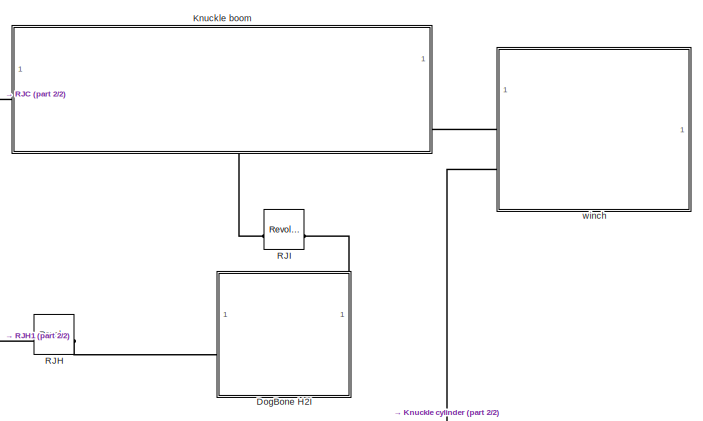
[diagram: root canvas - part 1/2, top right region]
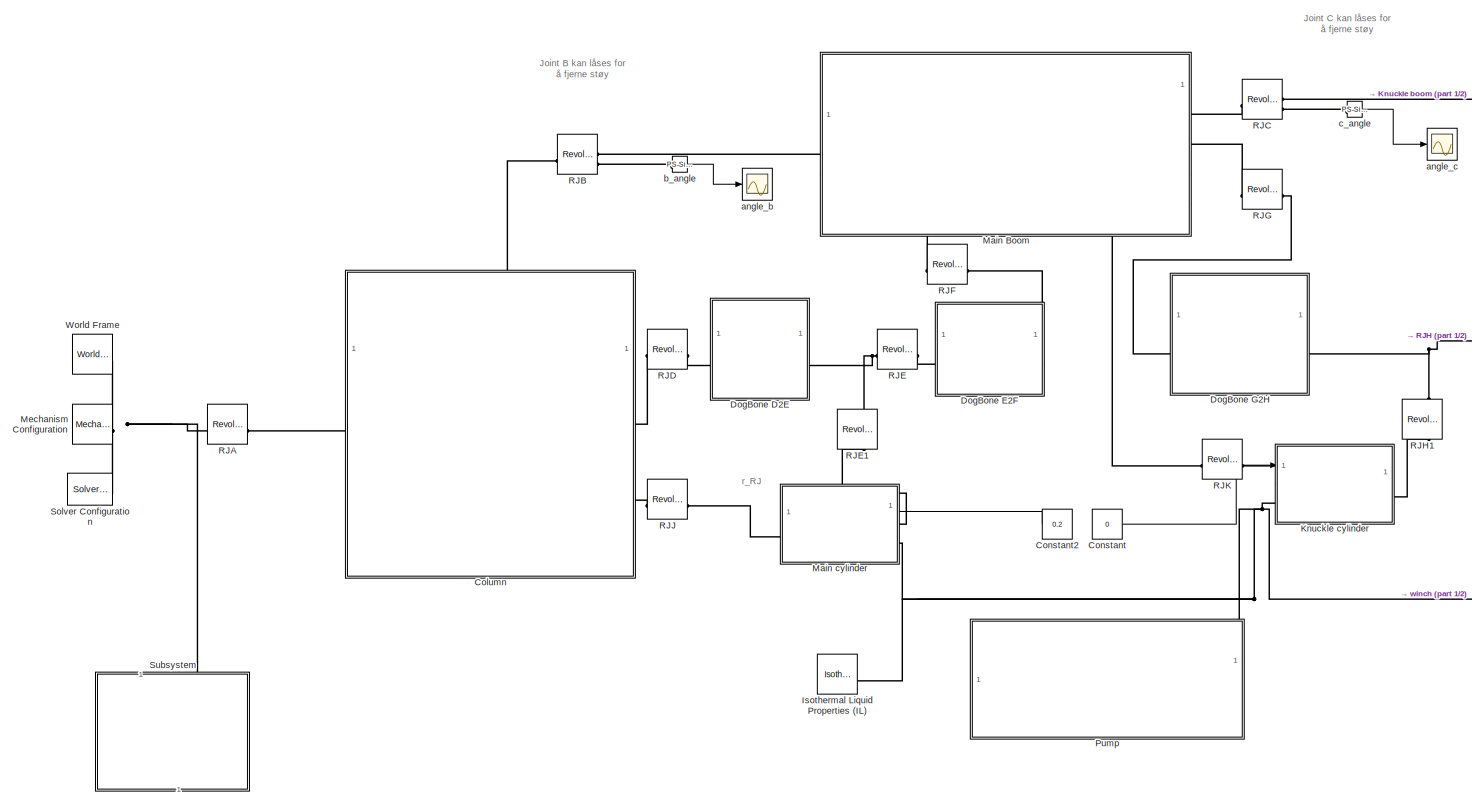
[diagram: root canvas - part 2/2, center side, full height]
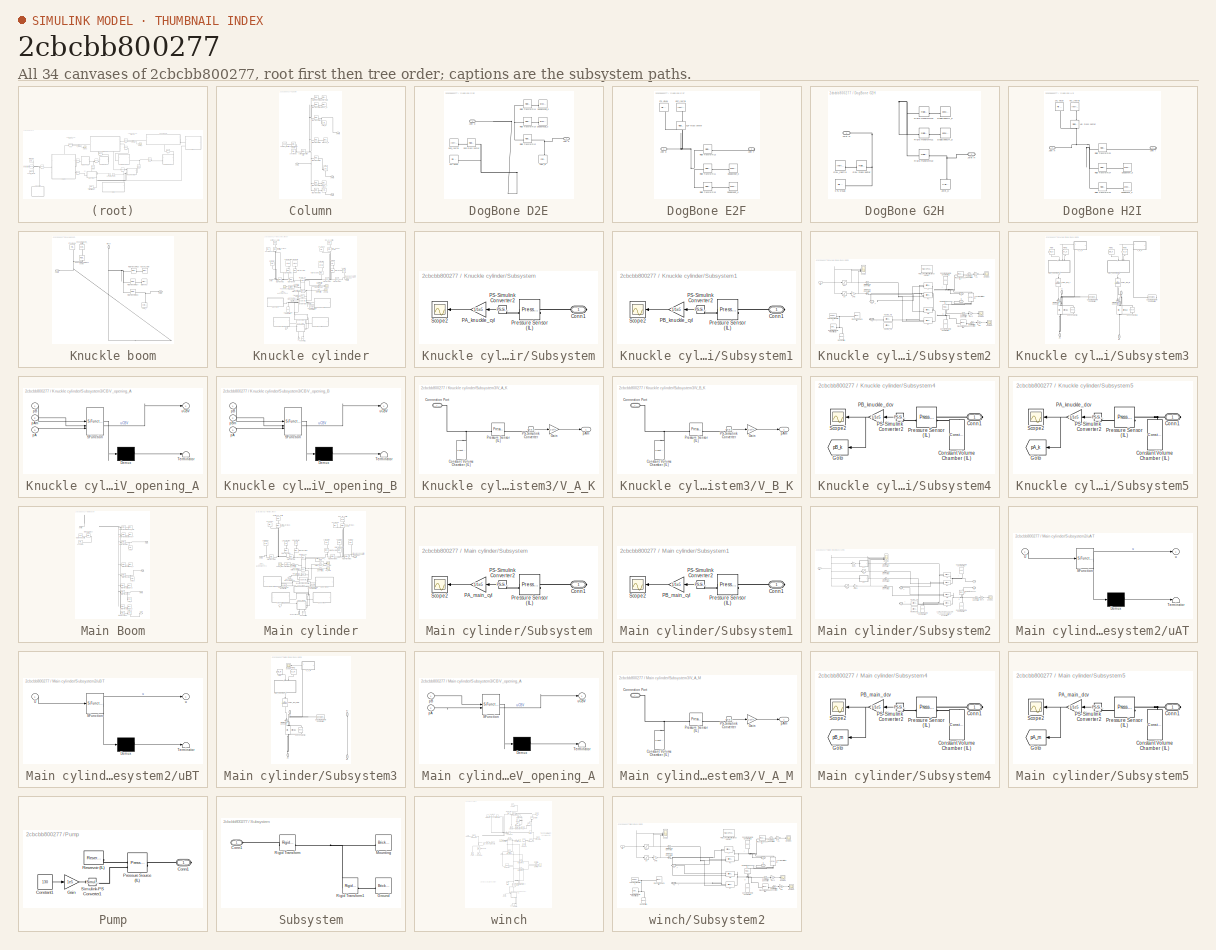
[diagram: thumbnail index - all 34 canvases of the model, root first then tree order]
MODEL slx_2cbcbb800277
KIND model
CONFIG AbsTol = auto
CONFIG EnableMultiTasking = off
CONFIG FixedStep = auto
CONFIG MaxStep = auto
CONFIG MinStep = auto
CONFIG RelTol = 1e-4
CONFIG SampleTimeConstraint = Unconstrained
CONFIG SolverName = VariableStepAuto
CONFIG StartTime = 0.0
CONFIG StopTime = 1
WORKSPACE source: MATLAB code (in-file)
WORKSPACE L_M = 1
WORKSPACE W_M = 1
WORKSPACE H_M = 1
WORKSPACE eta_M = 0
WORKSPACE zeta_M = -0.5
WORKSPACE beta_M = 0
WORKSPACE L_ground = 6
WORKSPACE W_ground = 4
WORKSPACE H_ground = 0.01
WORKSPACE eta_ground = 1.5
WORKSPACE zeta_ground = -0.5
WORKSPACE beta_ground = 0
WORKSPACE w0 = 0.07
WORKSPACE w1 = w0/4  (= 0.0175)
WORKSPACE l_RJ = 0.277
WORKSPACE r_RJ = 0.030  (= 0.03)
WORKSPACE L_Column = 1.5655
WORKSPACE eta_B = -0.25
WORKSPACE zeta_B = L_Column  (= 1.5655)
WORKSPACE eta_D = -0.365
WORKSPACE zeta_D = 1.4805
WORKSPACE eta_J = 0.200  (= 0.2)
WORKSPACE zeta_J = 0.1195
WORKSPACE l_DE = 0.490  (= 0.49)
WORKSPACE l_FE = 0.170  (= 0.17)
WORKSPACE L_Mboom = 2.400  (= 2.4)
WORKSPACE eta_C = 2.400  (= 2.4)
WORKSPACE zeta_C = 0.070  (= 0.07)
WORKSPACE eta_F = 0.340  (= 0.34)
WORKSPACE zeta_F = 0.010  (= 0.01)
WORKSPACE eta_G = 2.365
WORKSPACE zeta_G = 0.235
WORKSPACE eta_K = 0.750  (= 0.75)
WORKSPACE zeta_K = 0.045
WORKSPACE l_GH = 0.490  (= 0.49)
WORKSPACE l_IH = 0.220  (= 0.22)
WORKSPACE L_Kboom = 2.429
WORKSPACE eta_I = 0.280  (= 0.28)
WORKSPACE zeta_I = 0.005
WORKSPACE eta_TP = L_Kboom  (= 2.429)
WORKSPACE zeta_TP = 0
WORKSPACE r_W = 0.205/2  (= 0.1025)
WORKSPACE L_W = 0.191
WORKSPACE eta_W = 0.28722
WORKSPACE zeta_W = -0.29926
WORKSPACE beta_W = -0.335
WORKSPACE eta_MP = -0.0249
WORKSPACE zeta_MP = -0.17479
WORKSPACE beta_MP = 0
WORKSPACE r_P = 0.210/2  (= 0.105)
WORKSPACE eta_P = 2.140  (= 2.14)
WORKSPACE zeta_P = -0.0506
WORKSPACE beta_P = -0.0  (= 0)
WORKSPACE r_RO = 0.055/2  (= 0.0275)
WORKSPACE r_RU = 0.046/2  (= 0.023)
WORKSPACE eta_RO = 0.306
WORKSPACE zeta_RO = 0.12510  (= 0.1251)
WORKSPACE column_mass = 239.4
WORKSPACE column_COM = [-0.1007, 0.0001, 0.4351]
WORKSPACE MainBoom_mass = 216.5
WORKSPACE MainBoom_COM = [1.134, 0.1674, -0.0018]
WORKSPACE KnuckleBoom_mass = 842.2
WORKSPACE KnuckleBoom_COM = [0.9806, 0.1814, -0.2939]
WORKSPACE E2F_mass = 7.076*2  (= 14.152)
WORKSPACE E2F_COM = [0.0817, 0, 0]
WORKSPACE D2E_mass = 6.426*2  (= 12.852)
WORKSPACE D2E_COM = [0.245, 0, 0]
WORKSPACE G2H_mass = 6.426*2  (= 12.852)
WORKSPACE G2H_COM = [0.245, 0, 0]
WORKSPACE H2I_mass = 22.05
WORKSPACE H2I_COM = [0.1206, 0, 0]
WORKSPACE MC_bottom_mass = 57.9561
WORKSPACE MC_bottom_COM = [0.0081, -0.001, 0.4125]
WORKSPACE MC_rod_mass = 43.93
WORKSPACE MC_rod_COM = [0, 0, -0.4290]
WORKSPACE KC_bottom_mass = 55.7738
WORKSPACE KC_bottom_COM = [0.0038, 0.0022, 0.4468]
WORKSPACE KC_rod_mass = 45.8854
WORKSPACE KC_rod_COM = [0, 0, -0.4694]
WORKSPACE Winch_mass = 54
WORKSPACE Winch_COM = [0, 0, 0]
WORKSPACE column_MOI = [109, 114, 9.009]
WORKSPACE column_POI = [0.0319, -21.59, -0.0113]
WORKSPACE MainBoom_MOI = [6.5, 160.3, 160]
WORKSPACE MainBoom_POI = [0.0666, 0.1093, 8.016]
WORKSPACE KnuckleBoom_MOI = [31.75, 566.3, 573.1]
WORKSPACE KnuckleBoom_POI = [-0.0237, -11.42, 9.588]
WORKSPACE E2F_MOI = [0.0111, 0.0546, 0.0587]
WORKSPACE E2F_POI = [0, -0.0089, 0]
WORKSPACE D2E_MOI = [0.0069, 0.2419, 0.2485]
WORKSPACE D2E_POI = [0, 0, 0]
WORKSPACE G2H_MOI = [0.0069, 0.2419, 0.2485]
WORKSPACE G2H_POI = [0, 0, 0]
WORKSPACE H2I_MOI = [0.2636, 0.4184, 0.1901]
WORKSPACE H2I_POI = [0, 0, 0]
WORKSPACE MC_bottom_MOI = [7.2059, 7.2304, 0.3979]
WORKSPACE MC_bottom_POI = [-0.0126, -0.1802, 0.0002]
WORKSPACE MC_rod_MOI = [6.0014, 5.9633, 0.1401]
WORKSPACE MC_rod_POI = [0, -0.0001, 0]
WORKSPACE KC_bottom_MOI = [8.3780, 8.3476, 0.3607]
WORKSPACE KC_bottom_POI = [-0.0119, -0.1037, 0.0033]
WORKSPACE KC_rod_MOI = [7.4245, 7.3864, 0.1401]
WORKSPACE KC_rod_POI = [0, -0.0001, 0]
WORKSPACE I_W_xx = (1/4)*Winch_mass*r_W^2 + (1/12)*Winch_mass*L_W^2  (= 0.305998875)
WORKSPACE I_W_yy = (1/4)*Winch_mass*r_W^2 + (1/12)*Winch_mass*L_W^2  (= 0.305998875)
WORKSPACE I_W_zz = (1/2)*Winch_mass*r_W^2  (= 0.28366875)
WORKSPACE Winch_MOI = [I_W_xx, I_W_yy, I_W_zz]
WORKSPACE Winch_POI = [0, 0, 0]
WORKSPACE D_piston_mc = 160
WORKSPACE L_piston_mc = 65
WORKSPACE D_rod_mc = 100
WORKSPACE L_rod_mc = 978
WORKSPACE A_piston_mc = pi/4*D_piston_mc^2  (= 20106.192983)
WORKSPACE A_rod_mc = pi/4*D_rod_mc^2  (= 7853.98163397)
WORKSPACE A_rodside_mc = A_piston_mc-A_rod_mc  (= 12252.211349)
WORKSPACE L_barrel_mc = 945-L_piston_mc  (= 880)
WORKSPACE stroke_mc = 0.75
WORKSPACE initial_pos_main = 0.3
WORKSPACE initial_Pa_main = 17
WORKSPACE D_piston_kc = 150
WORKSPACE L_piston_kc = 65
WORKSPACE D_rod_kc = 100
WORKSPACE L_rod_kc = 1089.5
WORKSPACE A_piston_kc = pi/4*D_piston_kc^2  (= 17671.4586764)
WORKSPACE A_rod_kc = pi/4*D_rod_kc^2  (= 7853.98163397)
WORKSPACE A_rodside_kc = A_piston_kc-A_rod_kc  (= 9817.47704247)
WORKSPACE L_barrel_kc = 1050-L_piston_kc  (= 985)
WORKSPACE stroke_kc = 0.85
WORKSPACE initial_pos_knuckle = 0.4
WORKSPACE initial_Pa_knuckle = 1
WORKSPACE initial_Pb_knuckle = 67
WORKSPACE poly_b = [1.762740809095876e+02,-44.442169999547330]
WORKSPACE poly_c = [1.901177983521692e+02,-1.484122102902541e+02]
WORKSPACE angle_b = poly_b(1)*initial_pos_main + poly_b(2)
WORKSPACE angle_c = poly_c(1)*initial_pos_knuckle + poly_c(2)
WORKSPACE angle_w = -90 - angle_c - angle_b
WORKSPACE DM = 200
WORKSPACE GR = 5.04
WORKSPACE pCr_main = 25
WORKSPACE dpopen_main = 300
WORKSPACE alpha = 4.25
WORKSPACE pCr_ka = 211
WORKSPACE dpopen_ka = 300
WORKSPACE pCr_kb = 211
WORKSPACE dpopen_kb = 300
WORKSPACE Cd = 0.64
WORKSPACE Q_rat = 30/6e4  (= 0.0005)
WORKSPACE dp_2 = 6e5  (= 600000)
WORKSPACE dp_1 = 1e5  (= 100000)
WORKSPACE roh = 850
WORKSPACE dead_up_m = 0.175
WORKSPACE dead_down_m = 0.155
WORKSPACE dead_up_k = 0.18
WORKSPACE dead_down_k = 0.205
WORKSPACE Ad2 = Q_rat/(Cd*sqrt(2/roh*dp_2))*1e6
WORKSPACE Ad1_1 = Q_rat/(Cd*sqrt(2/roh*dp_1))*1e6
WORKSPACE Ad1_0 = Q_rat/(Cd*sqrt(2/roh*dp_1))*1e6*0
WORKSPACE Ad1_mup = Q_rat/(Cd*sqrt(2/roh*dp_1))*1e6*dead_up_m
WORKSPACE Ad1_mdown = Q_rat/(Cd*sqrt(2/roh*dp_1))*1e6*dead_down_m
WORKSPACE Ad1_kup = Q_rat/(Cd*sqrt(2/roh*dp_1))*1e6*dead_up_k
WORKSPACE Ad1_kdown = Q_rat/(Cd*sqrt(2/roh*dp_1))*1e6*dead_down_k
BLOCK [SubSystem] Column
  PortSchema = {"entries":[{"content":{"sides":[{"content":{"connectorIds":["LConn1"]},"type":"ConnectorPlacement.EquallySpacedRectSide","uuid":"4f8a2405-7ad3-45cd-9c5f-110e459b66bb"},{"content":{"connectorIds":["RConn1","RConn2"],"side":"RIGHT"},"type":"ConnectorPlacement.EquallySpacedRectSide","uuid":"efc40b53-b729-4d4b-a6f3-9d4ffae00593"},{"content":{"connectorIds":["LConn2"],"side":"TOP"},"type":"ConnectorPl...<+388ch>
BLOCK [Reference] Column/Branch_B  REF=sm_lib/Body Elements/Brick Solid
  SourceBlock = sm_lib/Body Elements/Brick Solid
  SourceType = Brick Solid
BLOCK [Reference] Column/Branch_D  REF=sm_lib/Body Elements/Brick Solid
  SourceBlock = sm_lib/Body Elements/Brick Solid
  SourceType = Brick Solid
BLOCK [Reference] Column/Branch_J  REF=sm_lib/Body Elements/Brick Solid
  SourceBlock = sm_lib/Body Elements/Brick Solid
  SourceType = Brick Solid
BLOCK [Reference] Column/Column mass senter  REF=sm_lib/Frames and
Transforms/Rigid
Transform
  NameLocation = top
  SourceBlock = sm_lib/Frames and\nTransforms/Rigid\nTransform
  SourceType = Rigid\nTransform
BLOCK [Reference] Column/Column_Inertia  REF=sm_lib/Body Elements/Inertia
  SourceBlock = sm_lib/Body Elements/Inertia
  SourceType = Inertia
BLOCK [Reference] Column/Column_Main  REF=sm_lib/Body Elements/Brick Solid
  SourceBlock = sm_lib/Body Elements/Brick Solid
  SourceType = Brick Solid
BLOCK [PMIOPort] Column/Joint A
  Side = Left
BLOCK [PMIOPort] Column/Joint B
  Port = 2
  Side = Left
BLOCK [PMIOPort] Column/Joint D
  Port = 3
  Side = Right
BLOCK [PMIOPort] Column/Joint J
  Port = 4
  Side = Right
BLOCK [Reference] Column/Joint_B  REF=sm_lib/Body Elements/Cylindrical Solid
  SourceBlock = sm_lib/Body Elements/Cylindrical Solid
  SourceType = Cylindrical Solid
BLOCK [Reference] Column/Joint_D  REF=sm_lib/Body Elements/Cylindrical Solid
  SourceBlock = sm_lib/Body Elements/Cylindrical Solid
  SourceType = Cylindrical Solid
BLOCK [Reference] Column/Joint_J  REF=sm_lib/Body Elements/Cylindrical Solid
  SourceBlock = sm_lib/Body Elements/Cylindrical Solid
  SourceType = Cylindrical Solid
BLOCK [Reference] Column/Rigid Transform  REF=sm_lib/Frames and
Transforms/Rigid
Transform
  SourceBlock = sm_lib/Frames and\nTransforms/Rigid\nTransform
  SourceType = Rigid\nTransform
BLOCK [Reference] Column/Rigid Transform1  REF=sm_lib/Frames and
Transforms/Rigid
Transform
  SourceBlock = sm_lib/Frames and\nTransforms/Rigid\nTransform
  SourceType = Rigid\nTransform
BLOCK [Reference] Column/Rigid Transform2  REF=sm_lib/Frames and
Transforms/Rigid
Transform
  SourceBlock = sm_lib/Frames and\nTransforms/Rigid\nTransform
  SourceType = Rigid\nTransform
BLOCK [Reference] Column/Rigid Transform3  REF=sm_lib/Frames and
Transforms/Rigid
Transform
  SourceBlock = sm_lib/Frames and\nTransforms/Rigid\nTransform
  SourceType = Rigid\nTransform
BLOCK [Reference] Column/Rigid Transform4  REF=sm_lib/Frames and
Transforms/Rigid
Transform
  SourceBlock = sm_lib/Frames and\nTransforms/Rigid\nTransform
  SourceType = Rigid\nTransform
BLOCK [Reference] Column/Rigid Transform5  REF=sm_lib/Frames and
Transforms/Rigid
Transform
  SourceBlock = sm_lib/Frames and\nTransforms/Rigid\nTransform
  SourceType = Rigid\nTransform
BLOCK [Reference] Column/Rigid Transform6  REF=sm_lib/Frames and
Transforms/Rigid
Transform
  SourceBlock = sm_lib/Frames and\nTransforms/Rigid\nTransform
  SourceType = Rigid\nTransform
BLOCK [Reference] Column/STL visual  REF=sm_lib/Body Elements/File Solid
  Commented = on
  SourceBlock = sm_lib/Body Elements/File Solid
  SourceType = File Solid
BLOCK [Reference] Column/solidworks origin error  REF=sm_lib/Frames and
Transforms/Rigid
Transform
  SourceBlock = sm_lib/Frames and\nTransforms/Rigid\nTransform
  SourceType = Rigid\nTransform
BLOCK [Constant] Constant
  Value = 0
BLOCK [Constant] Constant2
  NameLocation = top
  Value = 0.2
BLOCK [SubSystem] DogBone D2E
BLOCK [Reference] DogBone D2E/D2E mass senter  REF=sm_lib/Frames and
Transforms/Rigid
Transform
  NameLocation = top
  SourceBlock = sm_lib/Frames and\nTransforms/Rigid\nTransform
  SourceType = Rigid\nTransform
BLOCK [Reference] DogBone D2E/D2E_Inertia  REF=sm_lib/Body Elements/Inertia
  SourceBlock = sm_lib/Body Elements/Inertia
  SourceType = Inertia
BLOCK [Reference] DogBone D2E/DogBoneDE_a  REF=sm_lib/Body Elements/Brick Solid
  SourceBlock = sm_lib/Body Elements/Brick Solid
  SourceType = Brick Solid
BLOCK [Reference] DogBone D2E/DogBoneDE_b  REF=sm_lib/Body Elements/Brick Solid
  SourceBlock = sm_lib/Body Elements/Brick Solid
  SourceType = Brick Solid
BLOCK [PMIOPort] DogBone D2E/Joint D
  Side = Left
BLOCK [PMIOPort] DogBone D2E/Joint E
  Port = 2
  Side = Right
BLOCK [Reference] DogBone D2E/Joint_E  REF=sm_lib/Body Elements/Cylindrical Solid
  NameLocation = left
  SourceBlock = sm_lib/Body Elements/Cylindrical Solid
  SourceType = Cylindrical Solid
BLOCK [Reference] DogBone D2E/Rigid Transform10  REF=sm_lib/Frames and
Transforms/Rigid
Transform
  SourceBlock = sm_lib/Frames and\nTransforms/Rigid\nTransform
  SourceType = Rigid\nTransform
BLOCK [Reference] DogBone D2E/Rigid Transform12  REF=sm_lib/Frames and
Transforms/Rigid
Transform
  SourceBlock = sm_lib/Frames and\nTransforms/Rigid\nTransform
  SourceType = Rigid\nTransform
BLOCK [Reference] DogBone D2E/Rigid Transform14  REF=sm_lib/Frames and
Transforms/Rigid
Transform
  SourceBlock = sm_lib/Frames and\nTransforms/Rigid\nTransform
  SourceType = Rigid\nTransform
BLOCK [Reference] DogBone D2E/STL visual  REF=sm_lib/Body Elements/File Solid
  Commented = on
  SourceBlock = sm_lib/Body Elements/File Solid
  SourceType = File Solid
BLOCK [SubSystem] DogBone E2F
BLOCK [Reference] DogBone E2F/DogBoneEF_a  REF=sm_lib/Body Elements/Brick Solid
  SourceBlock = sm_lib/Body Elements/Brick Solid
  SourceType = Brick Solid
BLOCK [Reference] DogBone E2F/DogBoneEF_b  REF=sm_lib/Body Elements/Brick Solid
  SourceBlock = sm_lib/Body Elements/Brick Solid
  SourceType = Brick Solid
BLOCK [Reference] DogBone E2F/E2F mass senter  REF=sm_lib/Frames and
Transforms/Rigid
Transform
  NameLocation = right
  SourceBlock = sm_lib/Frames and\nTransforms/Rigid\nTransform
  SourceType = Rigid\nTransform
BLOCK [Reference] DogBone E2F/E2F_Inertia  REF=sm_lib/Body Elements/Inertia
  NameLocation = left
  SourceBlock = sm_lib/Body Elements/Inertia
  SourceType = Inertia
BLOCK [PMIOPort] DogBone E2F/Joint E
  Side = Left
BLOCK [PMIOPort] DogBone E2F/Joint F
  Port = 2
  Side = Right
BLOCK [Reference] DogBone E2F/Rigid Transform11  REF=sm_lib/Frames and
Transforms/Rigid
Transform
  SourceBlock = sm_lib/Frames and\nTransforms/Rigid\nTransform
  SourceType = Rigid\nTransform
BLOCK [Reference] DogBone E2F/Rigid Transform13  REF=sm_lib/Frames and
Transforms/Rigid
Transform
  SourceBlock = sm_lib/Frames and\nTransforms/Rigid\nTransform
  SourceType = Rigid\nTransform
BLOCK [Reference] DogBone E2F/Rigid Transform15  REF=sm_lib/Frames and
Transforms/Rigid
Transform
  SourceBlock = sm_lib/Frames and\nTransforms/Rigid\nTransform
  SourceType = Rigid\nTransform
BLOCK [Reference] DogBone E2F/STL visual  REF=sm_lib/Body Elements/File Solid
  Commented = on
  NameLocation = left
  SourceBlock = sm_lib/Body Elements/File Solid
  SourceType = File Solid
BLOCK [SubSystem] DogBone G2H
BLOCK [Reference] DogBone G2H/DogBoneGH_a  REF=sm_lib/Body Elements/Brick Solid
  SourceBlock = sm_lib/Body Elements/Brick Solid
  SourceType = Brick Solid
BLOCK [Reference] DogBone G2H/DogBoneGH_b  REF=sm_lib/Body Elements/Brick Solid
  SourceBlock = sm_lib/Body Elements/Brick Solid
  SourceType = Brick Solid
BLOCK [Reference] DogBone G2H/G2H mass senter  REF=sm_lib/Frames and
Transforms/Rigid
Transform
  NameLocation = top
  SourceBlock = sm_lib/Frames and\nTransforms/Rigid\nTransform
  SourceType = Rigid\nTransform
BLOCK [Reference] DogBone G2H/G2H_Inertia  REF=sm_lib/Body Elements/Inertia
  SourceBlock = sm_lib/Body Elements/Inertia
  SourceType = Inertia
BLOCK [PMIOPort] DogBone G2H/Joint G
  Side = Left
BLOCK [PMIOPort] DogBone G2H/Joint H
  Port = 2
  Side = Right
BLOCK [Reference] DogBone G2H/Joint_H  REF=sm_lib/Body Elements/Cylindrical Solid
  NameLocation = left
  SourceBlock = sm_lib/Body Elements/Cylindrical Solid
  SourceType = Cylindrical Solid
BLOCK [Reference] DogBone G2H/Rigid Transform21  REF=sm_lib/Frames and
Transforms/Rigid
Transform
  SourceBlock = sm_lib/Frames and\nTransforms/Rigid\nTransform
  SourceType = Rigid\nTransform
BLOCK [Reference] DogBone G2H/Rigid Transform22  REF=sm_lib/Frames and
Transforms/Rigid
Transform
  SourceBlock = sm_lib/Frames and\nTransforms/Rigid\nTransform
  SourceType = Rigid\nTransform
BLOCK [Reference] DogBone G2H/Rigid Transform23  REF=sm_lib/Frames and
Transforms/Rigid
Transform
  SourceBlock = sm_lib/Frames and\nTransforms/Rigid\nTransform
  SourceType = Rigid\nTransform
BLOCK [Reference] DogBone G2H/STL visual  REF=sm_lib/Body Elements/File Solid
  Commented = on
  SourceBlock = sm_lib/Body Elements/File Solid
  SourceType = File Solid
BLOCK [SubSystem] DogBone H2I
BLOCK [Reference] DogBone H2I/DogBoneHI_a  REF=sm_lib/Body Elements/Brick Solid
  SourceBlock = sm_lib/Body Elements/Brick Solid
  SourceType = Brick Solid
BLOCK [Reference] DogBone H2I/DogBoneHI_b  REF=sm_lib/Body Elements/Brick Solid
  SourceBlock = sm_lib/Body Elements/Brick Solid
  SourceType = Brick Solid
BLOCK [Reference] DogBone H2I/H2I mass senter  REF=sm_lib/Frames and
Transforms/Rigid
Transform
  NameLocation = right
  SourceBlock = sm_lib/Frames and\nTransforms/Rigid\nTransform
  SourceType = Rigid\nTransform
BLOCK [Reference] DogBone H2I/H2I_Inertia  REF=sm_lib/Body Elements/Inertia
  NameLocation = left
  SourceBlock = sm_lib/Body Elements/Inertia
  SourceType = Inertia
BLOCK [PMIOPort] DogBone H2I/Joint H
  Port = 2
  Side = Left
BLOCK [PMIOPort] DogBone H2I/Joint I
  NameLocation = top
  Side = Right
BLOCK [Reference] DogBone H2I/Rigid Transform24  REF=sm_lib/Frames and
Transforms/Rigid
Transform
  SourceBlock = sm_lib/Frames and\nTransforms/Rigid\nTransform
  SourceType = Rigid\nTransform
BLOCK [Reference] DogBone H2I/Rigid Transform25  REF=sm_lib/Frames and
Transforms/Rigid
Transform
  SourceBlock = sm_lib/Frames and\nTransforms/Rigid\nTransform
  SourceType = Rigid\nTransform
BLOCK [Reference] DogBone H2I/Rigid Transform26  REF=sm_lib/Frames and
Transforms/Rigid
Transform
  SourceBlock = sm_lib/Frames and\nTransforms/Rigid\nTransform
  SourceType = Rigid\nTransform
BLOCK [Reference] DogBone H2I/STL visual  REF=sm_lib/Body Elements/File Solid
  Commented = on
  NameLocation = left
  SourceBlock = sm_lib/Body Elements/File Solid
  SourceType = File Solid
BLOCK [Reference] Isothermal Liquid Properties (IL)  REF=fl_lib/Isothermal Liquid/Utilities/Isothermal Liquid
Properties (IL)
  SourceBlock = fl_lib/Isothermal Liquid/Utilities/Isothermal Liquid\nProperties (IL)
  SourceType = Isothermal Liquid\nProperties (IL)
BLOCK [SubSystem] Knuckle boom
  NameLocation = top
  PortSchema = {"entries":[{"content":{"sides":[{"content":{"connectorIds":["LConn1"]},"type":"ConnectorPlacement.EquallySpacedRectSide","uuid":"c36d9ca3-ad51-4f96-8141-4d2b7b7ebabd"},{"content":{"connectorIds":["RConn1"],"side":"RIGHT"},"type":"ConnectorPlacement.EquallySpacedRectSide","uuid":"da49a145-47b7-4810-8cc5-9c2fc29ab234"},{"content":{"side":"TOP"},"type":"ConnectorPlacement.EquallySpacedRectSide","uui...<+379ch>
BLOCK [Reference] Knuckle boom/Branch_I  REF=sm_lib/Body Elements/Brick Solid
  SourceBlock = sm_lib/Body Elements/Brick Solid
  SourceType = Brick Solid
BLOCK [PMIOPort] Knuckle boom/Joint C
  Side = Left
BLOCK [PMIOPort] Knuckle boom/Joint I
  Port = 3
  Side = Right
BLOCK [Reference] Knuckle boom/Joint_I  REF=sm_lib/Body Elements/Cylindrical Solid
  NameLocation = left
  SourceBlock = sm_lib/Body Elements/Cylindrical Solid
  SourceType = Cylindrical Solid
BLOCK [Reference] Knuckle boom/KBoom_Main  REF=sm_lib/Body Elements/Brick Solid
  SourceBlock = sm_lib/Body Elements/Brick Solid
  SourceType = Brick Solid
BLOCK [Reference] Knuckle boom/KnuckleBoom mass senter  REF=sm_lib/Frames and
Transforms/Rigid
Transform
  NameLocation = right
  SourceBlock = sm_lib/Frames and\nTransforms/Rigid\nTransform
  SourceType = Rigid\nTransform
BLOCK [Reference] Knuckle boom/KnuckleBoom_Inertia  REF=sm_lib/Body Elements/Inertia
  NameLocation = left
  SourceBlock = sm_lib/Body Elements/Inertia
  SourceType = Inertia
BLOCK [Reference] Knuckle boom/Rigid Transform20  REF=sm_lib/Frames and
Transforms/Rigid
Transform
  SourceBlock = sm_lib/Frames and\nTransforms/Rigid\nTransform
  SourceType = Rigid\nTransform
BLOCK [Reference] Knuckle boom/Rigid Transform27  REF=sm_lib/Frames and
Transforms/Rigid
Transform
  SourceBlock = sm_lib/Frames and\nTransforms/Rigid\nTransform
  SourceType = Rigid\nTransform
BLOCK [Reference] Knuckle boom/Rigid Transform28  REF=sm_lib/Frames and
Transforms/Rigid
Transform
  SourceBlock = sm_lib/Frames and\nTransforms/Rigid\nTransform
  SourceType = Rigid\nTransform
BLOCK [Reference] Knuckle boom/STL visual  REF=sm_lib/Body Elements/File Solid
  Commented = on
  NameLocation = left
  SourceBlock = sm_lib/Body Elements/File Solid
  SourceType = File Solid
BLOCK [PMIOPort] Knuckle boom/winch
  NameLocation = left
  Port = 2
  Side = Right
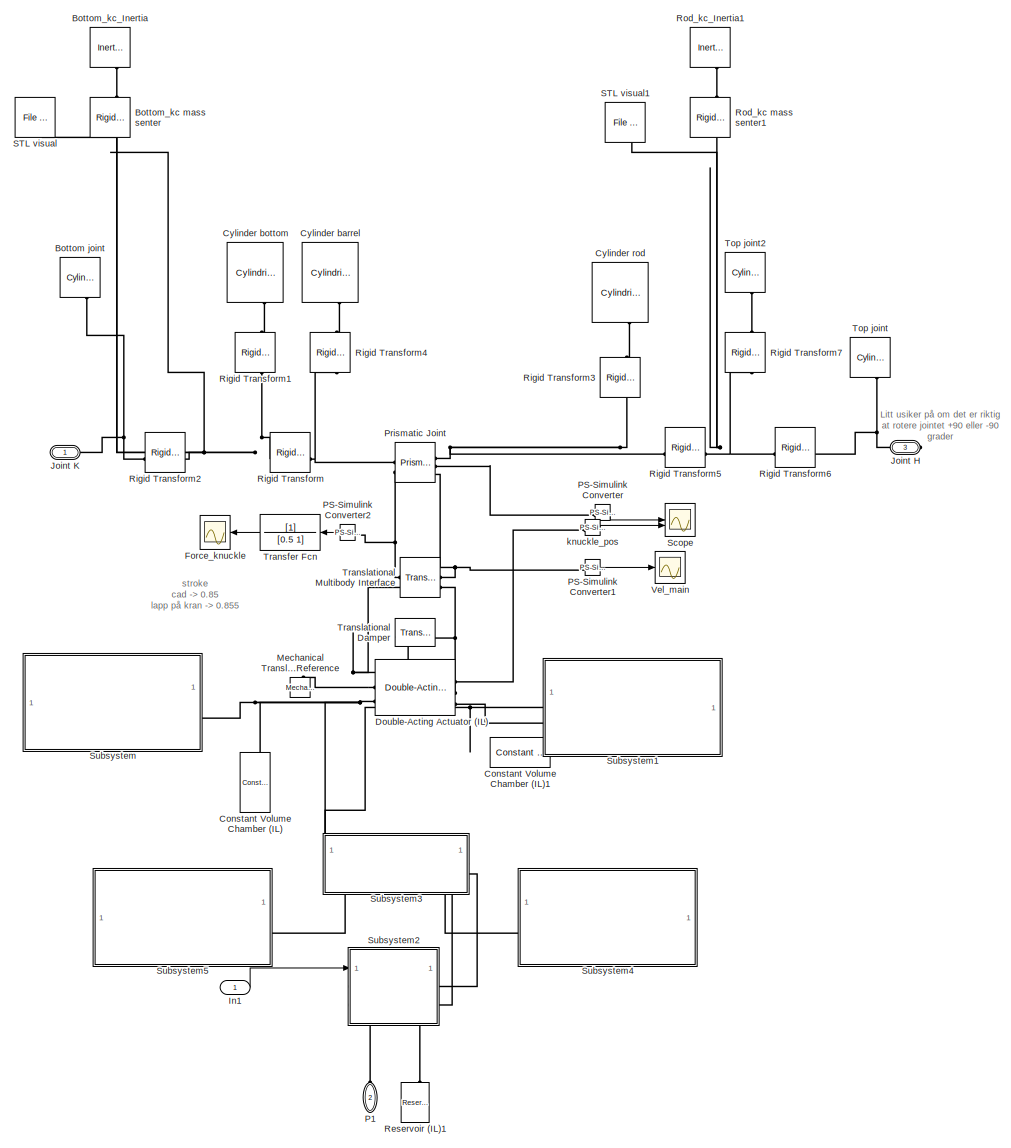
[diagram: Knuckle cylinder - part 1/1, most of the canvas]
BLOCK [SubSystem] Knuckle cylinder
  PortSchema = {"entries":[{"content":{"sides":[{"content":{"connectorIds":["LConn1","In1","LConn2"]},"type":"ConnectorPlacement.EquallySpacedRectSide","uuid":"6c9823d7-dfca-4cc6-95dd-d3430dceceb5"},{"content":{"connectorIds":["RConn1"],"side":"RIGHT"},"type":"ConnectorPlacement.EquallySpacedRectSide","uuid":"8a754231-7f74-4c2d-9ad4-ff077cf404cd"},{"content":{"side":"TOP"},"type":"ConnectorPlacement.EquallySpace...<+242ch>
BLOCK [Reference] Knuckle cylinder/Bottom joint  REF=sm_lib/Body Elements/Cylindrical Solid
  NameLocation = top
  SourceBlock = sm_lib/Body Elements/Cylindrical Solid
  SourceType = Cylindrical Solid
BLOCK [Reference] Knuckle cylinder/Bottom_kc mass senter  REF=sm_lib/Frames and
Transforms/Rigid
Transform
  NameLocation = right
  SourceBlock = sm_lib/Frames and\nTransforms/Rigid\nTransform
  SourceType = Rigid\nTransform
BLOCK [Reference] Knuckle cylinder/Bottom_kc_Inertia  REF=sm_lib/Body Elements/Inertia
  NameLocation = left
  SourceBlock = sm_lib/Body Elements/Inertia
  SourceType = Inertia
BLOCK [Reference] Knuckle cylinder/Constant Volume Chamber (IL)  REF=fl_lib/Isothermal Liquid/Elements/Constant Volume
Chamber (IL)
  NameLocation = right
  SourceBlock = fl_lib/Isothermal Liquid/Elements/Constant Volume\nChamber (IL)
  SourceType = Constant Volume\nChamber (IL)
BLOCK [Reference] Knuckle cylinder/Constant Volume Chamber (IL)1  REF=fl_lib/Isothermal Liquid/Elements/Constant Volume
Chamber (IL)
  NameLocation = top
  SourceBlock = fl_lib/Isothermal Liquid/Elements/Constant Volume\nChamber (IL)
  SourceType = Constant Volume\nChamber (IL)
BLOCK [Reference] Knuckle cylinder/Cylinder barrel  REF=sm_lib/Body Elements/Cylindrical Solid
  NameLocation = top
  SourceBlock = sm_lib/Body Elements/Cylindrical Solid
  SourceType = Cylindrical Solid
BLOCK [Reference] Knuckle cylinder/Cylinder bottom  REF=sm_lib/Body Elements/Cylindrical Solid
  NameLocation = top
  SourceBlock = sm_lib/Body Elements/Cylindrical Solid
  SourceType = Cylindrical Solid
BLOCK [Reference] Knuckle cylinder/Cylinder rod  REF=sm_lib/Body Elements/Cylindrical Solid
  NameLocation = top
  SourceBlock = sm_lib/Body Elements/Cylindrical Solid
  SourceType = Cylindrical Solid
BLOCK [Reference] Knuckle cylinder/Double-Acting Actuator (IL)  REF=SimscapeFluids_lib/Isothermal Liquid/Actuators/Double-Acting
Actuator (IL)
  SourceBlock = SimscapeFluids_lib/Isothermal Liquid/Actuators/Double-Acting\nActuator (IL)
  SourceType = Double-Acting\nActuator (IL)
BLOCK [Scope] Knuckle cylinder/Force_knuckle
  Floating = off
  NameLocation = top
  NumInputPorts = 1
  ScopeSpecificationString = Simulink.scopes.TimeScopeBlockCfg('CurrentConfiguration', extmgr.ConfigurationSet(extmgr.Configuration('Core','General UI',true),extmgr.Configuration('Core','Source UI',true),extmgr.Configuration('Sources','WiredSimulink',true,'DataLoggingVariableName','ScopeData2'),extmgr.Configuration('Visuals','Time Domain',true,'SerializedDisplays',{struct('MinYLimReal','-4126.72044','MaxYLimReal','167254.0017...<+1850ch>
BLOCK [Inport] Knuckle cylinder/In1
BLOCK [PMIOPort] Knuckle cylinder/Joint H
  Port = 3
  Side = Right
BLOCK [PMIOPort] Knuckle cylinder/Joint K
  Side = Left
BLOCK [Reference] Knuckle cylinder/Mechanical Translational Reference  REF=fl_lib/Mechanical/Translational
Elements/Mechanical
Translational
Reference
  NameLocation = right
  SourceBlock = fl_lib/Mechanical/Translational\nElements/Mechanical\nTranslational\nReference
  SourceType = Mechanical\nTranslational\nReference
BLOCK [PMIOPort] Knuckle cylinder/P1
  NameLocation = right
  Port = 2
  Side = Left
BLOCK [Reference] Knuckle cylinder/PS-Simulink Converter  REF=nesl_utility/PS-Simulink
Converter
  SourceBlock = nesl_utility/PS-Simulink\nConverter
  SourceType = PS-Simulink\nConverter
BLOCK [Reference] Knuckle cylinder/PS-Simulink Converter1  REF=nesl_utility/PS-Simulink
Converter
  SourceBlock = nesl_utility/PS-Simulink\nConverter
  SourceType = PS-Simulink\nConverter
BLOCK [Reference] Knuckle cylinder/PS-Simulink Converter2  REF=nesl_utility/PS-Simulink
Converter
  NameLocation = top
  SourceBlock = nesl_utility/PS-Simulink\nConverter
  SourceType = PS-Simulink\nConverter
BLOCK [Reference] Knuckle cylinder/Prismatic Joint  REF=sm_lib/Joints/Prismatic
Joint
  SourceBlock = sm_lib/Joints/Prismatic\nJoint
  SourceType = Prismatic\nJoint
BLOCK [Reference] Knuckle cylinder/Reservoir (IL)1  REF=fl_lib/Isothermal Liquid/Elements/Reservoir (IL)
  NameLocation = right
  SourceBlock = fl_lib/Isothermal Liquid/Elements/Reservoir (IL)
  SourceType = Reservoir (IL)
BLOCK [Reference] Knuckle cylinder/Rigid Transform  REF=sm_lib/Frames and
Transforms/Rigid
Transform
  SourceBlock = sm_lib/Frames and\nTransforms/Rigid\nTransform
  SourceType = Rigid\nTransform
BLOCK [Reference] Knuckle cylinder/Rigid Transform1  REF=sm_lib/Frames and
Transforms/Rigid
Transform
  NameLocation = right
  SourceBlock = sm_lib/Frames and\nTransforms/Rigid\nTransform
  SourceType = Rigid\nTransform
BLOCK [Reference] Knuckle cylinder/Rigid Transform2  REF=sm_lib/Frames and
Transforms/Rigid
Transform
  SourceBlock = sm_lib/Frames and\nTransforms/Rigid\nTransform
  SourceType = Rigid\nTransform
BLOCK [Reference] Knuckle cylinder/Rigid Transform3  REF=sm_lib/Frames and
Transforms/Rigid
Transform
  NameLocation = right
  SourceBlock = sm_lib/Frames and\nTransforms/Rigid\nTransform
  SourceType = Rigid\nTransform
BLOCK [Reference] Knuckle cylinder/Rigid Transform4  REF=sm_lib/Frames and
Transforms/Rigid
Transform
  NameLocation = right
  SourceBlock = sm_lib/Frames and\nTransforms/Rigid\nTransform
  SourceType = Rigid\nTransform
BLOCK [Reference] Knuckle cylinder/Rigid Transform5  REF=sm_lib/Frames and
Transforms/Rigid
Transform
  SourceBlock = sm_lib/Frames and\nTransforms/Rigid\nTransform
  SourceType = Rigid\nTransform
BLOCK [Reference] Knuckle cylinder/Rigid Transform6  REF=sm_lib/Frames and
Transforms/Rigid
Transform
  SourceBlock = sm_lib/Frames and\nTransforms/Rigid\nTransform
  SourceType = Rigid\nTransform
BLOCK [Reference] Knuckle cylinder/Rigid Transform7  REF=sm_lib/Frames and
Transforms/Rigid
Transform
  NameLocation = right
  SourceBlock = sm_lib/Frames and\nTransforms/Rigid\nTransform
  SourceType = Rigid\nTransform
BLOCK [Reference] Knuckle cylinder/Rod_kc mass senter1  REF=sm_lib/Frames and
Transforms/Rigid
Transform
  NameLocation = right
  SourceBlock = sm_lib/Frames and\nTransforms/Rigid\nTransform
  SourceType = Rigid\nTransform
BLOCK [Reference] Knuckle cylinder/Rod_kc_Inertia1  REF=sm_lib/Body Elements/Inertia
  NameLocation = left
  SourceBlock = sm_lib/Body Elements/Inertia
  SourceType = Inertia
BLOCK [Reference] Knuckle cylinder/STL visual  REF=sm_lib/Body Elements/File Solid
  Commented = on
  NameLocation = left
  SourceBlock = sm_lib/Body Elements/File Solid
  SourceType = File Solid
BLOCK [Reference] Knuckle cylinder/STL visual1  REF=sm_lib/Body Elements/File Solid
  Commented = on
  NameLocation = left
  SourceBlock = sm_lib/Body Elements/File Solid
  SourceType = File Solid
BLOCK [Scope] Knuckle cylinder/Scope
  Floating = off
  NumInputPorts = 2
  ScopeSpecificationString = Simulink.scopes.TimeScopeBlockCfg('CurrentConfiguration', extmgr.ConfigurationSet(extmgr.Configuration('Core','General UI',true),extmgr.Configuration('Core','Source UI',true),extmgr.Configuration('Sources','WiredSimulink',true,'DataLoggingVariableName','ScopeData4'),extmgr.Configuration('Visuals','Time Domain',true,'SerializedDisplays',{struct('MinYLimReal','0.18914','MaxYLimReal','0.29776','YLabe...<+1525ch>
BLOCK [SubSystem] Knuckle cylinder/Subsystem
BLOCK [PMIOPort] Knuckle cylinder/Subsystem/Conn1
  Side = Right
BLOCK [Gain] Knuckle cylinder/Subsystem/PA_knuckle_cyl
  Gain = 1/1e5
  NameLocation = top
BLOCK [Reference] Knuckle cylinder/Subsystem/PS-Simulink Converter2  REF=nesl_utility/PS-Simulink
Converter
  NameLocation = top
  SourceBlock = nesl_utility/PS-Simulink\nConverter
  SourceType = PS-Simulink\nConverter
BLOCK [Reference] Knuckle cylinder/Subsystem/Pressure Sensor (IL)  REF=fl_lib/Isothermal Liquid/Sensors/Pressure Sensor (IL)
  NameLocation = top
  SourceBlock = fl_lib/Isothermal Liquid/Sensors/Pressure Sensor (IL)
  SourceType = Pressure Sensor (IL)
BLOCK [Scope] Knuckle cylinder/Subsystem/Scope2
  Floating = off
  NameLocation = top
  NumInputPorts = 1
  ScopeSpecificationString = Simulink.scopes.TimeScopeBlockCfg('CurrentConfiguration', extmgr.ConfigurationSet(extmgr.Configuration('Core','General UI',true),extmgr.Configuration('Core','Source UI',true),extmgr.Configuration('Sources','WiredSimulink',true,'DataLoggingVariableName','ScopeData2'),extmgr.Configuration('Visuals','Time Domain',true),extmgr.Configuration('Tools','Plot Navigation',true),extmgr.Configuration('Tools',...<+40ch>  <repeated x8 — deduplicated; at blocks: Scope2>
BLOCK [SubSystem] Knuckle cylinder/Subsystem1
  NameLocation = top
BLOCK [PMIOPort] Knuckle cylinder/Subsystem1/Conn1
  Side = Right
BLOCK [Gain] Knuckle cylinder/Subsystem1/PB_knuckle_cyl
  Gain = 1/1e5
  NameLocation = top
BLOCK [Reference] Knuckle cylinder/Subsystem1/PS-Simulink Converter2  REF=nesl_utility/PS-Simulink
Converter
  NameLocation = top
  SourceBlock = nesl_utility/PS-Simulink\nConverter
  SourceType = PS-Simulink\nConverter
BLOCK [Reference] Knuckle cylinder/Subsystem1/Pressure Sensor (IL)  REF=fl_lib/Isothermal Liquid/Sensors/Pressure Sensor (IL)
  NameLocation = top
  SourceBlock = fl_lib/Isothermal Liquid/Sensors/Pressure Sensor (IL)
  SourceType = Pressure Sensor (IL)
BLOCK [Scope] Knuckle cylinder/Subsystem1/Scope2
  Floating = off
  NameLocation = top
  NumInputPorts = 1
BLOCK [SubSystem] Knuckle cylinder/Subsystem2
  PortSchema = {"entries":[{"content":{"sides":[{"content":{"connectorIds":["In1"]},"type":"ConnectorPlacement.EquallySpacedRectSide","uuid":"6993dbde-6cba-46a2-b1d5-f1047b136426"},{"content":{"side":"RIGHT"},"type":"ConnectorPlacement.EquallySpacedRectSide","uuid":"3ad9b2a3-36be-44b7-a33f-fa48c865a093"},{"content":{"connectorIds":["LConn1","LConn2"],"side":"TOP"},"type":"ConnectorPlacement.EquallySpacedRectSide...<+394ch>  <repeated x3 — deduplicated; at blocks: Subsystem2>
BLOCK [Saturate] Knuckle cylinder/Subsystem2/-1 - 0
  LowerLimit = -1
  UpperLimit = 0
BLOCK [Reference] Knuckle cylinder/Subsystem2/4-Way 3-Position Directional Valve (IL)  REF=SimscapeFluids_lib/Isothermal Liquid/Valves & Orifices/Directional Control
Valves/4-Way 3-Position
Directional Valve
(IL)
  Commented = on
  SourceBlock = SimscapeFluids_lib/Isothermal Liquid/Valves & Orifices/Directional Control\nValves/4-Way 3-Position\nDirectional Valve\n(IL)
  SourceType = 4-Way 3-Position\nDirectional Valve\n(IL)
BLOCK [PMIOPort] Knuckle cylinder/Subsystem2/A
  NameLocation = top
  Side = Left
BLOCK [Reference] Knuckle cylinder/Subsystem2/A:T  REF=SimscapeFluids_lib/Isothermal Liquid/Valves & Orifices/Orifices/Orifice (IL)
  SourceBlock = SimscapeFluids_lib/Isothermal Liquid/Valves & Orifices/Orifices/Orifice (IL)
  SourceType = Orifice (IL)
BLOCK [PMIOPort] Knuckle cylinder/Subsystem2/B
  NameLocation = top
  Port = 2
  Side = Left
BLOCK [Reference] Knuckle cylinder/Subsystem2/B:T  REF=SimscapeFluids_lib/Isothermal Liquid/Valves & Orifices/Orifices/Orifice (IL)
  SourceBlock = SimscapeFluids_lib/Isothermal Liquid/Valves & Orifices/Orifices/Orifice (IL)
  SourceType = Orifice (IL)
BLOCK [Reference] Knuckle cylinder/Subsystem2/Constant Volume Chamber (IL)  REF=fl_lib/Isothermal Liquid/Elements/Constant Volume
Chamber (IL)
  NameLocation = right
  SourceBlock = fl_lib/Isothermal Liquid/Elements/Constant Volume\nChamber (IL)
  SourceType = Constant Volume\nChamber (IL)
BLOCK [Reference] Knuckle cylinder/Subsystem2/Constant Volume Chamber (IL)1  REF=fl_lib/Isothermal Liquid/Elements/Constant Volume
Chamber (IL)
  NameLocation = right
  SourceBlock = fl_lib/Isothermal Liquid/Elements/Constant Volume\nChamber (IL)
  SourceType = Constant Volume\nChamber (IL)
BLOCK [Inport] Knuckle cylinder/Subsystem2/Ctrl
BLOCK [Reference] Knuckle cylinder/Subsystem2/Flow Rate Sensor (IL)  REF=fl_lib/Isothermal Liquid/Sensors/Flow Rate Sensor
(IL)
  NameLocation = left
  SourceBlock = fl_lib/Isothermal Liquid/Sensors/Flow Rate Sensor\n(IL)
  SourceType = Flow Rate Sensor\n(IL)
BLOCK [Reference] Knuckle cylinder/Subsystem2/Husing_nr1  REF=SimscapeFluids_lib/Isothermal Liquid/Valves & Orifices/Orifices/Orifice (IL)
  Commented = on
  SourceBlock = SimscapeFluids_lib/Isothermal Liquid/Valves & Orifices/Orifices/Orifice (IL)
  SourceType = Orifice (IL)
BLOCK [Reference] Knuckle cylinder/Subsystem2/Husing_nr3  REF=SimscapeFluids_lib/Isothermal Liquid/Valves & Orifices/Orifices/Orifice (IL)
  NameLocation = top
  SourceBlock = SimscapeFluids_lib/Isothermal Liquid/Valves & Orifices/Orifices/Orifice (IL)
  SourceType = Orifice (IL)
BLOCK [Reference] Knuckle cylinder/Subsystem2/Isothermal Liquid Properties (IL)  REF=fl_lib/Isothermal Liquid/Utilities/Isothermal Liquid
Properties (IL)
  Commented = on
  SourceBlock = fl_lib/Isothermal Liquid/Utilities/Isothermal Liquid\nProperties (IL)
  SourceType = Isothermal Liquid\nProperties (IL)
BLOCK [Reference] Knuckle cylinder/Subsystem2/Local Restriction (IL)  REF=fl_lib/Isothermal Liquid/Elements/Local Restriction
(IL)
  Commented = on
  NameLocation = left
  SourceBlock = fl_lib/Isothermal Liquid/Elements/Local Restriction\n(IL)
  SourceType = Local Restriction\n(IL)
BLOCK [PMIOPort] Knuckle cylinder/Subsystem2/P1
  Port = 3
  Side = Right
BLOCK [Reference] Knuckle cylinder/Subsystem2/P:A  REF=SimscapeFluids_lib/Isothermal Liquid/Valves & Orifices/Orifices/Orifice (IL)
  SourceBlock = SimscapeFluids_lib/Isothermal Liquid/Valves & Orifices/Orifices/Orifice (IL)
  SourceType = Orifice (IL)
BLOCK [Reference] Knuckle cylinder/Subsystem2/P:B  REF=SimscapeFluids_lib/Isothermal Liquid/Valves & Orifices/Orifices/Orifice (IL)
  SourceBlock = SimscapeFluids_lib/Isothermal Liquid/Valves & Orifices/Orifices/Orifice (IL)
  SourceType = Orifice (IL)
BLOCK [Reference] Knuckle cylinder/Subsystem2/PS-Simulink Converter  REF=nesl_utility/PS-Simulink
Converter
  SourceBlock = nesl_utility/PS-Simulink\nConverter
  SourceType = PS-Simulink\nConverter
BLOCK [Reference] Knuckle cylinder/Subsystem2/PS-Simulink Converter1  REF=nesl_utility/PS-Simulink
Converter
  Commented = on
  SourceBlock = nesl_utility/PS-Simulink\nConverter
  SourceType = PS-Simulink\nConverter
BLOCK [Reference] Knuckle cylinder/Subsystem2/PS-Simulink Converter2  REF=nesl_utility/PS-Simulink
Converter
  Commented = on
  SourceBlock = nesl_utility/PS-Simulink\nConverter
  SourceType = PS-Simulink\nConverter
BLOCK [Reference] Knuckle cylinder/Subsystem2/Pressure Sensor (IL)  REF=fl_lib/Isothermal Liquid/Sensors/Pressure Sensor (IL)
  Commented = on
  SourceBlock = fl_lib/Isothermal Liquid/Sensors/Pressure Sensor (IL)
  SourceType = Pressure Sensor (IL)
BLOCK [Reference] Knuckle cylinder/Subsystem2/Pressure Sensor (IL)1  REF=fl_lib/Isothermal Liquid/Sensors/Pressure Sensor (IL)
  Commented = on
  SourceBlock = fl_lib/Isothermal Liquid/Sensors/Pressure Sensor (IL)
  SourceType = Pressure Sensor (IL)
BLOCK [Reference] Knuckle cylinder/Subsystem2/Pressure Source (IL)  REF=fl_lib/Isothermal Liquid/Sources/Pressure Source (IL)
  Commented = on
  SourceBlock = fl_lib/Isothermal Liquid/Sources/Pressure Source (IL)
  SourceType = Pressure Source (IL)
BLOCK [Gain] Knuckle cylinder/Subsystem2/Qsys
  Gain = 6e4
BLOCK [Reference] Knuckle cylinder/Subsystem2/Reservoir (IL)  REF=fl_lib/Isothermal Liquid/Elements/Reservoir (IL)
  Commented = on
  NameLocation = right
  SourceBlock = fl_lib/Isothermal Liquid/Elements/Reservoir (IL)
  SourceType = Reservoir (IL)
BLOCK [Scope] Knuckle cylinder/Subsystem2/Scope
  Floating = off
  NumInputPorts = 3
  ScopeSpecificationString = Simulink.scopes.TimeScopeBlockCfg('CurrentConfiguration', extmgr.ConfigurationSet(extmgr.Configuration('Core','General UI',true),extmgr.Configuration('Core','Source UI',true),extmgr.Configuration('Sources','WiredSimulink',true,'DataLoggingVariableName','ScopeData1'),extmgr.Configuration('Visuals','Time Domain',true,'SerializedDisplays',{struct('MinYLimReal','-0.2123','MaxYLimReal','0.26389','YLabe...<+1825ch>
BLOCK [Scope] Knuckle cylinder/Subsystem2/Scope1
  Floating = off
  NumInputPorts = 1
  ScopeSpecificationString = Simulink.scopes.TimeScopeBlockCfg('CurrentConfiguration', extmgr.ConfigurationSet(extmgr.Configuration('Core','General UI',true),extmgr.Configuration('Core','Source UI',true),extmgr.Configuration('Sources','WiredSimulink',true,'DataLoggingVariableName','ScopeData2'),extmgr.Configuration('Visuals','Time Domain',true,'SerializedDisplays',{struct('MinYLimReal','-4.66682','MaxYLimReal','5.3339','YLabe...<+1448ch>  <repeated x3 — deduplicated; at blocks: Scope1>
BLOCK [Scope] Knuckle cylinder/Subsystem2/Scope2
  Commented = on
  Floating = off
  NumInputPorts = 1
  ScopeSpecificationString = Simulink.scopes.TimeScopeBlockCfg('CurrentConfiguration', extmgr.ConfigurationSet(extmgr.Configuration('Core','General UI',true),extmgr.Configuration('Core','Source UI',true),extmgr.Configuration('Sources','WiredSimulink',true,'DataLoggingVariableName','ScopeData3'),extmgr.Configuration('Visuals','Time Domain',true,'SerializedDisplays',{struct('MinYLimReal','-10.42191','MaxYLimReal','93.79719','YL...<+1456ch>
BLOCK [Scope] Knuckle cylinder/Subsystem2/Scope3
  Commented = on
  Floating = off
  NumInputPorts = 1
  ScopeSpecificationString = Simulink.scopes.TimeScopeBlockCfg('CurrentConfiguration', extmgr.ConfigurationSet(extmgr.Configuration('Core','General UI',true),extmgr.Configuration('Core','Source UI',true),extmgr.Configuration('Sources','WiredSimulink',true,'DataLoggingVariableName','ScopeData4'),extmgr.Configuration('Visuals','Time Domain',true),extmgr.Configuration('Tools','Plot Navigation',true),extmgr.Configuration('Tools',...<+40ch>
BLOCK [Reference] Knuckle cylinder/Subsystem2/Simulink-PS Converter  REF=nesl_utility/Simulink-PS
Converter
  SourceBlock = nesl_utility/Simulink-PS\nConverter
  SourceType = Simulink-PS\nConverter
BLOCK [Reference] Knuckle cylinder/Subsystem2/Simulink-PS Converter1  REF=nesl_utility/Simulink-PS
Converter
  SourceBlock = nesl_utility/Simulink-PS\nConverter
  SourceType = Simulink-PS\nConverter
BLOCK [Reference] Knuckle cylinder/Subsystem2/Solver Configuration  REF=nesl_utility/Solver
Configuration
  Commented = on
  SourceBlock = nesl_utility/Solver\nConfiguration
  SourceType = Solver\nConfiguration
BLOCK [PMIOPort] Knuckle cylinder/Subsystem2/T1
  Port = 4
  Side = Right
BLOCK [Gain] Knuckle cylinder/Subsystem2/pA
  Commented = on
  Gain = 1e-5
BLOCK [Gain] Knuckle cylinder/Subsystem2/pB
  Commented = on
  Gain = 1e-5
BLOCK [Saturate] Knuckle cylinder/Subsystem2/uPA
  LowerLimit = 0
  UpperLimit = 1
BLOCK [Gain] Knuckle cylinder/Subsystem2/uPB
  Gain = -1
BLOCK [SubSystem] Knuckle cylinder/Subsystem3
  PortSchema = {"entries":[{"content":{"sides":[{"content":{},"type":"ConnectorPlacement.EquallySpacedRectSide","uuid":"a9f0eaf7-f148-41af-883d-8aedf66e3fe7"},{"content":{"side":"RIGHT"},"type":"ConnectorPlacement.EquallySpacedRectSide","uuid":"b7d06a0e-217c-4594-9653-b1704beb7fcf"},{"content":{"connectorIds":["LConn1","LConn2"],"side":"TOP"},"type":"ConnectorPlacement.EquallySpacedRectSide","uuid":"8b0b6e4d-897...<+372ch>
BLOCK [PMIOPort] Knuckle cylinder/Subsystem3/A1
  NameLocation = right
  Port = 3
  Side = Right
BLOCK [PMIOPort] Knuckle cylinder/Subsystem3/A2
  NameLocation = right
  Side = Left
BLOCK [PMIOPort] Knuckle cylinder/Subsystem3/B1
  NameLocation = right
  Port = 4
  Side = Right
BLOCK [PMIOPort] Knuckle cylinder/Subsystem3/B2
  NameLocation = right
  Port = 2
  Side = Left
BLOCK [SubSystem] Knuckle cylinder/Subsystem3/CBV_opening_A
  ErrorFcn = Stateflow.Translate.translate
  NameLocation = right
  PermitHierarchicalResolution = ExplicitOnly
  SFBlockType = MATLAB Function
  TreatAsAtomicUnit = on
BLOCK [Demux] Knuckle cylinder/Subsystem3/CBV_opening_A/ Demux 
  Outputs = 1
BLOCK [S-Function] Knuckle cylinder/Subsystem3/CBV_opening_A/ SFunction 
  EnableBusSupport = on
  FunctionName = sf_sfun
  Parameters = alpha,dpopen_ka,pCr_ka
  PortCounts = [3 2]
  SFcnIsStateOwnerBlock = off
  SFunctionDeploymentMode = off
  Tag = Stateflow S-Function 2
BLOCK [Terminator] Knuckle cylinder/Subsystem3/CBV_opening_A/ Terminator 
BLOCK [Inport] Knuckle cylinder/Subsystem3/CBV_opening_A/pA
  Port = 3
BLOCK [Inport] Knuckle cylinder/Subsystem3/CBV_opening_A/pAm
  Port = 2
BLOCK [Inport] Knuckle cylinder/Subsystem3/CBV_opening_A/pB
BLOCK [Outport] Knuckle cylinder/Subsystem3/CBV_opening_A/uCBV
BLOCK [SubSystem] Knuckle cylinder/Subsystem3/CBV_opening_B
  ErrorFcn = Stateflow.Translate.translate
  NameLocation = left
  PermitHierarchicalResolution = ExplicitOnly
  SFBlockType = MATLAB Function
  TreatAsAtomicUnit = on
BLOCK [Demux] Knuckle cylinder/Subsystem3/CBV_opening_B/ Demux 
  Outputs = 1
BLOCK [S-Function] Knuckle cylinder/Subsystem3/CBV_opening_B/ SFunction 
  EnableBusSupport = on
  FunctionName = sf_sfun
  Parameters = alpha,dpopen_kb,pCr_kb
  PortCounts = [3 2]
  SFcnIsStateOwnerBlock = off
  SFunctionDeploymentMode = off
  Tag = Stateflow S-Function 1
BLOCK [Terminator] Knuckle cylinder/Subsystem3/CBV_opening_B/ Terminator 
BLOCK [Inport] Knuckle cylinder/Subsystem3/CBV_opening_B/pA
  Port = 3
BLOCK [Inport] Knuckle cylinder/Subsystem3/CBV_opening_B/pB
BLOCK [Inport] Knuckle cylinder/Subsystem3/CBV_opening_B/pBm
  Port = 2
BLOCK [Outport] Knuckle cylinder/Subsystem3/CBV_opening_B/uCBV
BLOCK [Reference] Knuckle cylinder/Subsystem3/Check Valve (IL)  REF=SimscapeFluids_lib/Isothermal Liquid/Valves & Orifices/Directional Control
Valves/Check Valve (IL)
  NameLocation = right
  SourceBlock = SimscapeFluids_lib/Isothermal Liquid/Valves & Orifices/Directional Control\nValves/Check Valve (IL)
  SourceType = Check Valve (IL)
BLOCK [Reference] Knuckle cylinder/Subsystem3/Check Valve (IL)1  REF=SimscapeFluids_lib/Isothermal Liquid/Valves & Orifices/Directional Control
Valves/Check Valve (IL)
  NameLocation = right
  SourceBlock = SimscapeFluids_lib/Isothermal Liquid/Valves & Orifices/Directional Control\nValves/Check Valve (IL)
  SourceType = Check Valve (IL)
BLOCK [Reference] Knuckle cylinder/Subsystem3/Constant Volume Chamber (IL)  REF=fl_lib/Isothermal Liquid/Elements/Constant Volume
Chamber (IL)
  NameLocation = top
  SourceBlock = fl_lib/Isothermal Liquid/Elements/Constant Volume\nChamber (IL)
  SourceType = Constant Volume\nChamber (IL)
BLOCK [Reference] Knuckle cylinder/Subsystem3/Constant Volume Chamber (IL)1  REF=fl_lib/Isothermal Liquid/Elements/Constant Volume
Chamber (IL)
  NameLocation = top
  SourceBlock = fl_lib/Isothermal Liquid/Elements/Constant Volume\nChamber (IL)
  SourceType = Constant Volume\nChamber (IL)
BLOCK [From] Knuckle cylinder/Subsystem3/From
  GotoTag = pB_k
  NameLocation = right
  TagVisibility = global
BLOCK [From] Knuckle cylinder/Subsystem3/From1
  GotoTag = pB_k
  NameLocation = right
  TagVisibility = global
BLOCK [From] Knuckle cylinder/Subsystem3/From2
  GotoTag = pA_k
  NameLocation = left
  TagVisibility = global
BLOCK [From] Knuckle cylinder/Subsystem3/From3
  GotoTag = pA_k
  NameLocation = left
  TagVisibility = global
BLOCK [Reference] Knuckle cylinder/Subsystem3/Orifice (IL)1  REF=SimscapeFluids_lib/Isothermal Liquid/Valves & Orifices/Orifices/Orifice (IL)
  NameLocation = left
  SourceBlock = SimscapeFluids_lib/Isothermal Liquid/Valves & Orifices/Orifices/Orifice (IL)
  SourceType = Orifice (IL)
BLOCK [Reference] Knuckle cylinder/Subsystem3/Orifice (IL)2  REF=SimscapeFluids_lib/Isothermal Liquid/Valves & Orifices/Orifices/Orifice (IL)
  NameLocation = left
  SourceBlock = SimscapeFluids_lib/Isothermal Liquid/Valves & Orifices/Orifices/Orifice (IL)
  SourceType = Orifice (IL)
BLOCK [Reference] Knuckle cylinder/Subsystem3/Simulink-PS Converter  REF=nesl_utility/Simulink-PS
Converter
  NameLocation = left
  SourceBlock = nesl_utility/Simulink-PS\nConverter
  SourceType = Simulink-PS\nConverter
BLOCK [Reference] Knuckle cylinder/Subsystem3/Simulink-PS Converter1  REF=nesl_utility/Simulink-PS
Converter
  NameLocation = left
  SourceBlock = nesl_utility/Simulink-PS\nConverter
  SourceType = Simulink-PS\nConverter
BLOCK [SubSystem] Knuckle cylinder/Subsystem3/V_A_K
  NameLocation = top
  PortSchema = {"entries":[{"content":{"sides":[{"content":{},"type":"ConnectorPlacement.EquallySpacedRectSide","uuid":"4d44c916-36b4-4891-95d7-b71f690fb118"},{"content":{"connectorIds":["Out1"],"side":"RIGHT"},"type":"ConnectorPlacement.EquallySpacedRectSide","uuid":"b0ccc4ef-865c-4258-9950-e2b42fb6e66f"},{"content":{"side":"TOP"},"type":"ConnectorPlacement.EquallySpacedRectSide","uuid":"000783d9-e516-4133-ab05...<+352ch>  <repeated x3 — deduplicated; at blocks: V_A_K, V_B_K, V_A_M>
BLOCK [PMIOPort] Knuckle cylinder/Subsystem3/V_A_K/Connection Port
  Side = Right
BLOCK [Reference] Knuckle cylinder/Subsystem3/V_A_K/Constant Volume Chamber (IL)  REF=fl_lib/Isothermal Liquid/Elements/Constant Volume
Chamber (IL)
  NameLocation = right
  SourceBlock = fl_lib/Isothermal Liquid/Elements/Constant Volume\nChamber (IL)
  SourceType = Constant Volume\nChamber (IL)
BLOCK [Gain] Knuckle cylinder/Subsystem3/V_A_K/Gain
  Gain = 1/10^5
BLOCK [Reference] Knuckle cylinder/Subsystem3/V_A_K/PS-Simulink Converter  REF=nesl_utility/PS-Simulink
Converter
  SourceBlock = nesl_utility/PS-Simulink\nConverter
  SourceType = PS-Simulink\nConverter
BLOCK [Reference] Knuckle cylinder/Subsystem3/V_A_K/Pressure Sensor (IL)  REF=fl_lib/Isothermal Liquid/Sensors/Pressure Sensor (IL)
  SourceBlock = fl_lib/Isothermal Liquid/Sensors/Pressure Sensor (IL)
  SourceType = Pressure Sensor (IL)
BLOCK [Outport] Knuckle cylinder/Subsystem3/V_A_K/pAm
BLOCK [SubSystem] Knuckle cylinder/Subsystem3/V_B_K
  NameLocation = top
BLOCK [PMIOPort] Knuckle cylinder/Subsystem3/V_B_K/Connection Port
  Side = Right
BLOCK [Reference] Knuckle cylinder/Subsystem3/V_B_K/Constant Volume Chamber (IL)  REF=fl_lib/Isothermal Liquid/Elements/Constant Volume
Chamber (IL)
  NameLocation = right
  SourceBlock = fl_lib/Isothermal Liquid/Elements/Constant Volume\nChamber (IL)
  SourceType = Constant Volume\nChamber (IL)
BLOCK [Gain] Knuckle cylinder/Subsystem3/V_B_K/Gain
  Gain = 1/10^5
BLOCK [Reference] Knuckle cylinder/Subsystem3/V_B_K/PS-Simulink Converter  REF=nesl_utility/PS-Simulink
Converter
  SourceBlock = nesl_utility/PS-Simulink\nConverter
  SourceType = PS-Simulink\nConverter
BLOCK [Reference] Knuckle cylinder/Subsystem3/V_B_K/Pressure Sensor (IL)  REF=fl_lib/Isothermal Liquid/Sensors/Pressure Sensor (IL)
  SourceBlock = fl_lib/Isothermal Liquid/Sensors/Pressure Sensor (IL)
  SourceType = Pressure Sensor (IL)
BLOCK [Outport] Knuckle cylinder/Subsystem3/V_B_K/pAm
BLOCK [TransferFcn] Knuckle cylinder/Subsystem3/uCBV_real_A
  Denominator = [1/(2*pi*0.5) 1]
  NameLocation = right
BLOCK [TransferFcn] Knuckle cylinder/Subsystem3/uCBV_real_B
  Denominator = [1/(2*pi*0.5) 1]
  NameLocation = right
BLOCK [SubSystem] Knuckle cylinder/Subsystem4
  NameLocation = top
BLOCK [PMIOPort] Knuckle cylinder/Subsystem4/Conn1
  Side = Right
BLOCK [Reference] Knuckle cylinder/Subsystem4/Constant Volume Chamber (IL)  REF=fl_lib/Isothermal Liquid/Elements/Constant Volume
Chamber (IL)
  NameLocation = right
  SourceBlock = fl_lib/Isothermal Liquid/Elements/Constant Volume\nChamber (IL)
  SourceType = Constant Volume\nChamber (IL)
BLOCK [Goto] Knuckle cylinder/Subsystem4/Goto
  GotoTag = pB_k
  NameLocation = top
  TagVisibility = global
BLOCK [Gain] Knuckle cylinder/Subsystem4/PB_knuckle_dcv
  Gain = 1/1e5
  NameLocation = top
BLOCK [Reference] Knuckle cylinder/Subsystem4/PS-Simulink Converter2  REF=nesl_utility/PS-Simulink
Converter
  NameLocation = top
  SourceBlock = nesl_utility/PS-Simulink\nConverter
  SourceType = PS-Simulink\nConverter
BLOCK [Reference] Knuckle cylinder/Subsystem4/Pressure Sensor (IL)  REF=fl_lib/Isothermal Liquid/Sensors/Pressure Sensor (IL)
  NameLocation = top
  SourceBlock = fl_lib/Isothermal Liquid/Sensors/Pressure Sensor (IL)
  SourceType = Pressure Sensor (IL)
BLOCK [Scope] Knuckle cylinder/Subsystem4/Scope2
  Floating = off
  NameLocation = top
  NumInputPorts = 1
BLOCK [SubSystem] Knuckle cylinder/Subsystem5
BLOCK [PMIOPort] Knuckle cylinder/Subsystem5/Conn1
  Side = Right
BLOCK [Reference] Knuckle cylinder/Subsystem5/Constant Volume Chamber (IL)  REF=fl_lib/Isothermal Liquid/Elements/Constant Volume
Chamber (IL)
  NameLocation = right
  SourceBlock = fl_lib/Isothermal Liquid/Elements/Constant Volume\nChamber (IL)
  SourceType = Constant Volume\nChamber (IL)
BLOCK [Goto] Knuckle cylinder/Subsystem5/Goto
  GotoTag = pA_k
  NameLocation = top
  TagVisibility = global
BLOCK [Gain] Knuckle cylinder/Subsystem5/PA_knuckle_dcv
  Gain = 1/1e5
  NameLocation = top
BLOCK [Reference] Knuckle cylinder/Subsystem5/PS-Simulink Converter2  REF=nesl_utility/PS-Simulink
Converter
  NameLocation = top
  SourceBlock = nesl_utility/PS-Simulink\nConverter
  SourceType = PS-Simulink\nConverter
BLOCK [Reference] Knuckle cylinder/Subsystem5/Pressure Sensor (IL)  REF=fl_lib/Isothermal Liquid/Sensors/Pressure Sensor (IL)
  NameLocation = top
  SourceBlock = fl_lib/Isothermal Liquid/Sensors/Pressure Sensor (IL)
  SourceType = Pressure Sensor (IL)
BLOCK [Scope] Knuckle cylinder/Subsystem5/Scope2
  Floating = off
  NameLocation = top
  NumInputPorts = 1
BLOCK [Reference] Knuckle cylinder/Top joint  REF=sm_lib/Body Elements/Cylindrical Solid
  NameLocation = right
  SourceBlock = sm_lib/Body Elements/Cylindrical Solid
  SourceType = Cylindrical Solid
BLOCK [Reference] Knuckle cylinder/Top joint2  REF=sm_lib/Body Elements/Cylindrical Solid
  NameLocation = top
  SourceBlock = sm_lib/Body Elements/Cylindrical Solid
  SourceType = Cylindrical Solid
BLOCK [TransferFcn] Knuckle cylinder/Transfer Fcn
  Denominator = [0.5 1]
  NameLocation = top
BLOCK [Reference] Knuckle cylinder/Translational Damper  REF=fl_lib/Mechanical/Translational
Elements/Translational Damper
  NameLocation = top
  SourceBlock = fl_lib/Mechanical/Translational\nElements/Translational Damper
  SourceType = Translational Damper
BLOCK [Reference] Knuckle cylinder/Translational Multibody Interface  REF=fl_lib/Mechanical/Multibody Interfaces/Translational
Multibody Interface
  SourceBlock = fl_lib/Mechanical/Multibody Interfaces/Translational\nMultibody Interface
  SourceType = Translational\nMultibody Interface
BLOCK [Scope] Knuckle cylinder/Vel_main
  Floating = off
  NumInputPorts = 1
  ScopeSpecificationString = Simulink.scopes.TimeScopeBlockCfg('CurrentConfiguration', extmgr.ConfigurationSet(extmgr.Configuration('Core','General UI',true),extmgr.Configuration('Core','Source UI',true),extmgr.Configuration('Sources','WiredSimulink',true,'DataLoggingVariableName','ScopeData3'),extmgr.Configuration('Visuals','Time Domain',true,'SerializedDisplays',{struct('MinYLimReal','-0.01566','MaxYLimReal','0.01565','YLab...<+1506ch>
BLOCK [Reference] Knuckle cylinder/knuckle_pos  REF=nesl_utility/PS-Simulink
Converter
  SourceBlock = nesl_utility/PS-Simulink\nConverter
  SourceType = PS-Simulink\nConverter
BLOCK [SubSystem] Main Boom
  NameLocation = top
  PortSchema = {"entries":[{"content":{"sides":[{"content":{"connectorIds":["LConn1"]},"type":"ConnectorPlacement.EquallySpacedRectSide","uuid":"c17114db-d877-400c-b8e9-2b46a325a33f"},{"content":{"connectorIds":["RConn1","RConn2"],"side":"RIGHT"},"type":"ConnectorPlacement.EquallySpacedRectSide","uuid":"cc4778ec-bd76-4d44-8c80-4bd8448a75c8"},{"content":{"side":"TOP"},"type":"ConnectorPlacement.EquallySpacedRectS...<+397ch>
BLOCK [Reference] Main Boom/Branch_C  REF=sm_lib/Body Elements/Brick Solid
  SourceBlock = sm_lib/Body Elements/Brick Solid
  SourceType = Brick Solid
BLOCK [Reference] Main Boom/Branch_F  REF=sm_lib/Body Elements/Brick Solid
  SourceBlock = sm_lib/Body Elements/Brick Solid
  SourceType = Brick Solid
BLOCK [Reference] Main Boom/Branch_G  REF=sm_lib/Body Elements/Brick Solid
  SourceBlock = sm_lib/Body Elements/Brick Solid
  SourceType = Brick Solid
BLOCK [Reference] Main Boom/Branch_K  REF=sm_lib/Body Elements/Brick Solid
  SourceBlock = sm_lib/Body Elements/Brick Solid
  SourceType = Brick Solid
BLOCK [PMIOPort] Main Boom/Joint B
  Side = Left
BLOCK [PMIOPort] Main Boom/Joint C
  Port = 2
  Side = Right
BLOCK [PMIOPort] Main Boom/Joint F
  Port = 4
  Side = Right
BLOCK [PMIOPort] Main Boom/Joint G
  Port = 3
  Side = Right
BLOCK [PMIOPort] Main Boom/Joint K
  Port = 5
  Side = Right
BLOCK [Reference] Main Boom/Joint_C  REF=sm_lib/Body Elements/Cylindrical Solid
  SourceBlock = sm_lib/Body Elements/Cylindrical Solid
  SourceType = Cylindrical Solid
BLOCK [Reference] Main Boom/Joint_F  REF=sm_lib/Body Elements/Cylindrical Solid
  SourceBlock = sm_lib/Body Elements/Cylindrical Solid
  SourceType = Cylindrical Solid
BLOCK [Reference] Main Boom/Joint_G  REF=sm_lib/Body Elements/Cylindrical Solid
  SourceBlock = sm_lib/Body Elements/Cylindrical Solid
  SourceType = Cylindrical Solid
BLOCK [Reference] Main Boom/Joint_K  REF=sm_lib/Body Elements/Cylindrical Solid
  SourceBlock = sm_lib/Body Elements/Cylindrical Solid
  SourceType = Cylindrical Solid
BLOCK [Reference] Main Boom/MBoom_Main  REF=sm_lib/Body Elements/Brick Solid
  SourceBlock = sm_lib/Body Elements/Brick Solid
  SourceType = Brick Solid
BLOCK [Reference] Main Boom/MainBoom mass senter  REF=sm_lib/Frames and
Transforms/Rigid
Transform
  NameLocation = top
  SourceBlock = sm_lib/Frames and\nTransforms/Rigid\nTransform
  SourceType = Rigid\nTransform
BLOCK [Reference] Main Boom/MainBoom_Inertia  REF=sm_lib/Body Elements/Inertia
  SourceBlock = sm_lib/Body Elements/Inertia
  SourceType = Inertia
BLOCK [Reference] Main Boom/Rigid Transform16  REF=sm_lib/Frames and
Transforms/Rigid
Transform
  SourceBlock = sm_lib/Frames and\nTransforms/Rigid\nTransform
  SourceType = Rigid\nTransform
BLOCK [Reference] Main Boom/Rigid Transform17  REF=sm_lib/Frames and
Transforms/Rigid
Transform
  SourceBlock = sm_lib/Frames and\nTransforms/Rigid\nTransform
  SourceType = Rigid\nTransform
BLOCK [Reference] Main Boom/Rigid Transform18  REF=sm_lib/Frames and
Transforms/Rigid
Transform
  SourceBlock = sm_lib/Frames and\nTransforms/Rigid\nTransform
  SourceType = Rigid\nTransform
BLOCK [Reference] Main Boom/Rigid Transform19  REF=sm_lib/Frames and
Transforms/Rigid
Transform
  SourceBlock = sm_lib/Frames and\nTransforms/Rigid\nTransform
  SourceType = Rigid\nTransform
BLOCK [Reference] Main Boom/Rigid Transform29  REF=sm_lib/Frames and
Transforms/Rigid
Transform
  SourceBlock = sm_lib/Frames and\nTransforms/Rigid\nTransform
  SourceType = Rigid\nTransform
BLOCK [Reference] Main Boom/Rigid Transform30  REF=sm_lib/Frames and
Transforms/Rigid
Transform
  SourceBlock = sm_lib/Frames and\nTransforms/Rigid\nTransform
  SourceType = Rigid\nTransform
BLOCK [Reference] Main Boom/Rigid Transform7  REF=sm_lib/Frames and
Transforms/Rigid
Transform
  SourceBlock = sm_lib/Frames and\nTransforms/Rigid\nTransform
  SourceType = Rigid\nTransform
BLOCK [Reference] Main Boom/Rigid Transform8  REF=sm_lib/Frames and
Transforms/Rigid
Transform
  SourceBlock = sm_lib/Frames and\nTransforms/Rigid\nTransform
  SourceType = Rigid\nTransform
BLOCK [Reference] Main Boom/Rigid Transform9  REF=sm_lib/Frames and
Transforms/Rigid
Transform
  SourceBlock = sm_lib/Frames and\nTransforms/Rigid\nTransform
  SourceType = Rigid\nTransform
BLOCK [Reference] Main Boom/STL visual  REF=sm_lib/Body Elements/File Solid
  Commented = on
  SourceBlock = sm_lib/Body Elements/File Solid
  SourceType = File Solid
BLOCK [SubSystem] Main cylinder
  PortSchema = {"entries":[{"content":{"sides":[{"content":{"connectorIds":["LConn1"]},"type":"ConnectorPlacement.EquallySpacedRectSide","uuid":"7d0b6271-cff5-41a3-b01a-9b2651c471a6"},{"content":{"connectorIds":["RConn1","In1","RConn2"],"side":"RIGHT"},"type":"ConnectorPlacement.EquallySpacedRectSide","uuid":"5e5500ad-faa8-48d5-8b96-2b8c04c4720a"},{"content":{"side":"TOP"},"type":"ConnectorPlacement.EquallySpace...<+242ch>
BLOCK [Reference] Main cylinder/Bottom joint  REF=sm_lib/Body Elements/Cylindrical Solid
  NameLocation = top
  SourceBlock = sm_lib/Body Elements/Cylindrical Solid
  SourceType = Cylindrical Solid
BLOCK [Reference] Main cylinder/Bottom_mc mass senter  REF=sm_lib/Frames and
Transforms/Rigid
Transform
  NameLocation = right
  SourceBlock = sm_lib/Frames and\nTransforms/Rigid\nTransform
  SourceType = Rigid\nTransform
BLOCK [Reference] Main cylinder/Bottom_mc_Inertia  REF=sm_lib/Body Elements/Inertia
  NameLocation = left
  SourceBlock = sm_lib/Body Elements/Inertia
  SourceType = Inertia
BLOCK [PMIOPort] Main cylinder/Connection Port
  NameLocation = right
  Port = 3
  Side = Right
BLOCK [Reference] Main cylinder/Constant Volume Chamber (IL)  REF=fl_lib/Isothermal Liquid/Elements/Constant Volume
Chamber (IL)
  SourceBlock = fl_lib/Isothermal Liquid/Elements/Constant Volume\nChamber (IL)
  SourceType = Constant Volume\nChamber (IL)
BLOCK [Reference] Main cylinder/Constant Volume Chamber (IL)1  REF=fl_lib/Isothermal Liquid/Elements/Constant Volume
Chamber (IL)
  NameLocation = top
  SourceBlock = fl_lib/Isothermal Liquid/Elements/Constant Volume\nChamber (IL)
  SourceType = Constant Volume\nChamber (IL)
BLOCK [Reference] Main cylinder/Cylinder barrel  REF=sm_lib/Body Elements/Cylindrical Solid
  NameLocation = top
  SourceBlock = sm_lib/Body Elements/Cylindrical Solid
  SourceType = Cylindrical Solid
BLOCK [Reference] Main cylinder/Cylinder bottom  REF=sm_lib/Body Elements/Cylindrical Solid
  NameLocation = top
  SourceBlock = sm_lib/Body Elements/Cylindrical Solid
  SourceType = Cylindrical Solid
BLOCK [Reference] Main cylinder/Cylinder rod  REF=sm_lib/Body Elements/Cylindrical Solid
  NameLocation = top
  SourceBlock = sm_lib/Body Elements/Cylindrical Solid
  SourceType = Cylindrical Solid
BLOCK [Reference] Main cylinder/Double-Acting Actuator (IL)  REF=SimscapeFluids_lib/Isothermal Liquid/Actuators/Double-Acting
Actuator (IL)
  SourceBlock = SimscapeFluids_lib/Isothermal Liquid/Actuators/Double-Acting\nActuator (IL)
  SourceType = Double-Acting\nActuator (IL)
BLOCK [Scope] Main cylinder/Force_main
  Floating = off
  NameLocation = top
  NumInputPorts = 1
  ScopeSpecificationString = Simulink.scopes.TimeScopeBlockCfg('CurrentConfiguration', extmgr.ConfigurationSet(extmgr.Configuration('Core','General UI',true),extmgr.Configuration('Core','Source UI',true),extmgr.Configuration('Sources','WiredSimulink',true,'DataLoggingVariableName','ScopeData1'),extmgr.Configuration('Visuals','Time Domain',true,'SerializedDisplays',{struct('MinYLimReal','-4126.72044','MaxYLimReal','167254.0017...<+1850ch>
BLOCK [Inport] Main cylinder/In1
BLOCK [PMIOPort] Main cylinder/Joint E
  Port = 2
  Side = Right
BLOCK [PMIOPort] Main cylinder/Joint J
  Side = Left
BLOCK [Reference] Main cylinder/Mechanical Translational Reference  REF=fl_lib/Mechanical/Translational
Elements/Mechanical
Translational
Reference
  NameLocation = right
  SourceBlock = fl_lib/Mechanical/Translational\nElements/Mechanical\nTranslational\nReference
  SourceType = Mechanical\nTranslational\nReference
BLOCK [Reference] Main cylinder/PS-Simulink Converter1  REF=nesl_utility/PS-Simulink
Converter
  SourceBlock = nesl_utility/PS-Simulink\nConverter
  SourceType = PS-Simulink\nConverter
BLOCK [Reference] Main cylinder/PS-Simulink Converter2  REF=nesl_utility/PS-Simulink
Converter
  NameLocation = top
  SourceBlock = nesl_utility/PS-Simulink\nConverter
  SourceType = PS-Simulink\nConverter
BLOCK [Reference] Main cylinder/Prismatic Joint  REF=sm_lib/Joints/Prismatic
Joint
  SourceBlock = sm_lib/Joints/Prismatic\nJoint
  SourceType = Prismatic\nJoint
BLOCK [Reference] Main cylinder/Reservoir (IL)1  REF=fl_lib/Isothermal Liquid/Elements/Reservoir (IL)
  NameLocation = right
  SourceBlock = fl_lib/Isothermal Liquid/Elements/Reservoir (IL)
  SourceType = Reservoir (IL)
BLOCK [Reference] Main cylinder/Rigid Transform  REF=sm_lib/Frames and
Transforms/Rigid
Transform
  SourceBlock = sm_lib/Frames and\nTransforms/Rigid\nTransform
  SourceType = Rigid\nTransform
BLOCK [Reference] Main cylinder/Rigid Transform1  REF=sm_lib/Frames and
Transforms/Rigid
Transform
  NameLocation = right
  SourceBlock = sm_lib/Frames and\nTransforms/Rigid\nTransform
  SourceType = Rigid\nTransform
BLOCK [Reference] Main cylinder/Rigid Transform2  REF=sm_lib/Frames and
Transforms/Rigid
Transform
  SourceBlock = sm_lib/Frames and\nTransforms/Rigid\nTransform
  SourceType = Rigid\nTransform
BLOCK [Reference] Main cylinder/Rigid Transform3  REF=sm_lib/Frames and
Transforms/Rigid
Transform
  NameLocation = right
  SourceBlock = sm_lib/Frames and\nTransforms/Rigid\nTransform
  SourceType = Rigid\nTransform
BLOCK [Reference] Main cylinder/Rigid Transform4  REF=sm_lib/Frames and
Transforms/Rigid
Transform
  NameLocation = right
  SourceBlock = sm_lib/Frames and\nTransforms/Rigid\nTransform
  SourceType = Rigid\nTransform
BLOCK [Reference] Main cylinder/Rigid Transform5  REF=sm_lib/Frames and
Transforms/Rigid
Transform
  SourceBlock = sm_lib/Frames and\nTransforms/Rigid\nTransform
  SourceType = Rigid\nTransform
BLOCK [Reference] Main cylinder/Rigid Transform6  REF=sm_lib/Frames and
Transforms/Rigid
Transform
  SourceBlock = sm_lib/Frames and\nTransforms/Rigid\nTransform
  SourceType = Rigid\nTransform
BLOCK [Reference] Main cylinder/Rigid Transform7  REF=sm_lib/Frames and
Transforms/Rigid
Transform
  NameLocation = right
  SourceBlock = sm_lib/Frames and\nTransforms/Rigid\nTransform
  SourceType = Rigid\nTransform
BLOCK [Reference] Main cylinder/Rod_mc mass senter  REF=sm_lib/Frames and
Transforms/Rigid
Transform
  NameLocation = right
  SourceBlock = sm_lib/Frames and\nTransforms/Rigid\nTransform
  SourceType = Rigid\nTransform
BLOCK [Reference] Main cylinder/Rod_mc_Inertia  REF=sm_lib/Body Elements/Inertia
  NameLocation = left
  SourceBlock = sm_lib/Body Elements/Inertia
  SourceType = Inertia
BLOCK [Reference] Main cylinder/STL visual  REF=sm_lib/Body Elements/File Solid
  Commented = on
  NameLocation = left
  SourceBlock = sm_lib/Body Elements/File Solid
  SourceType = File Solid
BLOCK [Reference] Main cylinder/STL visual1  REF=sm_lib/Body Elements/File Solid
  Commented = on
  NameLocation = left
  SourceBlock = sm_lib/Body Elements/File Solid
  SourceType = File Solid
BLOCK [SubSystem] Main cylinder/Subsystem
BLOCK [PMIOPort] Main cylinder/Subsystem/Conn1
  Side = Right
BLOCK [Gain] Main cylinder/Subsystem/PA_main_cyl
  Gain = 1/1e5
  NameLocation = top
BLOCK [Reference] Main cylinder/Subsystem/PS-Simulink Converter2  REF=nesl_utility/PS-Simulink
Converter
  NameLocation = top
  SourceBlock = nesl_utility/PS-Simulink\nConverter
  SourceType = PS-Simulink\nConverter
BLOCK [Reference] Main cylinder/Subsystem/Pressure Sensor (IL)  REF=fl_lib/Isothermal Liquid/Sensors/Pressure Sensor (IL)
  NameLocation = top
  SourceBlock = fl_lib/Isothermal Liquid/Sensors/Pressure Sensor (IL)
  SourceType = Pressure Sensor (IL)
BLOCK [Scope] Main cylinder/Subsystem/Scope2
  Floating = off
  NameLocation = top
  NumInputPorts = 1
BLOCK [SubSystem] Main cylinder/Subsystem1
  NameLocation = top
BLOCK [PMIOPort] Main cylinder/Subsystem1/Conn1
  Side = Right
BLOCK [Gain] Main cylinder/Subsystem1/PB_main_cyl
  Gain = 1/1e5
  NameLocation = top
BLOCK [Reference] Main cylinder/Subsystem1/PS-Simulink Converter2  REF=nesl_utility/PS-Simulink
Converter
  NameLocation = top
  SourceBlock = nesl_utility/PS-Simulink\nConverter
  SourceType = PS-Simulink\nConverter
BLOCK [Reference] Main cylinder/Subsystem1/Pressure Sensor (IL)  REF=fl_lib/Isothermal Liquid/Sensors/Pressure Sensor (IL)
  NameLocation = top
  SourceBlock = fl_lib/Isothermal Liquid/Sensors/Pressure Sensor (IL)
  SourceType = Pressure Sensor (IL)
BLOCK [Scope] Main cylinder/Subsystem1/Scope2
  Floating = off
  NameLocation = top
  NumInputPorts = 1
BLOCK [SubSystem] Main cylinder/Subsystem2
BLOCK [Saturate] Main cylinder/Subsystem2/-1 - 0
  LowerLimit = -1
  UpperLimit = 0
BLOCK [Saturate] Main cylinder/Subsystem2/0 - 1
  LowerLimit = 0
  UpperLimit = 1
BLOCK [PMIOPort] Main cylinder/Subsystem2/A
  NameLocation = top
  Side = Left
BLOCK [Reference] Main cylinder/Subsystem2/A:T  REF=SimscapeFluids_lib/Isothermal Liquid/Valves & Orifices/Orifices/Orifice (IL)
  SourceBlock = SimscapeFluids_lib/Isothermal Liquid/Valves & Orifices/Orifices/Orifice (IL)
  SourceType = Orifice (IL)
BLOCK [PMIOPort] Main cylinder/Subsystem2/B
  NameLocation = top
  Port = 2
  Side = Left
BLOCK [Reference] Main cylinder/Subsystem2/B:T  REF=SimscapeFluids_lib/Isothermal Liquid/Valves & Orifices/Orifices/Orifice (IL)
  SourceBlock = SimscapeFluids_lib/Isothermal Liquid/Valves & Orifices/Orifices/Orifice (IL)
  SourceType = Orifice (IL)
BLOCK [Reference] Main cylinder/Subsystem2/Constant Volume Chamber (IL)  REF=fl_lib/Isothermal Liquid/Elements/Constant Volume
Chamber (IL)
  NameLocation = right
  SourceBlock = fl_lib/Isothermal Liquid/Elements/Constant Volume\nChamber (IL)
  SourceType = Constant Volume\nChamber (IL)
BLOCK [Reference] Main cylinder/Subsystem2/Constant Volume Chamber (IL)1  REF=fl_lib/Isothermal Liquid/Elements/Constant Volume
Chamber (IL)
  NameLocation = right
  SourceBlock = fl_lib/Isothermal Liquid/Elements/Constant Volume\nChamber (IL)
  SourceType = Constant Volume\nChamber (IL)
BLOCK [Reference] Main cylinder/Subsystem2/Constant Volume Chamber (IL)2  REF=fl_lib/Isothermal Liquid/Elements/Constant Volume
Chamber (IL)
  NameLocation = right
  SourceBlock = fl_lib/Isothermal Liquid/Elements/Constant Volume\nChamber (IL)
  SourceType = Constant Volume\nChamber (IL)
BLOCK [Inport] Main cylinder/Subsystem2/Ctrl
BLOCK [Reference] Main cylinder/Subsystem2/Flow Rate Sensor (IL)  REF=fl_lib/Isothermal Liquid/Sensors/Flow Rate Sensor
(IL)
  NameLocation = left
  SourceBlock = fl_lib/Isothermal Liquid/Sensors/Flow Rate Sensor\n(IL)
  SourceType = Flow Rate Sensor\n(IL)
BLOCK [Gain] Main cylinder/Subsystem2/Gain1
  Gain = -1
BLOCK [Gain] Main cylinder/Subsystem2/Gain2
  Gain = -1
BLOCK [Reference] Main cylinder/Subsystem2/Husing_nr1  REF=SimscapeFluids_lib/Isothermal Liquid/Valves & Orifices/Orifices/Orifice (IL)
  Commented = on
  SourceBlock = SimscapeFluids_lib/Isothermal Liquid/Valves & Orifices/Orifices/Orifice (IL)
  SourceType = Orifice (IL)
BLOCK [Reference] Main cylinder/Subsystem2/Husing_nr3  REF=SimscapeFluids_lib/Isothermal Liquid/Valves & Orifices/Orifices/Orifice (IL)
  NameLocation = top
  SourceBlock = SimscapeFluids_lib/Isothermal Liquid/Valves & Orifices/Orifices/Orifice (IL)
  SourceType = Orifice (IL)
BLOCK [PMIOPort] Main cylinder/Subsystem2/P1
  Port = 3
  Side = Right
BLOCK [Reference] Main cylinder/Subsystem2/P:A  REF=SimscapeFluids_lib/Isothermal Liquid/Valves & Orifices/Orifices/Orifice (IL)
  SourceBlock = SimscapeFluids_lib/Isothermal Liquid/Valves & Orifices/Orifices/Orifice (IL)
  SourceType = Orifice (IL)
BLOCK [Reference] Main cylinder/Subsystem2/P:B  REF=SimscapeFluids_lib/Isothermal Liquid/Valves & Orifices/Orifices/Orifice (IL)
  SourceBlock = SimscapeFluids_lib/Isothermal Liquid/Valves & Orifices/Orifices/Orifice (IL)
  SourceType = Orifice (IL)
BLOCK [Reference] Main cylinder/Subsystem2/PS-Simulink Converter  REF=nesl_utility/PS-Simulink
Converter
  SourceBlock = nesl_utility/PS-Simulink\nConverter
  SourceType = PS-Simulink\nConverter
BLOCK [Gain] Main cylinder/Subsystem2/Qsys
  Gain = 6e4
BLOCK [Scope] Main cylinder/Subsystem2/Scope
  Floating = off
  NumInputPorts = 5
  ScopeSpecificationString = Simulink.scopes.TimeScopeBlockCfg('CurrentConfiguration', extmgr.ConfigurationSet(extmgr.Configuration('Core','General UI',true),extmgr.Configuration('Core','Source UI',true),extmgr.Configuration('Sources','WiredSimulink',true,'DataLoggingVariableName','ScopeData1'),extmgr.Configuration('Visuals','Time Domain',true,'SerializedDisplays',{struct('MinYLimReal','-0.2123','MaxYLimReal','0.26389','YLabe...<+1746ch>
BLOCK [Scope] Main cylinder/Subsystem2/Scope1
  Floating = off
  NumInputPorts = 1
BLOCK [Reference] Main cylinder/Subsystem2/Simulink-PS Converter  REF=nesl_utility/Simulink-PS
Converter
  SourceBlock = nesl_utility/Simulink-PS\nConverter
  SourceType = Simulink-PS\nConverter
BLOCK [Reference] Main cylinder/Subsystem2/Simulink-PS Converter1  REF=nesl_utility/Simulink-PS
Converter
  SourceBlock = nesl_utility/Simulink-PS\nConverter
  SourceType = Simulink-PS\nConverter
BLOCK [Reference] Main cylinder/Subsystem2/Simulink-PS Converter2  REF=nesl_utility/Simulink-PS
Converter
  SourceBlock = nesl_utility/Simulink-PS\nConverter
  SourceType = Simulink-PS\nConverter
BLOCK [Reference] Main cylinder/Subsystem2/Simulink-PS Converter3  REF=nesl_utility/Simulink-PS
Converter
  SourceBlock = nesl_utility/Simulink-PS\nConverter
  SourceType = Simulink-PS\nConverter
BLOCK [PMIOPort] Main cylinder/Subsystem2/T1
  Port = 4
  Side = Right
BLOCK [SubSystem] Main cylinder/Subsystem2/uAT
  ErrorFcn = Stateflow.Translate.translate
  PermitHierarchicalResolution = ExplicitOnly
  SFBlockType = MATLAB Function
  TreatAsAtomicUnit = on
BLOCK [Demux] Main cylinder/Subsystem2/uAT/ Demux 
  Outputs = 1
BLOCK [S-Function] Main cylinder/Subsystem2/uAT/ SFunction 
  EnableBusSupport = on
  FunctionName = sf_sfun
  Parameters = dead_down_m,dead_up_m
  PortCounts = [1 2]
  SFcnIsStateOwnerBlock = off
  SFunctionDeploymentMode = off
  Tag = Stateflow S-Function 5
BLOCK [Terminator] Main cylinder/Subsystem2/uAT/ Terminator 
BLOCK [Inport] Main cylinder/Subsystem2/uAT/U
BLOCK [Outport] Main cylinder/Subsystem2/uAT/u
BLOCK [SubSystem] Main cylinder/Subsystem2/uBT
  ErrorFcn = Stateflow.Translate.translate
  PermitHierarchicalResolution = ExplicitOnly
  SFBlockType = MATLAB Function
  TreatAsAtomicUnit = on
BLOCK [Demux] Main cylinder/Subsystem2/uBT/ Demux 
  Outputs = 1
BLOCK [S-Function] Main cylinder/Subsystem2/uBT/ SFunction 
  EnableBusSupport = on
  FunctionName = sf_sfun
  Parameters = dead_down_m,dead_up_m
  PortCounts = [1 2]
  SFcnIsStateOwnerBlock = off
  SFunctionDeploymentMode = off
  Tag = Stateflow S-Function 6
BLOCK [Terminator] Main cylinder/Subsystem2/uBT/ Terminator 
BLOCK [Inport] Main cylinder/Subsystem2/uBT/U
BLOCK [Outport] Main cylinder/Subsystem2/uBT/u
BLOCK [SubSystem] Main cylinder/Subsystem3
  PortSchema = {"entries":[{"content":{"sides":[{"content":{},"type":"ConnectorPlacement.EquallySpacedRectSide","uuid":"a9f0eaf7-f148-41af-883d-8aedf66e3fe7"},{"content":{"side":"RIGHT"},"type":"ConnectorPlacement.EquallySpacedRectSide","uuid":"b7d06a0e-217c-4594-9653-b1704beb7fcf"},{"content":{"connectorIds":["LConn1","LConn2"],"side":"TOP"},"type":"ConnectorPlacement.EquallySpacedRectSide","uuid":"8b0b6e4d-897...<+372ch>
BLOCK [PMIOPort] Main cylinder/Subsystem3/A1
  NameLocation = right
  Port = 3
  Side = Right
BLOCK [PMIOPort] Main cylinder/Subsystem3/A2
  NameLocation = right
  Side = Left
BLOCK [PMIOPort] Main cylinder/Subsystem3/B1
  NameLocation = right
  Port = 4
  Side = Right
BLOCK [PMIOPort] Main cylinder/Subsystem3/B2
  NameLocation = right
  Port = 2
  Side = Left
BLOCK [SubSystem] Main cylinder/Subsystem3/CBV_opening_A
  ErrorFcn = Stateflow.Translate.translate
  NameLocation = right
  PermitHierarchicalResolution = ExplicitOnly
  SFBlockType = MATLAB Function
  TreatAsAtomicUnit = on
BLOCK [Demux] Main cylinder/Subsystem3/CBV_opening_A/ Demux 
  Outputs = 1
BLOCK [S-Function] Main cylinder/Subsystem3/CBV_opening_A/ SFunction 
  EnableBusSupport = on
  FunctionName = sf_sfun
  Parameters = dpopen_main,pCr_main
  PortCounts = [2 2]
  SFcnIsStateOwnerBlock = off
  SFunctionDeploymentMode = off
  Tag = Stateflow S-Function 3
BLOCK [Terminator] Main cylinder/Subsystem3/CBV_opening_A/ Terminator 
BLOCK [Inport] Main cylinder/Subsystem3/CBV_opening_A/pA
  Port = 2
BLOCK [Inport] Main cylinder/Subsystem3/CBV_opening_A/pB
BLOCK [Outport] Main cylinder/Subsystem3/CBV_opening_A/uCBV
BLOCK [Reference] Main cylinder/Subsystem3/Check Valve (IL)  REF=SimscapeFluids_lib/Isothermal Liquid/Valves & Orifices/Directional Control
Valves/Check Valve (IL)
  NameLocation = right
  SourceBlock = SimscapeFluids_lib/Isothermal Liquid/Valves & Orifices/Directional Control\nValves/Check Valve (IL)
  SourceType = Check Valve (IL)
BLOCK [Reference] Main cylinder/Subsystem3/Constant Volume Chamber (IL)  REF=fl_lib/Isothermal Liquid/Elements/Constant Volume
Chamber (IL)
  NameLocation = top
  SourceBlock = fl_lib/Isothermal Liquid/Elements/Constant Volume\nChamber (IL)
  SourceType = Constant Volume\nChamber (IL)
BLOCK [From] Main cylinder/Subsystem3/From
  GotoTag = pB_m
  NameLocation = right
  TagVisibility = global
BLOCK [From] Main cylinder/Subsystem3/From2
  GotoTag = pA_m
  NameLocation = left
  TagVisibility = global
BLOCK [Reference] Main cylinder/Subsystem3/Orifice (IL)1  REF=SimscapeFluids_lib/Isothermal Liquid/Valves & Orifices/Orifices/Orifice (IL)
  NameLocation = left
  SourceBlock = SimscapeFluids_lib/Isothermal Liquid/Valves & Orifices/Orifices/Orifice (IL)
  SourceType = Orifice (IL)
BLOCK [Scope] Main cylinder/Subsystem3/Scope
  Floating = off
  NameLocation = top
  NumInputPorts = 1
  ScopeSpecificationString = Simulink.scopes.TimeScopeBlockCfg('CurrentConfiguration', extmgr.ConfigurationSet(extmgr.Configuration('Core','General UI',true),extmgr.Configuration('Core','Source UI',true),extmgr.Configuration('Sources','WiredSimulink',true,'DataLoggingVariableName','ScopeData1'),extmgr.Configuration('Visuals','Time Domain',true),extmgr.Configuration('Tools','Plot Navigation',true),extmgr.Configuration('Tools',...<+40ch>
BLOCK [Reference] Main cylinder/Subsystem3/Simulink-PS Converter  REF=nesl_utility/Simulink-PS
Converter
  NameLocation = left
  SourceBlock = nesl_utility/Simulink-PS\nConverter
  SourceType = Simulink-PS\nConverter
BLOCK [SubSystem] Main cylinder/Subsystem3/V_A_M
  NameLocation = top
BLOCK [PMIOPort] Main cylinder/Subsystem3/V_A_M/Connection Port
  Side = Right
BLOCK [Reference] Main cylinder/Subsystem3/V_A_M/Constant Volume Chamber (IL)  REF=fl_lib/Isothermal Liquid/Elements/Constant Volume
Chamber (IL)
  NameLocation = right
  SourceBlock = fl_lib/Isothermal Liquid/Elements/Constant Volume\nChamber (IL)
  SourceType = Constant Volume\nChamber (IL)
BLOCK [Gain] Main cylinder/Subsystem3/V_A_M/Gain
  Gain = 1/10^5
BLOCK [Reference] Main cylinder/Subsystem3/V_A_M/PS-Simulink Converter  REF=nesl_utility/PS-Simulink
Converter
  SourceBlock = nesl_utility/PS-Simulink\nConverter
  SourceType = PS-Simulink\nConverter
BLOCK [Reference] Main cylinder/Subsystem3/V_A_M/Pressure Sensor (IL)  REF=fl_lib/Isothermal Liquid/Sensors/Pressure Sensor (IL)
  SourceBlock = fl_lib/Isothermal Liquid/Sensors/Pressure Sensor (IL)
  SourceType = Pressure Sensor (IL)
BLOCK [Outport] Main cylinder/Subsystem3/V_A_M/pAm
BLOCK [TransferFcn] Main cylinder/Subsystem3/uCBV_real_main
  Denominator = [1/(2*pi*0.5) 1]
  NameLocation = right
BLOCK [SubSystem] Main cylinder/Subsystem4
  NameLocation = top
BLOCK [PMIOPort] Main cylinder/Subsystem4/Conn1
  Side = Right
BLOCK [Reference] Main cylinder/Subsystem4/Constant Volume Chamber (IL)  REF=fl_lib/Isothermal Liquid/Elements/Constant Volume
Chamber (IL)
  NameLocation = right
  SourceBlock = fl_lib/Isothermal Liquid/Elements/Constant Volume\nChamber (IL)
  SourceType = Constant Volume\nChamber (IL)
BLOCK [Goto] Main cylinder/Subsystem4/Goto
  GotoTag = pB_m
  NameLocation = top
  TagVisibility = global
BLOCK [Gain] Main cylinder/Subsystem4/PB_main_dcv
  Gain = 1/1e5
  NameLocation = top
BLOCK [Reference] Main cylinder/Subsystem4/PS-Simulink Converter2  REF=nesl_utility/PS-Simulink
Converter
  NameLocation = top
  SourceBlock = nesl_utility/PS-Simulink\nConverter
  SourceType = PS-Simulink\nConverter
BLOCK [Reference] Main cylinder/Subsystem4/Pressure Sensor (IL)  REF=fl_lib/Isothermal Liquid/Sensors/Pressure Sensor (IL)
  NameLocation = top
  SourceBlock = fl_lib/Isothermal Liquid/Sensors/Pressure Sensor (IL)
  SourceType = Pressure Sensor (IL)
BLOCK [Scope] Main cylinder/Subsystem4/Scope2
  Floating = off
  NameLocation = top
  NumInputPorts = 1
BLOCK [SubSystem] Main cylinder/Subsystem5
BLOCK [PMIOPort] Main cylinder/Subsystem5/Conn1
  Side = Right
BLOCK [Reference] Main cylinder/Subsystem5/Constant Volume Chamber (IL)  REF=fl_lib/Isothermal Liquid/Elements/Constant Volume
Chamber (IL)
  NameLocation = right
  SourceBlock = fl_lib/Isothermal Liquid/Elements/Constant Volume\nChamber (IL)
  SourceType = Constant Volume\nChamber (IL)
BLOCK [Goto] Main cylinder/Subsystem5/Goto
  GotoTag = pA_m
  NameLocation = top
  TagVisibility = global
BLOCK [Gain] Main cylinder/Subsystem5/PA_main_dcv
  Gain = 1/1e5
  NameLocation = top
BLOCK [Reference] Main cylinder/Subsystem5/PS-Simulink Converter2  REF=nesl_utility/PS-Simulink
Converter
  NameLocation = top
  SourceBlock = nesl_utility/PS-Simulink\nConverter
  SourceType = PS-Simulink\nConverter
BLOCK [Reference] Main cylinder/Subsystem5/Pressure Sensor (IL)  REF=fl_lib/Isothermal Liquid/Sensors/Pressure Sensor (IL)
  NameLocation = top
  SourceBlock = fl_lib/Isothermal Liquid/Sensors/Pressure Sensor (IL)
  SourceType = Pressure Sensor (IL)
BLOCK [Scope] Main cylinder/Subsystem5/Scope2
  Floating = off
  NameLocation = top
  NumInputPorts = 1
BLOCK [Reference] Main cylinder/Top joint  REF=sm_lib/Body Elements/Cylindrical Solid
  NameLocation = top
  SourceBlock = sm_lib/Body Elements/Cylindrical Solid
  SourceType = Cylindrical Solid
BLOCK [Reference] Main cylinder/Top joint2  REF=sm_lib/Body Elements/Cylindrical Solid
  NameLocation = top
  SourceBlock = sm_lib/Body Elements/Cylindrical Solid
  SourceType = Cylindrical Solid
BLOCK [TransferFcn] Main cylinder/Transfer Fcn
  Denominator = [0.5 1]
  NameLocation = top
BLOCK [Reference] Main cylinder/Translational Damper  REF=fl_lib/Mechanical/Translational
Elements/Translational Damper
  NameLocation = top
  SourceBlock = fl_lib/Mechanical/Translational\nElements/Translational Damper
  SourceType = Translational Damper
BLOCK [Reference] Main cylinder/Translational Multibody Interface  REF=fl_lib/Mechanical/Multibody Interfaces/Translational
Multibody Interface
  SourceBlock = fl_lib/Mechanical/Multibody Interfaces/Translational\nMultibody Interface
  SourceType = Translational\nMultibody Interface
BLOCK [Scope] Main cylinder/Vel_main
  Floating = off
  NumInputPorts = 1
  ScopeSpecificationString = Simulink.scopes.TimeScopeBlockCfg('CurrentConfiguration', extmgr.ConfigurationSet(extmgr.Configuration('Core','General UI',true),extmgr.Configuration('Core','Source UI',true),extmgr.Configuration('Sources','WiredSimulink',true,'DataLoggingVariableName','ScopeData1'),extmgr.Configuration('Visuals','Time Domain',true,'SerializedDisplays',{struct('MinYLimReal','-0.00711','MaxYLimReal','0.00712','YLab...<+1470ch>
BLOCK [Reference] Main cylinder/multibody_pos_main  REF=nesl_utility/PS-Simulink
Converter
  SourceBlock = nesl_utility/PS-Simulink\nConverter
  SourceType = PS-Simulink\nConverter
BLOCK [Reference] Main cylinder/piston_pos_main  REF=nesl_utility/PS-Simulink
Converter
  SourceBlock = nesl_utility/PS-Simulink\nConverter
  SourceType = PS-Simulink\nConverter
BLOCK [Scope] Main cylinder/pos_main
  Floating = off
  NumInputPorts = 2
  ScopeSpecificationString = Simulink.scopes.TimeScopeBlockCfg('CurrentConfiguration', extmgr.ConfigurationSet(extmgr.Configuration('Core','General UI',true),extmgr.Configuration('Core','Source UI',true),extmgr.Configuration('Sources','WiredSimulink',true),extmgr.Configuration('Visuals','Time Domain',true,'SerializedDisplays',{struct('MinYLimReal','0.17446','MaxYLimReal','0.42988','YLabelReal','','MinYLimMag','0.17446','MaxYL...<+1960ch>
BLOCK [Reference] Mechanism Configuration  REF=sm_lib/Utilities/Mechanism
Configuration
  SourceBlock = sm_lib/Utilities/Mechanism\nConfiguration
  SourceType = Mechanism\nConfiguration
BLOCK [SubSystem] Pump
BLOCK [PMIOPort] Pump/Conn1
  Side = Right
BLOCK [Constant] Pump/Constant1
  Value = 130
BLOCK [Gain] Pump/Gain
  Gain = 1e5
BLOCK [Reference] Pump/Pressure Source (IL)  REF=fl_lib/Isothermal Liquid/Sources/Pressure Source (IL)
  SourceBlock = fl_lib/Isothermal Liquid/Sources/Pressure Source (IL)
  SourceType = Pressure Source (IL)
BLOCK [Reference] Pump/Reservoir (IL)  REF=fl_lib/Isothermal Liquid/Elements/Reservoir (IL)
  SourceBlock = fl_lib/Isothermal Liquid/Elements/Reservoir (IL)
  SourceType = Reservoir (IL)
BLOCK [Reference] Pump/Simulink-PS Converter1  REF=nesl_utility/Simulink-PS
Converter
  SourceBlock = nesl_utility/Simulink-PS\nConverter
  SourceType = Simulink-PS\nConverter
BLOCK [Reference] RJA  REF=sm_lib/Joints/Revolute Joint
  SourceBlock = sm_lib/Joints/Revolute Joint
  SourceType = Revolute Joint
BLOCK [Reference] RJB  REF=sm_lib/Joints/Revolute Joint
  SourceBlock = sm_lib/Joints/Revolute Joint
  SourceType = Revolute Joint
BLOCK [Reference] RJC  REF=sm_lib/Joints/Revolute Joint
  SourceBlock = sm_lib/Joints/Revolute Joint
  SourceType = Revolute Joint
BLOCK [Reference] RJD  REF=sm_lib/Joints/Revolute Joint
  SourceBlock = sm_lib/Joints/Revolute Joint
  SourceType = Revolute Joint
BLOCK [Reference] RJE  REF=sm_lib/Joints/Revolute Joint
  SourceBlock = sm_lib/Joints/Revolute Joint
  SourceType = Revolute Joint
BLOCK [Reference] RJE1  REF=sm_lib/Joints/Revolute Joint
  NameLocation = left
  SourceBlock = sm_lib/Joints/Revolute Joint
  SourceType = Revolute Joint
BLOCK [Reference] RJF  REF=sm_lib/Joints/Revolute Joint
  SourceBlock = sm_lib/Joints/Revolute Joint
  SourceType = Revolute Joint
BLOCK [Reference] RJG  REF=sm_lib/Joints/Revolute Joint
  SourceBlock = sm_lib/Joints/Revolute Joint
  SourceType = Revolute Joint
BLOCK [Reference] RJH  REF=sm_lib/Joints/Revolute Joint
  SourceBlock = sm_lib/Joints/Revolute Joint
  SourceType = Revolute Joint
BLOCK [Reference] RJH1  REF=sm_lib/Joints/Revolute Joint
  NameLocation = left
  SourceBlock = sm_lib/Joints/Revolute Joint
  SourceType = Revolute Joint
BLOCK [Reference] RJI  REF=sm_lib/Joints/Revolute Joint
  SourceBlock = sm_lib/Joints/Revolute Joint
  SourceType = Revolute Joint
BLOCK [Reference] RJJ  REF=sm_lib/Joints/Revolute Joint
  SourceBlock = sm_lib/Joints/Revolute Joint
  SourceType = Revolute Joint
BLOCK [Reference] RJK  REF=sm_lib/Joints/Revolute Joint
  SourceBlock = sm_lib/Joints/Revolute Joint
  SourceType = Revolute Joint
BLOCK [Reference] Solver Configuration  REF=nesl_utility/Solver
Configuration
  SourceBlock = nesl_utility/Solver\nConfiguration
  SourceType = Solver\nConfiguration
BLOCK [SubSystem] Subsystem
  Commented = on
  NameLocation = left
BLOCK [PMIOPort] Subsystem/Conn1
  Side = Left
BLOCK [Reference] Subsystem/Ground  REF=sm_lib/Body Elements/Brick Solid
  SourceBlock = sm_lib/Body Elements/Brick Solid
  SourceType = Brick Solid
BLOCK [Reference] Subsystem/Mounting  REF=sm_lib/Body Elements/Brick Solid
  SourceBlock = sm_lib/Body Elements/Brick Solid
  SourceType = Brick Solid
BLOCK [Reference] Subsystem/Rigid Transform  REF=sm_lib/Frames and
Transforms/Rigid
Transform
  SourceBlock = sm_lib/Frames and\nTransforms/Rigid\nTransform
  SourceType = Rigid\nTransform
BLOCK [Reference] Subsystem/Rigid Transform1  REF=sm_lib/Frames and
Transforms/Rigid
Transform
  SourceBlock = sm_lib/Frames and\nTransforms/Rigid\nTransform
  SourceType = Rigid\nTransform
BLOCK [Reference] World Frame  REF=sm_lib/Frames and
Transforms/World Frame
  SourceBlock = sm_lib/Frames and\nTransforms/World Frame
  SourceType = World Frame
BLOCK [Scope] angle_b
  Floating = off
  NumInputPorts = 1
  ScopeSpecificationString = Simulink.scopes.TimeScopeBlockCfg('CurrentConfiguration', extmgr.ConfigurationSet(extmgr.Configuration('Core','General UI',true),extmgr.Configuration('Core','Source UI',true),extmgr.Configuration('Sources','WiredSimulink',true,'DataLoggingVariableName','ScopeData3'),extmgr.Configuration('Visuals','Time Domain',true,'SerializedDisplays',{struct('MinYLimReal','-1.16135','MaxYLimReal','1.67018','YLab...<+1455ch>
BLOCK [Scope] angle_c
  Floating = off
  NumInputPorts = 1
  ScopeSpecificationString = Simulink.scopes.TimeScopeBlockCfg('CurrentConfiguration', extmgr.ConfigurationSet(extmgr.Configuration('Core','General UI',true),extmgr.Configuration('Core','Source UI',true),extmgr.Configuration('Sources','WiredSimulink',true,'DataLoggingVariableName','ScopeData4'),extmgr.Configuration('Visuals','Time Domain',true,'SerializedDisplays',{struct('MinYLimReal','-1.07565','MaxYLimReal','0.37606','YLab...<+1455ch>
BLOCK [Reference] b_angle  REF=nesl_utility/PS-Simulink
Converter
  SourceBlock = nesl_utility/PS-Simulink\nConverter
  SourceType = PS-Simulink\nConverter
BLOCK [Reference] c_angle  REF=nesl_utility/PS-Simulink
Converter
  SourceBlock = nesl_utility/PS-Simulink\nConverter
  SourceType = PS-Simulink\nConverter
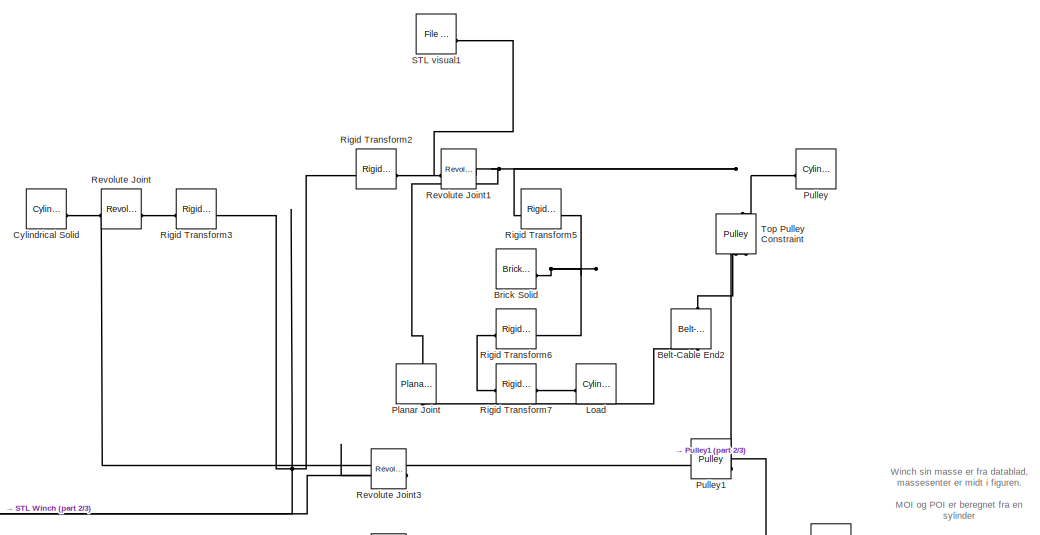
[diagram: winch - part 1/3, full width, top band]
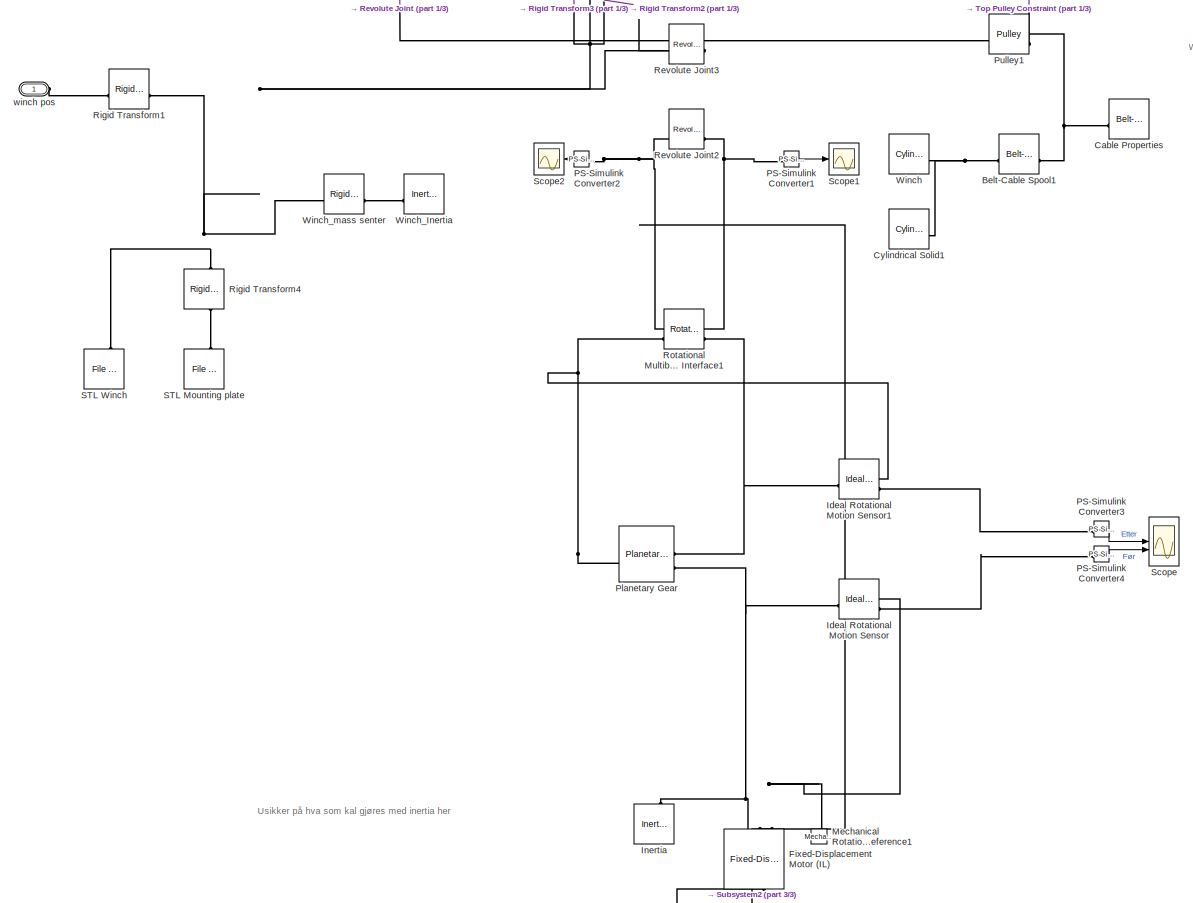
[diagram: winch - part 2/3, full width, middle band]
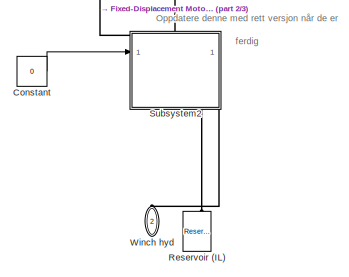
[diagram: winch - part 3/3, bottom center region]
BLOCK [SubSystem] winch
BLOCK [Reference] winch/Belt-Cable End2  REF=sm_lib/Belts and Cables/Belt-Cable End
  Commented = on
  NameLocation = right
  SourceBlock = sm_lib/Belts and Cables/Belt-Cable End
  SourceType = Belt-Cable End
BLOCK [Reference] winch/Belt-Cable Spool1  REF=sm_lib/Belts and Cables/Belt-Cable Spool
  Commented = on
  SourceBlock = sm_lib/Belts and Cables/Belt-Cable Spool
  SourceType = Belt-Cable Spool
BLOCK [Reference] winch/Brick Solid  REF=sm_lib/Body Elements/Brick Solid
  SourceBlock = sm_lib/Body Elements/Brick Solid
  SourceType = Brick Solid
BLOCK [Reference] winch/Cable Properties  REF=sm_lib/Belts and Cables/Belt-Cable
Properties
  Commented = on
  NameLocation = top
  SourceBlock = sm_lib/Belts and Cables/Belt-Cable\nProperties
  SourceType = Belt-Cable\nProperties
BLOCK [Constant] winch/Constant
  Value = 0
BLOCK [Reference] winch/Cylindrical Solid  REF=sm_lib/Body Elements/Cylindrical Solid
  NameLocation = top
  SourceBlock = sm_lib/Body Elements/Cylindrical Solid
  SourceType = Cylindrical Solid
BLOCK [Reference] winch/Cylindrical Solid1  REF=sm_lib/Body Elements/Cylindrical Solid
  SourceBlock = sm_lib/Body Elements/Cylindrical Solid
  SourceType = Cylindrical Solid
BLOCK [Reference] winch/Fixed-Displacement Motor (IL)  REF=SimscapeFluids_lib/Isothermal Liquid/Pumps & Motors/Fixed-Displacement
Motor (IL)
  Commented = on
  NameLocation = right
  SourceBlock = SimscapeFluids_lib/Isothermal Liquid/Pumps & Motors/Fixed-Displacement\nMotor (IL)
  SourceType = Fixed-Displacement\nMotor (IL)
BLOCK [Reference] winch/Ideal Rotational Motion Sensor  REF=fl_lib/Mechanical/Mechanical Sensors/Ideal Rotational
Motion Sensor
  Commented = on
  SourceBlock = fl_lib/Mechanical/Mechanical Sensors/Ideal Rotational\nMotion Sensor
  SourceType = Ideal Rotational\nMotion Sensor
BLOCK [Reference] winch/Ideal Rotational Motion Sensor1  REF=fl_lib/Mechanical/Mechanical Sensors/Ideal Rotational
Motion Sensor
  Commented = on
  SourceBlock = fl_lib/Mechanical/Mechanical Sensors/Ideal Rotational\nMotion Sensor
  SourceType = Ideal Rotational\nMotion Sensor
BLOCK [Reference] winch/Inertia  REF=fl_lib/Mechanical/Rotational Elements/Inertia
  Commented = on
  NameLocation = right
  SourceBlock = fl_lib/Mechanical/Rotational Elements/Inertia
  SourceType = Inertia
BLOCK [Reference] winch/Load  REF=sm_lib/Body Elements/Cylindrical Solid
  SourceBlock = sm_lib/Body Elements/Cylindrical Solid
  SourceType = Cylindrical Solid
BLOCK [Reference] winch/Mechanical Rotational Reference1  REF=fl_lib/Mechanical/Rotational Elements/Mechanical
Rotational Reference
  Commented = on
  NameLocation = right
  SourceBlock = fl_lib/Mechanical/Rotational Elements/Mechanical\nRotational Reference
  SourceType = Mechanical\nRotational Reference
BLOCK [Reference] winch/PS-Simulink Converter1  REF=nesl_utility/PS-Simulink
Converter
  Commented = on
  SourceBlock = nesl_utility/PS-Simulink\nConverter
  SourceType = PS-Simulink\nConverter
BLOCK [Reference] winch/PS-Simulink Converter2  REF=nesl_utility/PS-Simulink
Converter
  Commented = on
  NameLocation = top
  SourceBlock = nesl_utility/PS-Simulink\nConverter
  SourceType = PS-Simulink\nConverter
BLOCK [Reference] winch/PS-Simulink Converter3  REF=nesl_utility/PS-Simulink
Converter
  Commented = on
  SourceBlock = nesl_utility/PS-Simulink\nConverter
  SourceType = PS-Simulink\nConverter
BLOCK [Reference] winch/PS-Simulink Converter4  REF=nesl_utility/PS-Simulink
Converter
  Commented = on
  SourceBlock = nesl_utility/PS-Simulink\nConverter
  SourceType = PS-Simulink\nConverter
BLOCK [Reference] winch/Planar Joint  REF=sm_lib/Joints/Planar Joint
  Commented = on
  NameLocation = left
  SourceBlock = sm_lib/Joints/Planar Joint
  SourceType = Planar Joint
BLOCK [Reference] winch/Planetary Gear  REF=sdl_lib/Gears/Planetary Gear
  Commented = on
  SourceBlock = sdl_lib/Gears/Planetary Gear
  SourceType = Planetary Gear
BLOCK [Reference] winch/Pulley  REF=sm_lib/Body Elements/Cylindrical Solid
  SourceBlock = sm_lib/Body Elements/Cylindrical Solid
  SourceType = Cylindrical Solid
BLOCK [Reference] winch/Pulley1  REF=sm_lib/Belts and Cables/Pulley
  Commented = on
  SourceBlock = sm_lib/Belts and Cables/Pulley
  SourceType = Pulley
BLOCK [Reference] winch/Reservoir (IL)  REF=fl_lib/Isothermal Liquid/Elements/Reservoir (IL)
  NameLocation = right
  SourceBlock = fl_lib/Isothermal Liquid/Elements/Reservoir (IL)
  SourceType = Reservoir (IL)
BLOCK [Reference] winch/Revolute Joint  REF=sm_lib/Joints/Revolute Joint
  SourceBlock = sm_lib/Joints/Revolute Joint
  SourceType = Revolute Joint
BLOCK [Reference] winch/Revolute Joint1  REF=sm_lib/Joints/Revolute Joint
  SourceBlock = sm_lib/Joints/Revolute Joint
  SourceType = Revolute Joint
BLOCK [Reference] winch/Revolute Joint2  REF=sm_lib/Joints/Revolute Joint
  Commented = on
  SourceBlock = sm_lib/Joints/Revolute Joint
  SourceType = Revolute Joint
BLOCK [Reference] winch/Revolute Joint3  REF=sm_lib/Joints/Revolute Joint
  SourceBlock = sm_lib/Joints/Revolute Joint
  SourceType = Revolute Joint
BLOCK [Reference] winch/Rigid Transform1  REF=sm_lib/Frames and
Transforms/Rigid
Transform
  SourceBlock = sm_lib/Frames and\nTransforms/Rigid\nTransform
  SourceType = Rigid\nTransform
BLOCK [Reference] winch/Rigid Transform2  REF=sm_lib/Frames and
Transforms/Rigid
Transform
  SourceBlock = sm_lib/Frames and\nTransforms/Rigid\nTransform
  SourceType = Rigid\nTransform
BLOCK [Reference] winch/Rigid Transform3  REF=sm_lib/Frames and
Transforms/Rigid
Transform
  NameLocation = top
  SourceBlock = sm_lib/Frames and\nTransforms/Rigid\nTransform
  SourceType = Rigid\nTransform
BLOCK [Reference] winch/Rigid Transform4  REF=sm_lib/Frames and
Transforms/Rigid
Transform
  Commented = on
  NameLocation = right
  SourceBlock = sm_lib/Frames and\nTransforms/Rigid\nTransform
  SourceType = Rigid\nTransform
BLOCK [Reference] winch/Rigid Transform5  REF=sm_lib/Frames and
Transforms/Rigid
Transform
  SourceBlock = sm_lib/Frames and\nTransforms/Rigid\nTransform
  SourceType = Rigid\nTransform
BLOCK [Reference] winch/Rigid Transform6  REF=sm_lib/Frames and
Transforms/Rigid
Transform
  NameLocation = top
  SourceBlock = sm_lib/Frames and\nTransforms/Rigid\nTransform
  SourceType = Rigid\nTransform
BLOCK [Reference] winch/Rigid Transform7  REF=sm_lib/Frames and
Transforms/Rigid
Transform
  SourceBlock = sm_lib/Frames and\nTransforms/Rigid\nTransform
  SourceType = Rigid\nTransform
BLOCK [Reference] winch/Rotational Multibody Interface1  REF=fl_lib/Mechanical/Multibody Interfaces/Rotational Multibody
Interface
  Commented = on
  SourceBlock = fl_lib/Mechanical/Multibody Interfaces/Rotational Multibody\nInterface
  SourceType = Rotational Multibody\nInterface
BLOCK [Reference] winch/STL Mounting plate  REF=sm_lib/Body Elements/File Solid
  Commented = on
  NameLocation = right
  SourceBlock = sm_lib/Body Elements/File Solid
  SourceType = File Solid
BLOCK [Reference] winch/STL Winch  REF=sm_lib/Body Elements/File Solid
  Commented = on
  NameLocation = right
  SourceBlock = sm_lib/Body Elements/File Solid
  SourceType = File Solid
BLOCK [Reference] winch/STL visual1  REF=sm_lib/Body Elements/File Solid
  Commented = on
  SourceBlock = sm_lib/Body Elements/File Solid
  SourceType = File Solid
BLOCK [Scope] winch/Scope
  Commented = on
  Floating = off
  NumInputPorts = 2
  ScopeSpecificationString = Simulink.scopes.TimeScopeBlockCfg('CurrentConfiguration', extmgr.ConfigurationSet(extmgr.Configuration('Core','General UI',true),extmgr.Configuration('Core','Source UI',true),extmgr.Configuration('Sources','WiredSimulink',true,'DataLoggingVariableName','ScopeData1'),extmgr.Configuration('Visuals','Time Domain',true,'SerializedDisplays',{struct('MinYLimReal','-9.34392','MaxYLimReal','30.85356','YLa...<+1534ch>
BLOCK [Scope] winch/Scope1
  Commented = on
  Floating = off
  NumInputPorts = 1
  ScopeSpecificationString = Simulink.scopes.TimeScopeBlockCfg('CurrentConfiguration', extmgr.ConfigurationSet(extmgr.Configuration('Core','General UI',true),extmgr.Configuration('Core','Source UI',true),extmgr.Configuration('Sources','WiredSimulink',true,'DataLoggingVariableName','ScopeData1'),extmgr.Configuration('Visuals','Time Domain',true,'SerializedDisplays',{struct('MinYLimReal','-5.99589','MaxYLimReal','0.66621','YLab...<+1470ch>
BLOCK [Scope] winch/Scope2
  Commented = on
  Floating = off
  NameLocation = top
  NumInputPorts = 1
  ScopeSpecificationString = Simulink.scopes.TimeScopeBlockCfg('CurrentConfiguration', extmgr.ConfigurationSet(extmgr.Configuration('Core','General UI',true),extmgr.Configuration('Core','Source UI',true),extmgr.Configuration('Sources','WiredSimulink',true,'DataLoggingVariableName','ScopeData2'),extmgr.Configuration('Visuals','Time Domain',true,'SerializedDisplays',{struct('MinYLimReal','-1988.28707','MaxYLimReal','595.33751',...<+1523ch>
BLOCK [SubSystem] winch/Subsystem2
  Commented = on
BLOCK [Saturate] winch/Subsystem2/-1 - 0
  LowerLimit = -1
  UpperLimit = 0
BLOCK [Reference] winch/Subsystem2/4-Way 3-Position Directional Valve (IL)  REF=SimscapeFluids_lib/Isothermal Liquid/Valves & Orifices/Directional Control
Valves/4-Way 3-Position
Directional Valve
(IL)
  Commented = on
  SourceBlock = SimscapeFluids_lib/Isothermal Liquid/Valves & Orifices/Directional Control\nValves/4-Way 3-Position\nDirectional Valve\n(IL)
  SourceType = 4-Way 3-Position\nDirectional Valve\n(IL)
BLOCK [PMIOPort] winch/Subsystem2/A
  NameLocation = top
  Side = Left
BLOCK [Reference] winch/Subsystem2/A:T  REF=SimscapeFluids_lib/Isothermal Liquid/Valves & Orifices/Orifices/Orifice (IL)
  SourceBlock = SimscapeFluids_lib/Isothermal Liquid/Valves & Orifices/Orifices/Orifice (IL)
  SourceType = Orifice (IL)
BLOCK [PMIOPort] winch/Subsystem2/B
  NameLocation = top
  Port = 2
  Side = Left
BLOCK [Reference] winch/Subsystem2/B:T  REF=SimscapeFluids_lib/Isothermal Liquid/Valves & Orifices/Orifices/Orifice (IL)
  SourceBlock = SimscapeFluids_lib/Isothermal Liquid/Valves & Orifices/Orifices/Orifice (IL)
  SourceType = Orifice (IL)
BLOCK [Reference] winch/Subsystem2/Constant Volume Chamber (IL)  REF=fl_lib/Isothermal Liquid/Elements/Constant Volume
Chamber (IL)
  NameLocation = right
  SourceBlock = fl_lib/Isothermal Liquid/Elements/Constant Volume\nChamber (IL)
  SourceType = Constant Volume\nChamber (IL)
BLOCK [Reference] winch/Subsystem2/Constant Volume Chamber (IL)1  REF=fl_lib/Isothermal Liquid/Elements/Constant Volume
Chamber (IL)
  NameLocation = right
  SourceBlock = fl_lib/Isothermal Liquid/Elements/Constant Volume\nChamber (IL)
  SourceType = Constant Volume\nChamber (IL)
BLOCK [Inport] winch/Subsystem2/Ctrl
BLOCK [Reference] winch/Subsystem2/Flow Rate Sensor (IL)  REF=fl_lib/Isothermal Liquid/Sensors/Flow Rate Sensor
(IL)
  NameLocation = left
  SourceBlock = fl_lib/Isothermal Liquid/Sensors/Flow Rate Sensor\n(IL)
  SourceType = Flow Rate Sensor\n(IL)
BLOCK [Reference] winch/Subsystem2/Isothermal Liquid Properties (IL)  REF=fl_lib/Isothermal Liquid/Utilities/Isothermal Liquid
Properties (IL)
  Commented = on
  SourceBlock = fl_lib/Isothermal Liquid/Utilities/Isothermal Liquid\nProperties (IL)
  SourceType = Isothermal Liquid\nProperties (IL)
BLOCK [Reference] winch/Subsystem2/Local Restriction (IL)  REF=fl_lib/Isothermal Liquid/Elements/Local Restriction
(IL)
  Commented = on
  NameLocation = left
  SourceBlock = fl_lib/Isothermal Liquid/Elements/Local Restriction\n(IL)
  SourceType = Local Restriction\n(IL)
BLOCK [PMIOPort] winch/Subsystem2/P1
  Port = 3
  Side = Right
BLOCK [Reference] winch/Subsystem2/P:A  REF=SimscapeFluids_lib/Isothermal Liquid/Valves & Orifices/Orifices/Orifice (IL)
  SourceBlock = SimscapeFluids_lib/Isothermal Liquid/Valves & Orifices/Orifices/Orifice (IL)
  SourceType = Orifice (IL)
BLOCK [Reference] winch/Subsystem2/P:B  REF=SimscapeFluids_lib/Isothermal Liquid/Valves & Orifices/Orifices/Orifice (IL)
  SourceBlock = SimscapeFluids_lib/Isothermal Liquid/Valves & Orifices/Orifices/Orifice (IL)
  SourceType = Orifice (IL)
BLOCK [Reference] winch/Subsystem2/PS-Simulink Converter  REF=nesl_utility/PS-Simulink
Converter
  SourceBlock = nesl_utility/PS-Simulink\nConverter
  SourceType = PS-Simulink\nConverter
BLOCK [Reference] winch/Subsystem2/PS-Simulink Converter1  REF=nesl_utility/PS-Simulink
Converter
  Commented = on
  SourceBlock = nesl_utility/PS-Simulink\nConverter
  SourceType = PS-Simulink\nConverter
BLOCK [Reference] winch/Subsystem2/PS-Simulink Converter2  REF=nesl_utility/PS-Simulink
Converter
  Commented = on
  SourceBlock = nesl_utility/PS-Simulink\nConverter
  SourceType = PS-Simulink\nConverter
BLOCK [Reference] winch/Subsystem2/Pressure Sensor (IL)  REF=fl_lib/Isothermal Liquid/Sensors/Pressure Sensor (IL)
  Commented = on
  SourceBlock = fl_lib/Isothermal Liquid/Sensors/Pressure Sensor (IL)
  SourceType = Pressure Sensor (IL)
BLOCK [Reference] winch/Subsystem2/Pressure Sensor (IL)1  REF=fl_lib/Isothermal Liquid/Sensors/Pressure Sensor (IL)
  Commented = on
  SourceBlock = fl_lib/Isothermal Liquid/Sensors/Pressure Sensor (IL)
  SourceType = Pressure Sensor (IL)
BLOCK [Reference] winch/Subsystem2/Pressure Source (IL)  REF=fl_lib/Isothermal Liquid/Sources/Pressure Source (IL)
  Commented = on
  SourceBlock = fl_lib/Isothermal Liquid/Sources/Pressure Source (IL)
  SourceType = Pressure Source (IL)
BLOCK [Gain] winch/Subsystem2/Qsys
  Gain = 6e4
BLOCK [Reference] winch/Subsystem2/Reservoir (IL)  REF=fl_lib/Isothermal Liquid/Elements/Reservoir (IL)
  Commented = on
  NameLocation = right
  SourceBlock = fl_lib/Isothermal Liquid/Elements/Reservoir (IL)
  SourceType = Reservoir (IL)
BLOCK [Scope] winch/Subsystem2/Scope
  Floating = off
  NumInputPorts = 3
  ScopeSpecificationString = Simulink.scopes.TimeScopeBlockCfg('CurrentConfiguration', extmgr.ConfigurationSet(extmgr.Configuration('Core','General UI',true),extmgr.Configuration('Core','Source UI',true),extmgr.Configuration('Sources','WiredSimulink',true,'DataLoggingVariableName','ScopeData1'),extmgr.Configuration('Visuals','Time Domain',true,'SerializedDisplays',{struct('MinYLimReal','-0.2123','MaxYLimReal','0.26389','YLabe...<+1825ch>
BLOCK [Scope] winch/Subsystem2/Scope1
  Floating = off
  NumInputPorts = 1
BLOCK [Scope] winch/Subsystem2/Scope2
  Commented = on
  Floating = off
  NumInputPorts = 1
  ScopeSpecificationString = Simulink.scopes.TimeScopeBlockCfg('CurrentConfiguration', extmgr.ConfigurationSet(extmgr.Configuration('Core','General UI',true),extmgr.Configuration('Core','Source UI',true),extmgr.Configuration('Sources','WiredSimulink',true,'DataLoggingVariableName','ScopeData3'),extmgr.Configuration('Visuals','Time Domain',true,'SerializedDisplays',{struct('MinYLimReal','-10.42191','MaxYLimReal','93.79719','YL...<+1456ch>
BLOCK [Scope] winch/Subsystem2/Scope3
  Commented = on
  Floating = off
  NumInputPorts = 1
  ScopeSpecificationString = Simulink.scopes.TimeScopeBlockCfg('CurrentConfiguration', extmgr.ConfigurationSet(extmgr.Configuration('Core','General UI',true),extmgr.Configuration('Core','Source UI',true),extmgr.Configuration('Sources','WiredSimulink',true,'DataLoggingVariableName','ScopeData4'),extmgr.Configuration('Visuals','Time Domain',true),extmgr.Configuration('Tools','Plot Navigation',true),extmgr.Configuration('Tools',...<+40ch>
BLOCK [Reference] winch/Subsystem2/Simulink-PS Converter  REF=nesl_utility/Simulink-PS
Converter
  SourceBlock = nesl_utility/Simulink-PS\nConverter
  SourceType = Simulink-PS\nConverter
BLOCK [Reference] winch/Subsystem2/Simulink-PS Converter1  REF=nesl_utility/Simulink-PS
Converter
  SourceBlock = nesl_utility/Simulink-PS\nConverter
  SourceType = Simulink-PS\nConverter
BLOCK [Reference] winch/Subsystem2/Solver Configuration  REF=nesl_utility/Solver
Configuration
  Commented = on
  SourceBlock = nesl_utility/Solver\nConfiguration
  SourceType = Solver\nConfiguration
BLOCK [PMIOPort] winch/Subsystem2/T1
  Port = 4
  Side = Right
BLOCK [Gain] winch/Subsystem2/pA
  Commented = on
  Gain = 1e-5
BLOCK [Gain] winch/Subsystem2/pB
  Commented = on
  Gain = 1e-5
BLOCK [Saturate] winch/Subsystem2/uPA
  LowerLimit = 0
  UpperLimit = 1
BLOCK [Gain] winch/Subsystem2/uPB
  Gain = -1
BLOCK [Reference] winch/Top Pulley Constraint  REF=sm_lib/Belts and Cables/Pulley
  Commented = on
  NameLocation = left
  SourceBlock = sm_lib/Belts and Cables/Pulley
  SourceType = Pulley
BLOCK [Reference] winch/Winch  REF=sm_lib/Body Elements/Cylindrical Solid
  NameLocation = top
  SourceBlock = sm_lib/Body Elements/Cylindrical Solid
  SourceType = Cylindrical Solid
BLOCK [PMIOPort] winch/Winch hyd
  NameLocation = left
  Port = 2
  Side = Left
BLOCK [Reference] winch/Winch_Inertia  REF=sm_lib/Body Elements/Inertia
  NameLocation = top
  SourceBlock = sm_lib/Body Elements/Inertia
  SourceType = Inertia
BLOCK [Reference] winch/Winch_mass senter  REF=sm_lib/Frames and
Transforms/Rigid
Transform
  SourceBlock = sm_lib/Frames and\nTransforms/Rigid\nTransform
  SourceType = Rigid\nTransform
BLOCK [PMIOPort] winch/winch pos
  Side = Left
ANNOTATION (root): Joint B kan låses for å fjerne støy
ANNOTATION (root): Joint C kan låses for å fjerne støy
ANNOTATION (root): r_RJ
ANNOTATION Knuckle cylinder: Litt usiker på om det er riktig at rotere jointet +90 eller -90 grader
ANNOTATION Knuckle cylinder: stroke cad -> 0.85 lapp på kran -> 0.855
ANNOTATION Knuckle cylinder/Subsystem2: A
ANNOTATION Knuckle cylinder/Subsystem2: B
ANNOTATION Knuckle cylinder/Subsystem2: P
ANNOTATION Knuckle cylinder/Subsystem2: T
ANNOTATION Main cylinder: Litt usiker på om det er riktig at rotere jointet +90 eller -90 grader
ANNOTATION Main cylinder: stroke cad -> 0.75 lapp på kran -> 0.73
ANNOTATION Main cylinder/Subsystem2: A
ANNOTATION Main cylinder/Subsystem2: B
ANNOTATION Main cylinder/Subsystem2: Lagt inn arealer og spesielle åpnings signaler slik at A og B er koblet til tank i neutral stilling
ANNOTATION Main cylinder/Subsystem2: P
ANNOTATION Main cylinder/Subsystem2: T
ANNOTATION winch: Oppdatere denne med rett versjon når de er ferdig
ANNOTATION winch: Usikker på hva som kal gjøres med inertia her
ANNOTATION winch: Winch sin masse er fra datablad, massesenter er midt i figuren. MOI og POI er beregnet fra en sylinder Gear ratio 1:5,04
ANNOTATION winch/Subsystem2: A
ANNOTATION winch/Subsystem2: B
ANNOTATION winch/Subsystem2: P
ANNOTATION winch/Subsystem2: T
LINE Constant2:1 -> Main cylinder:1
LINE Constant:1 -> Knuckle cylinder:1
LINE Knuckle cylinder/In1:1 -> Knuckle cylinder/Subsystem2:1
LINE Knuckle cylinder/PS-Simulink Converter1:1 -> Knuckle cylinder/Vel_main:1
LINE Knuckle cylinder/PS-Simulink Converter2:1 -> Knuckle cylinder/Transfer Fcn:1
LINE Knuckle cylinder/PS-Simulink Converter:1 -> Knuckle cylinder/Scope:1
LINE Knuckle cylinder/Subsystem/PA_knuckle_cyl:1 -> Knuckle cylinder/Subsystem/Scope2:1
LINE Knuckle cylinder/Subsystem/PS-Simulink Converter2:1 -> Knuckle cylinder/Subsystem/PA_knuckle_cyl:1
LINE Knuckle cylinder/Subsystem1/PB_knuckle_cyl:1 -> Knuckle cylinder/Subsystem1/Scope2:1
LINE Knuckle cylinder/Subsystem1/PS-Simulink Converter2:1 -> Knuckle cylinder/Subsystem1/PB_knuckle_cyl:1
LINE Knuckle cylinder/Subsystem2/-1 - 0:1 -> Knuckle cylinder/Subsystem2/uPB:1
NET Knuckle cylinder/Subsystem2/Ctrl:1 -> Knuckle cylinder/Subsystem2/-1 - 0:1, Knuckle cylinder/Subsystem2/Scope:1, Knuckle cylinder/Subsystem2/uPA:1
LINE Knuckle cylinder/Subsystem2/PS-Simulink Converter1:1 -> Knuckle cylinder/Subsystem2/pA:1
LINE Knuckle cylinder/Subsystem2/PS-Simulink Converter2:1 -> Knuckle cylinder/Subsystem2/pB:1
LINE Knuckle cylinder/Subsystem2/PS-Simulink Converter:1 -> Knuckle cylinder/Subsystem2/Qsys:1
LINE Knuckle cylinder/Subsystem2/Qsys:1 -> Knuckle cylinder/Subsystem2/Scope1:1
LINE Knuckle cylinder/Subsystem2/pA:1 -> Knuckle cylinder/Subsystem2/Scope2:1
LINE Knuckle cylinder/Subsystem2/pB:1 -> Knuckle cylinder/Subsystem2/Scope3:1
NET Knuckle cylinder/Subsystem2/uPA:1 -> Knuckle cylinder/Subsystem2/Scope:2, Knuckle cylinder/Subsystem2/Simulink-PS Converter:1
NET Knuckle cylinder/Subsystem2/uPB:1 -> Knuckle cylinder/Subsystem2/Scope:3, Knuckle cylinder/Subsystem2/Simulink-PS Converter1:1
LINE Knuckle cylinder/Subsystem3/CBV_opening_A:1 -> Knuckle cylinder/Subsystem3/uCBV_real_A:1
LINE Knuckle cylinder/Subsystem3/CBV_opening_B:1 -> Knuckle cylinder/Subsystem3/uCBV_real_B:1
LINE Knuckle cylinder/Subsystem3/From1:1 -> Knuckle cylinder/Subsystem3/CBV_opening_B:1
LINE Knuckle cylinder/Subsystem3/From2:1 -> Knuckle cylinder/Subsystem3/CBV_opening_A:3
LINE Knuckle cylinder/Subsystem3/From3:1 -> Knuckle cylinder/Subsystem3/CBV_opening_B:3
LINE Knuckle cylinder/Subsystem3/From:1 -> Knuckle cylinder/Subsystem3/CBV_opening_A:1
LINE Knuckle cylinder/Subsystem3/V_A_K/Gain:1 -> Knuckle cylinder/Subsystem3/V_A_K/pAm:1
LINE Knuckle cylinder/Subsystem3/V_A_K/PS-Simulink Converter:1 -> Knuckle cylinder/Subsystem3/V_A_K/Gain:1
LINE Knuckle cylinder/Subsystem3/V_A_K:1 -> Knuckle cylinder/Subsystem3/CBV_opening_A:2
LINE Knuckle cylinder/Subsystem3/V_B_K/Gain:1 -> Knuckle cylinder/Subsystem3/V_B_K/pAm:1
LINE Knuckle cylinder/Subsystem3/V_B_K/PS-Simulink Converter:1 -> Knuckle cylinder/Subsystem3/V_B_K/Gain:1
LINE Knuckle cylinder/Subsystem3/V_B_K:1 -> Knuckle cylinder/Subsystem3/CBV_opening_B:2
LINE Knuckle cylinder/Subsystem3/uCBV_real_A:1 -> Knuckle cylinder/Subsystem3/Simulink-PS Converter:1
LINE Knuckle cylinder/Subsystem3/uCBV_real_B:1 -> Knuckle cylinder/Subsystem3/Simulink-PS Converter1:1
NET Knuckle cylinder/Subsystem4/PB_knuckle_dcv:1 -> Knuckle cylinder/Subsystem4/Goto:1, Knuckle cylinder/Subsystem4/Scope2:1
LINE Knuckle cylinder/Subsystem4/PS-Simulink Converter2:1 -> Knuckle cylinder/Subsystem4/PB_knuckle_dcv:1
NET Knuckle cylinder/Subsystem5/PA_knuckle_dcv:1 -> Knuckle cylinder/Subsystem5/Goto:1, Knuckle cylinder/Subsystem5/Scope2:1
LINE Knuckle cylinder/Subsystem5/PS-Simulink Converter2:1 -> Knuckle cylinder/Subsystem5/PA_knuckle_dcv:1
LINE Knuckle cylinder/Transfer Fcn:1 -> Knuckle cylinder/Force_knuckle:1
LINE Knuckle cylinder/knuckle_pos:1 -> Knuckle cylinder/Scope:2
LINE Main cylinder/In1:1 -> Main cylinder/Subsystem2:1
LINE Main cylinder/PS-Simulink Converter1:1 -> Main cylinder/Vel_main:1
LINE Main cylinder/PS-Simulink Converter2:1 -> Main cylinder/Transfer Fcn:1
LINE Main cylinder/Subsystem/PA_main_cyl:1 -> Main cylinder/Subsystem/Scope2:1
LINE Main cylinder/Subsystem/PS-Simulink Converter2:1 -> Main cylinder/Subsystem/PA_main_cyl:1
LINE Main cylinder/Subsystem1/PB_main_cyl:1 -> Main cylinder/Subsystem1/Scope2:1
LINE Main cylinder/Subsystem1/PS-Simulink Converter2:1 -> Main cylinder/Subsystem1/PB_main_cyl:1
LINE Main cylinder/Subsystem2/-1 - 0:1 -> Main cylinder/Subsystem2/Gain2:1
NET Main cylinder/Subsystem2/0 - 1:1 -> Main cylinder/Subsystem2/Scope:3, Main cylinder/Subsystem2/Simulink-PS Converter3:1
NET Main cylinder/Subsystem2/Ctrl:1 -> Main cylinder/Subsystem2/-1 - 0:1, Main cylinder/Subsystem2/0 - 1:1, Main cylinder/Subsystem2/Gain1:1, Main cylinder/Subsystem2/Scope:1, Main cylinder/Subsystem2/uBT:1
LINE Main cylinder/Subsystem2/Gain1:1 -> Main cylinder/Subsystem2/uAT:1
NET Main cylinder/Subsystem2/Gain2:1 -> Main cylinder/Subsystem2/Scope:5, Main cylinder/Subsystem2/Simulink-PS Converter2:1
LINE Main cylinder/Subsystem2/PS-Simulink Converter:1 -> Main cylinder/Subsystem2/Qsys:1
LINE Main cylinder/Subsystem2/Qsys:1 -> Main cylinder/Subsystem2/Scope1:1
NET Main cylinder/Subsystem2/uAT:1 -> Main cylinder/Subsystem2/Scope:2, Main cylinder/Subsystem2/Simulink-PS Converter:1
NET Main cylinder/Subsystem2/uBT:1 -> Main cylinder/Subsystem2/Scope:4, Main cylinder/Subsystem2/Simulink-PS Converter1:1
LINE Main cylinder/Subsystem3/CBV_opening_A:1 -> Main cylinder/Subsystem3/uCBV_real_main:1
LINE Main cylinder/Subsystem3/From2:1 -> Main cylinder/Subsystem3/CBV_opening_A:2
LINE Main cylinder/Subsystem3/From:1 -> Main cylinder/Subsystem3/CBV_opening_A:1
LINE Main cylinder/Subsystem3/V_A_M/Gain:1 -> Main cylinder/Subsystem3/V_A_M/pAm:1
LINE Main cylinder/Subsystem3/V_A_M/PS-Simulink Converter:1 -> Main cylinder/Subsystem3/V_A_M/Gain:1
LINE Main cylinder/Subsystem3/V_A_M:1 -> Main cylinder/Subsystem3/Scope:1
LINE Main cylinder/Subsystem3/uCBV_real_main:1 -> Main cylinder/Subsystem3/Simulink-PS Converter:1
NET Main cylinder/Subsystem4/PB_main_dcv:1 -> Main cylinder/Subsystem4/Goto:1, Main cylinder/Subsystem4/Scope2:1
LINE Main cylinder/Subsystem4/PS-Simulink Converter2:1 -> Main cylinder/Subsystem4/PB_main_dcv:1
NET Main cylinder/Subsystem5/PA_main_dcv:1 -> Main cylinder/Subsystem5/Goto:1, Main cylinder/Subsystem5/Scope2:1
LINE Main cylinder/Subsystem5/PS-Simulink Converter2:1 -> Main cylinder/Subsystem5/PA_main_dcv:1
LINE Main cylinder/Transfer Fcn:1 -> Main cylinder/Force_main:1
LINE Main cylinder/multibody_pos_main:1 -> Main cylinder/pos_main:1
LINE Main cylinder/piston_pos_main:1 -> Main cylinder/pos_main:2
LINE Pump/Constant1:1 -> Pump/Gain:1
LINE Pump/Gain:1 -> Pump/Simulink-PS Converter1:1
LINE b_angle:1 -> angle_b:1
LINE c_angle:1 -> angle_c:1
LINE winch/Constant:1 -> winch/Subsystem2:1
LINE winch/PS-Simulink Converter1:1 -> winch/Scope1:1
LINE winch/PS-Simulink Converter2:1 -> winch/Scope2:1
LINE winch/PS-Simulink Converter3:1 -> winch/Scope:1
LINE winch/PS-Simulink Converter4:1 -> winch/Scope:2
LINE winch/Subsystem2/-1 - 0:1 -> winch/Subsystem2/uPB:1
NET winch/Subsystem2/Ctrl:1 -> winch/Subsystem2/-1 - 0:1, winch/Subsystem2/Scope:1, winch/Subsystem2/uPA:1
LINE winch/Subsystem2/PS-Simulink Converter1:1 -> winch/Subsystem2/pA:1
LINE winch/Subsystem2/PS-Simulink Converter2:1 -> winch/Subsystem2/pB:1
LINE winch/Subsystem2/PS-Simulink Converter:1 -> winch/Subsystem2/Qsys:1
LINE winch/Subsystem2/Qsys:1 -> winch/Subsystem2/Scope1:1
LINE winch/Subsystem2/pA:1 -> winch/Subsystem2/Scope2:1
LINE winch/Subsystem2/pB:1 -> winch/Subsystem2/Scope3:1
NET winch/Subsystem2/uPA:1 -> winch/Subsystem2/Scope:2, winch/Subsystem2/Simulink-PS Converter:1
NET winch/Subsystem2/uPB:1 -> winch/Subsystem2/Scope:3, winch/Subsystem2/Simulink-PS Converter1:1
PLINE Column/Branch_B:RConn1 -- Column/Rigid Transform1:RConn1
PLINE Column/Branch_D:RConn1 -- Column/Rigid Transform3:RConn1
PLINE Column/Branch_J:RConn1 -- Column/Rigid Transform5:RConn1
PNET net1: Column/Column mass senter:LConn1 -- Column/STL visual:RConn1 -- Column/solidworks origin error:RConn1
PLINE Column/Column mass senter:RConn1 -- Column/Column_Inertia:RConn1
PLINE Column/Column_Main:RConn1 -- Column/Rigid Transform:RConn1
PNET net2: Column/Joint A:RConn1 -- Column/Rigid Transform1:LConn1 -- Column/Rigid Transform2:LConn1 -- Column/Rigid Transform3:LConn1 -- Column/Rigid Transform4:LConn1 -- Column/Rigid Transform5:LConn1 -- Column/Rigid Transform6:LConn1 -- Column/Rigid Transform:LConn1 -- Column/solidworks origin error:LConn1
PNET net3: Column/Joint B:RConn1 -- Column/Joint_B:RConn1 -- Column/Rigid Transform2:RConn1
PNET net4: Column/Joint D:RConn1 -- Column/Joint_D:RConn1 -- Column/Rigid Transform4:RConn1
PNET net5: Column/Joint J:RConn1 -- Column/Joint_J:RConn1 -- Column/Rigid Transform6:RConn1
PLINE Column:LConn1 -- RJA:RConn1
PLINE Column:LConn2 -- RJB:LConn1
PLINE Column:RConn1 -- RJD:LConn1
PLINE Column:RConn2 -- RJJ:LConn1
PNET net6: DogBone D2E/D2E mass senter:LConn1 -- DogBone D2E/Joint D:RConn1 -- DogBone D2E/Rigid Transform10:LConn1 -- DogBone D2E/Rigid Transform12:LConn1 -- DogBone D2E/Rigid Transform14:LConn1 -- DogBone D2E/STL visual:RConn1
PLINE DogBone D2E/D2E mass senter:RConn1 -- DogBone D2E/D2E_Inertia:RConn1
PLINE DogBone D2E/DogBoneDE_a:RConn1 -- DogBone D2E/Rigid Transform10:RConn1
PLINE DogBone D2E/DogBoneDE_b:RConn1 -- DogBone D2E/Rigid Transform14:RConn1
PNET net7: DogBone D2E/Joint E:RConn1 -- DogBone D2E/Joint_E:RConn1 -- DogBone D2E/Rigid Transform12:RConn1
PLINE DogBone D2E:LConn1 -- RJD:RConn1
PNET net8: DogBone D2E:RConn1 -- RJE1:LConn1 -- RJE:LConn1
PLINE DogBone E2F/DogBoneEF_a:RConn1 -- DogBone E2F/Rigid Transform15:RConn1
PLINE DogBone E2F/DogBoneEF_b:RConn1 -- DogBone E2F/Rigid Transform11:RConn1
PNET net9: DogBone E2F/E2F mass senter:LConn1 -- DogBone E2F/Joint E:RConn1 -- DogBone E2F/Rigid Transform11:LConn1 -- DogBone E2F/Rigid Transform13:LConn1 -- DogBone E2F/Rigid Transform15:LConn1 -- DogBone E2F/STL visual:RConn1
PLINE DogBone E2F/E2F mass senter:RConn1 -- DogBone E2F/E2F_Inertia:RConn1
PLINE DogBone E2F/Joint F:RConn1 -- DogBone E2F/Rigid Transform13:RConn1
PLINE DogBone E2F:LConn1 -- RJE:RConn1
PLINE DogBone E2F:RConn1 -- RJF:RConn1
PLINE DogBone G2H/DogBoneGH_a:RConn1 -- DogBone G2H/Rigid Transform21:RConn1
PLINE DogBone G2H/DogBoneGH_b:RConn1 -- DogBone G2H/Rigid Transform23:RConn1
PNET net10: DogBone G2H/G2H mass senter:LConn1 -- DogBone G2H/Joint G:RConn1 -- DogBone G2H/Rigid Transform21:LConn1 -- DogBone G2H/Rigid Transform22:LConn1 -- DogBone G2H/Rigid Transform23:LConn1 -- DogBone G2H/STL visual:RConn1
PLINE DogBone G2H/G2H mass senter:RConn1 -- DogBone G2H/G2H_Inertia:RConn1
PNET net11: DogBone G2H/Joint H:RConn1 -- DogBone G2H/Joint_H:RConn1 -- DogBone G2H/Rigid Transform22:RConn1
PLINE DogBone G2H:LConn1 -- RJG:RConn1
PNET net12: DogBone G2H:RConn1 -- RJH1:LConn1 -- RJH:LConn1
PLINE DogBone H2I/DogBoneHI_a:RConn1 -- DogBone H2I/Rigid Transform26:RConn1
PLINE DogBone H2I/DogBoneHI_b:RConn1 -- DogBone H2I/Rigid Transform24:RConn1
PNET net13: DogBone H2I/H2I mass senter:LConn1 -- DogBone H2I/Joint H:RConn1 -- DogBone H2I/Rigid Transform24:LConn1 -- DogBone H2I/Rigid Transform25:LConn1 -- DogBone H2I/Rigid Transform26:LConn1 -- DogBone H2I/STL visual:RConn1
PLINE DogBone H2I/H2I mass senter:RConn1 -- DogBone H2I/H2I_Inertia:RConn1
PLINE DogBone H2I/Joint I:RConn1 -- DogBone H2I/Rigid Transform25:RConn1
PLINE DogBone H2I:LConn1 -- RJH:RConn1
PLINE DogBone H2I:RConn1 -- RJI:RConn1
PNET net14: Isothermal Liquid Properties (IL):RConn1 -- Knuckle cylinder:LConn2 -- Main cylinder:RConn2 -- Pump:RConn1 -- winch:LConn2
PLINE Knuckle boom/Branch_I:RConn1 -- Knuckle boom/Rigid Transform27:RConn1
PNET net15: Knuckle boom/Joint C:RConn1 -- Knuckle boom/KnuckleBoom mass senter:LConn1 -- Knuckle boom/Rigid Transform20:LConn1 -- Knuckle boom/Rigid Transform27:LConn1 -- Knuckle boom/Rigid Transform28:LConn1 -- Knuckle boom/STL visual:RConn1 -- Knuckle boom/winch:RConn1
PNET net16: Knuckle boom/Joint I:RConn1 -- Knuckle boom/Joint_I:RConn1 -- Knuckle boom/Rigid Transform28:RConn1
PLINE Knuckle boom/KBoom_Main:RConn1 -- Knuckle boom/Rigid Transform20:RConn1
PLINE Knuckle boom/KnuckleBoom mass senter:RConn1 -- Knuckle boom/KnuckleBoom_Inertia:RConn1
PLINE Knuckle boom:LConn1 -- RJC:RConn1
PLINE Knuckle boom:RConn1 -- winch:LConn1
PLINE Knuckle boom:RConn2 -- RJI:LConn1
PNET net17: Knuckle cylinder/Bottom joint:RConn1 -- Knuckle cylinder/Joint K:RConn1 -- Knuckle cylinder/Rigid Transform2:LConn1
PNET net18: Knuckle cylinder/Bottom_kc mass senter:LConn1 -- Knuckle cylinder/Rigid Transform1:LConn1 -- Knuckle cylinder/Rigid Transform2:RConn1 -- Knuckle cylinder/Rigid Transform:LConn1 -- Knuckle cylinder/STL visual:RConn1
PLINE Knuckle cylinder/Bottom_kc mass senter:RConn1 -- Knuckle cylinder/Bottom_kc_Inertia:RConn1
PNET net19: Knuckle cylinder/Constant Volume Chamber (IL)1:LConn1 -- Knuckle cylinder/Double-Acting Actuator (IL):RConn3 -- Knuckle cylinder/Subsystem1:RConn1 -- Knuckle cylinder/Subsystem3:LConn2
PNET net20: Knuckle cylinder/Constant Volume Chamber (IL):LConn1 -- Knuckle cylinder/Double-Acting Actuator (IL):LConn2 -- Knuckle cylinder/Subsystem3:LConn1 -- Knuckle cylinder/Subsystem:RConn1
PLINE Knuckle cylinder/Cylinder barrel:RConn1 -- Knuckle cylinder/Rigid Transform4:RConn1
PLINE Knuckle cylinder/Cylinder bottom:RConn1 -- Knuckle cylinder/Rigid Transform1:RConn1
PLINE Knuckle cylinder/Cylinder rod:RConn1 -- Knuckle cylinder/Rigid Transform3:RConn1
PNET net21: Knuckle cylinder/Double-Acting Actuator (IL):LConn1 -- Knuckle cylinder/Mechanical Translational Reference:LConn1 -- Knuckle cylinder/Translational Damper:RConn1 -- Knuckle cylinder/Translational Multibody Interface:LConn2
PLINE Knuckle cylinder/Double-Acting Actuator (IL):RConn1 -- Knuckle cylinder/knuckle_pos:LConn1
PNET net22: Knuckle cylinder/Double-Acting Actuator (IL):RConn2 -- Knuckle cylinder/Translational Damper:LConn1 -- Knuckle cylinder/Translational Multibody Interface:RConn2
PNET net23: Knuckle cylinder/Joint H:RConn1 -- Knuckle cylinder/Rigid Transform6:RConn1 -- Knuckle cylinder/Top joint:RConn1
PLINE Knuckle cylinder/P1:RConn1 -- Knuckle cylinder/Subsystem2:RConn1
PNET net24: Knuckle cylinder/PS-Simulink Converter1:LConn1 -- Knuckle cylinder/Prismatic Joint:RConn3 -- Knuckle cylinder/Translational Multibody Interface:RConn1
PNET net25: Knuckle cylinder/PS-Simulink Converter2:LConn1 -- Knuckle cylinder/Prismatic Joint:LConn2 -- Knuckle cylinder/Translational Multibody Interface:LConn1
PLINE Knuckle cylinder/PS-Simulink Converter:LConn1 -- Knuckle cylinder/Prismatic Joint:RConn2
PNET net26: Knuckle cylinder/Prismatic Joint:LConn1 -- Knuckle cylinder/Rigid Transform4:LConn1 -- Knuckle cylinder/Rigid Transform:RConn1
PNET net27: Knuckle cylinder/Prismatic Joint:RConn1 -- Knuckle cylinder/Rigid Transform3:LConn1 -- Knuckle cylinder/Rigid Transform5:LConn1
PLINE Knuckle cylinder/Reservoir (IL)1:LConn1 -- Knuckle cylinder/Subsystem2:RConn2
PNET net28: Knuckle cylinder/Rigid Transform5:RConn1 -- Knuckle cylinder/Rigid Transform6:LConn1 -- Knuckle cylinder/Rigid Transform7:LConn1 -- Knuckle cylinder/Rod_kc mass senter1:LConn1 -- Knuckle cylinder/STL visual1:RConn1
PLINE Knuckle cylinder/Rigid Transform7:RConn1 -- Knuckle cylinder/Top joint2:RConn1
PLINE Knuckle cylinder/Rod_kc mass senter1:RConn1 -- Knuckle cylinder/Rod_kc_Inertia1:RConn1
PLINE Knuckle cylinder/Subsystem/Conn1:RConn1 -- Knuckle cylinder/Subsystem/Pressure Sensor (IL):LConn1
PLINE Knuckle cylinder/Subsystem/PS-Simulink Converter2:LConn1 -- Knuckle cylinder/Subsystem/Pressure Sensor (IL):RConn1
PLINE Knuckle cylinder/Subsystem1/Conn1:RConn1 -- Knuckle cylinder/Subsystem1/Pressure Sensor (IL):LConn1
PLINE Knuckle cylinder/Subsystem1/PS-Simulink Converter2:LConn1 -- Knuckle cylinder/Subsystem1/Pressure Sensor (IL):RConn1
PNET net29: Knuckle cylinder/Subsystem2/A:RConn1 -- Knuckle cylinder/Subsystem2/A:T:RConn1 -- Knuckle cylinder/Subsystem2/Constant Volume Chamber (IL)1:LConn1 -- Knuckle cylinder/Subsystem2/Local Restriction (IL):LConn1 -- Knuckle cylinder/Subsystem2/P:A:RConn1 -- Knuckle cylinder/Subsystem2/Pressure Sensor (IL):LConn1
PNET net30: Knuckle cylinder/Subsystem2/A:T:LConn1 -- Knuckle cylinder/Subsystem2/B:T:LConn1 -- Knuckle cylinder/Subsystem2/Husing_nr3:LConn1
PNET net31: Knuckle cylinder/Subsystem2/A:T:LConn2 -- Knuckle cylinder/Subsystem2/P:B:LConn2 -- Knuckle cylinder/Subsystem2/Simulink-PS Converter1:RConn1
PNET net32: Knuckle cylinder/Subsystem2/B:RConn1 -- Knuckle cylinder/Subsystem2/Flow Rate Sensor (IL):LConn1 -- Knuckle cylinder/Subsystem2/Local Restriction (IL):RConn1
PNET net33: Knuckle cylinder/Subsystem2/B:T:LConn2 -- Knuckle cylinder/Subsystem2/P:A:LConn2 -- Knuckle cylinder/Subsystem2/Simulink-PS Converter:RConn1
PNET net34: Knuckle cylinder/Subsystem2/B:T:RConn1 -- Knuckle cylinder/Subsystem2/Constant Volume Chamber (IL):LConn1 -- Knuckle cylinder/Subsystem2/Flow Rate Sensor (IL):RConn1 -- Knuckle cylinder/Subsystem2/P:B:RConn1 -- Knuckle cylinder/Subsystem2/Pressure Sensor (IL)1:LConn1
PLINE Knuckle cylinder/Subsystem2/Flow Rate Sensor (IL):RConn2 -- Knuckle cylinder/Subsystem2/PS-Simulink Converter:LConn1
PLINE Knuckle cylinder/Subsystem2/Husing_nr3:RConn1 -- Knuckle cylinder/Subsystem2/T1:RConn1
PNET net35: Knuckle cylinder/Subsystem2/Isothermal Liquid Properties (IL):RConn1 -- Knuckle cylinder/Subsystem2/Pressure Source (IL):LConn1 -- Knuckle cylinder/Subsystem2/Reservoir (IL):LConn1 -- Knuckle cylinder/Subsystem2/Solver Configuration:RConn1
PNET net36: Knuckle cylinder/Subsystem2/P1:RConn1 -- Knuckle cylinder/Subsystem2/P:A:LConn1 -- Knuckle cylinder/Subsystem2/P:B:LConn1
PLINE Knuckle cylinder/Subsystem2/PS-Simulink Converter1:LConn1 -- Knuckle cylinder/Subsystem2/Pressure Sensor (IL):RConn1
PLINE Knuckle cylinder/Subsystem2/PS-Simulink Converter2:LConn1 -- Knuckle cylinder/Subsystem2/Pressure Sensor (IL)1:RConn1
PNET net37: Knuckle cylinder/Subsystem2:LConn1 -- Knuckle cylinder/Subsystem3:RConn1 -- Knuckle cylinder/Subsystem5:RConn1
PNET net38: Knuckle cylinder/Subsystem2:LConn2 -- Knuckle cylinder/Subsystem3:RConn2 -- Knuckle cylinder/Subsystem4:RConn1
PNET net39: Knuckle cylinder/Subsystem3/A1:RConn1 -- Knuckle cylinder/Subsystem3/Check Valve (IL):LConn1 -- Knuckle cylinder/Subsystem3/Orifice (IL)1:RConn1
PNET net40: Knuckle cylinder/Subsystem3/A2:RConn1 -- Knuckle cylinder/Subsystem3/Check Valve (IL):RConn1 -- Knuckle cylinder/Subsystem3/Constant Volume Chamber (IL):LConn1 -- Knuckle cylinder/Subsystem3/Orifice (IL)1:LConn1 -- Knuckle cylinder/Subsystem3/V_A_K:RConn1
PNET net41: Knuckle cylinder/Subsystem3/B1:RConn1 -- Knuckle cylinder/Subsystem3/Check Valve (IL)1:LConn1 -- Knuckle cylinder/Subsystem3/Orifice (IL)2:RConn1
PNET net42: Knuckle cylinder/Subsystem3/B2:RConn1 -- Knuckle cylinder/Subsystem3/Check Valve (IL)1:RConn1 -- Knuckle cylinder/Subsystem3/Constant Volume Chamber (IL)1:LConn1 -- Knuckle cylinder/Subsystem3/Orifice (IL)2:LConn1 -- Knuckle cylinder/Subsystem3/V_B_K:RConn1
PLINE Knuckle cylinder/Subsystem3/Orifice (IL)1:LConn2 -- Knuckle cylinder/Subsystem3/Simulink-PS Converter:RConn1
PLINE Knuckle cylinder/Subsystem3/Orifice (IL)2:LConn2 -- Knuckle cylinder/Subsystem3/Simulink-PS Converter1:RConn1
PNET net43: Knuckle cylinder/Subsystem3/V_A_K/Connection Port:RConn1 -- Knuckle cylinder/Subsystem3/V_A_K/Constant Volume Chamber (IL):LConn1 -- Knuckle cylinder/Subsystem3/V_A_K/Pressure Sensor (IL):LConn1
PLINE Knuckle cylinder/Subsystem3/V_A_K/PS-Simulink Converter:LConn1 -- Knuckle cylinder/Subsystem3/V_A_K/Pressure Sensor (IL):RConn1
PNET net44: Knuckle cylinder/Subsystem3/V_B_K/Connection Port:RConn1 -- Knuckle cylinder/Subsystem3/V_B_K/Constant Volume Chamber (IL):LConn1 -- Knuckle cylinder/Subsystem3/V_B_K/Pressure Sensor (IL):LConn1
PLINE Knuckle cylinder/Subsystem3/V_B_K/PS-Simulink Converter:LConn1 -- Knuckle cylinder/Subsystem3/V_B_K/Pressure Sensor (IL):RConn1
PNET net45: Knuckle cylinder/Subsystem4/Conn1:RConn1 -- Knuckle cylinder/Subsystem4/Constant Volume Chamber (IL):LConn1 -- Knuckle cylinder/Subsystem4/Pressure Sensor (IL):LConn1
PLINE Knuckle cylinder/Subsystem4/PS-Simulink Converter2:LConn1 -- Knuckle cylinder/Subsystem4/Pressure Sensor (IL):RConn1
PNET net46: Knuckle cylinder/Subsystem5/Conn1:RConn1 -- Knuckle cylinder/Subsystem5/Constant Volume Chamber (IL):LConn1 -- Knuckle cylinder/Subsystem5/Pressure Sensor (IL):LConn1
PLINE Knuckle cylinder/Subsystem5/PS-Simulink Converter2:LConn1 -- Knuckle cylinder/Subsystem5/Pressure Sensor (IL):RConn1
PLINE Knuckle cylinder:LConn1 -- RJK:RConn1
PLINE Knuckle cylinder:RConn1 -- RJH1:RConn1
PLINE Main Boom/Branch_C:RConn1 -- Main Boom/Rigid Transform16:RConn1
PLINE Main Boom/Branch_F:RConn1 -- Main Boom/Rigid Transform8:RConn1
PLINE Main Boom/Branch_G:RConn1 -- Main Boom/Rigid Transform18:RConn1
PLINE Main Boom/Branch_K:RConn1 -- Main Boom/Rigid Transform29:RConn1
PNET net47: Main Boom/Joint B:RConn1 -- Main Boom/MainBoom mass senter:LConn1 -- Main Boom/Rigid Transform16:LConn1 -- Main Boom/Rigid Transform17:LConn1 -- Main Boom/Rigid Transform18:LConn1 -- Main Boom/Rigid Transform19:LConn1 -- Main Boom/Rigid Transform29:LConn1 -- Main Boom/Rigid Transform30:LConn1 -- Main Boom/Rigid Transform7:LConn1 -- Main Boom/Rigid Transform8:LConn1 -- Main Boom/Rigid Transform9:LConn1 -- Main Boom/STL visual:RConn1
PNET net48: Main Boom/Joint C:RConn1 -- Main Boom/Joint_C:RConn1 -- Main Boom/Rigid Transform17:RConn1
PNET net49: Main Boom/Joint F:RConn1 -- Main Boom/Joint_F:RConn1 -- Main Boom/Rigid Transform9:RConn1
PNET net50: Main Boom/Joint G:RConn1 -- Main Boom/Joint_G:RConn1 -- Main Boom/Rigid Transform19:RConn1
PNET net51: Main Boom/Joint K:RConn1 -- Main Boom/Joint_K:RConn1 -- Main Boom/Rigid Transform30:RConn1
PLINE Main Boom/MBoom_Main:RConn1 -- Main Boom/Rigid Transform7:RConn1
PLINE Main Boom/MainBoom mass senter:RConn1 -- Main Boom/MainBoom_Inertia:RConn1
PLINE Main Boom:LConn1 -- RJB:RConn1
PLINE Main Boom:RConn1 -- RJC:LConn1
PLINE Main Boom:RConn2 -- RJG:LConn1
PLINE Main Boom:RConn3 -- RJF:LConn1
PLINE Main Boom:RConn4 -- RJK:LConn1
PNET net52: Main cylinder/Bottom joint:RConn1 -- Main cylinder/Joint J:RConn1 -- Main cylinder/Rigid Transform2:LConn1
PNET net53: Main cylinder/Bottom_mc mass senter:LConn1 -- Main cylinder/Rigid Transform1:LConn1 -- Main cylinder/Rigid Transform2:RConn1 -- Main cylinder/Rigid Transform:LConn1 -- Main cylinder/STL visual:RConn1
PLINE Main cylinder/Bottom_mc mass senter:RConn1 -- Main cylinder/Bottom_mc_Inertia:RConn1
PLINE Main cylinder/Connection Port:RConn1 -- Main cylinder/Subsystem2:RConn1
PNET net54: Main cylinder/Constant Volume Chamber (IL)1:LConn1 -- Main cylinder/Double-Acting Actuator (IL):RConn3 -- Main cylinder/Subsystem1:RConn1 -- Main cylinder/Subsystem3:LConn2
PNET net55: Main cylinder/Constant Volume Chamber (IL):LConn1 -- Main cylinder/Double-Acting Actuator (IL):LConn2 -- Main cylinder/Subsystem3:LConn1 -- Main cylinder/Subsystem:RConn1
PLINE Main cylinder/Cylinder barrel:RConn1 -- Main cylinder/Rigid Transform4:RConn1
PLINE Main cylinder/Cylinder bottom:RConn1 -- Main cylinder/Rigid Transform1:RConn1
PLINE Main cylinder/Cylinder rod:RConn1 -- Main cylinder/Rigid Transform3:RConn1
PNET net56: Main cylinder/Double-Acting Actuator (IL):LConn1 -- Main cylinder/Mechanical Translational Reference:LConn1 -- Main cylinder/Translational Damper:RConn1 -- Main cylinder/Translational Multibody Interface:LConn2
PLINE Main cylinder/Double-Acting Actuator (IL):RConn1 -- Main cylinder/piston_pos_main:LConn1
PNET net57: Main cylinder/Double-Acting Actuator (IL):RConn2 -- Main cylinder/Translational Damper:LConn1 -- Main cylinder/Translational Multibody Interface:RConn2
PNET net58: Main cylinder/Joint E:RConn1 -- Main cylinder/Rigid Transform6:RConn1 -- Main cylinder/Top joint:RConn1
PNET net59: Main cylinder/PS-Simulink Converter1:LConn1 -- Main cylinder/Prismatic Joint:RConn3 -- Main cylinder/Translational Multibody Interface:RConn1
PNET net60: Main cylinder/PS-Simulink Converter2:LConn1 -- Main cylinder/Prismatic Joint:LConn2 -- Main cylinder/Translational Multibody Interface:LConn1
PNET net61: Main cylinder/Prismatic Joint:LConn1 -- Main cylinder/Rigid Transform4:LConn1 -- Main cylinder/Rigid Transform:RConn1
PNET net62: Main cylinder/Prismatic Joint:RConn1 -- Main cylinder/Rigid Transform3:LConn1 -- Main cylinder/Rigid Transform5:LConn1
PLINE Main cylinder/Prismatic Joint:RConn2 -- Main cylinder/multibody_pos_main:LConn1
PLINE Main cylinder/Reservoir (IL)1:LConn1 -- Main cylinder/Subsystem2:RConn2
PNET net63: Main cylinder/Rigid Transform5:RConn1 -- Main cylinder/Rigid Transform6:LConn1 -- Main cylinder/Rigid Transform7:LConn1 -- Main cylinder/Rod_mc mass senter:LConn1 -- Main cylinder/STL visual1:RConn1
PLINE Main cylinder/Rigid Transform7:RConn1 -- Main cylinder/Top joint2:RConn1
PLINE Main cylinder/Rod_mc mass senter:RConn1 -- Main cylinder/Rod_mc_Inertia:RConn1
PLINE Main cylinder/Subsystem/Conn1:RConn1 -- Main cylinder/Subsystem/Pressure Sensor (IL):LConn1
PLINE Main cylinder/Subsystem/PS-Simulink Converter2:LConn1 -- Main cylinder/Subsystem/Pressure Sensor (IL):RConn1
PLINE Main cylinder/Subsystem1/Conn1:RConn1 -- Main cylinder/Subsystem1/Pressure Sensor (IL):LConn1
PLINE Main cylinder/Subsystem1/PS-Simulink Converter2:LConn1 -- Main cylinder/Subsystem1/Pressure Sensor (IL):RConn1
PNET net64: Main cylinder/Subsystem2/A:RConn1 -- Main cylinder/Subsystem2/A:T:RConn1 -- Main cylinder/Subsystem2/Constant Volume Chamber (IL)1:LConn1 -- Main cylinder/Subsystem2/P:A:RConn1
PNET net65: Main cylinder/Subsystem2/A:T:LConn1 -- Main cylinder/Subsystem2/B:T:LConn1 -- Main cylinder/Subsystem2/Constant Volume Chamber (IL)2:LConn1 -- Main cylinder/Subsystem2/Husing_nr3:LConn1
PLINE Main cylinder/Subsystem2/A:T:LConn2 -- Main cylinder/Subsystem2/Simulink-PS Converter:RConn1
PLINE Main cylinder/Subsystem2/B:RConn1 -- Main cylinder/Subsystem2/Flow Rate Sensor (IL):LConn1
PLINE Main cylinder/Subsystem2/B:T:LConn2 -- Main cylinder/Subsystem2/Simulink-PS Converter1:RConn1
PNET net66: Main cylinder/Subsystem2/B:T:RConn1 -- Main cylinder/Subsystem2/Constant Volume Chamber (IL):LConn1 -- Main cylinder/Subsystem2/Flow Rate Sensor (IL):RConn1 -- Main cylinder/Subsystem2/P:B:RConn1
PLINE Main cylinder/Subsystem2/Flow Rate Sensor (IL):RConn2 -- Main cylinder/Subsystem2/PS-Simulink Converter:LConn1
PLINE Main cylinder/Subsystem2/Husing_nr3:RConn1 -- Main cylinder/Subsystem2/T1:RConn1
PNET net67: Main cylinder/Subsystem2/P1:RConn1 -- Main cylinder/Subsystem2/P:A:LConn1 -- Main cylinder/Subsystem2/P:B:LConn1
PLINE Main cylinder/Subsystem2/P:A:LConn2 -- Main cylinder/Subsystem2/Simulink-PS Converter3:RConn1
PLINE Main cylinder/Subsystem2/P:B:LConn2 -- Main cylinder/Subsystem2/Simulink-PS Converter2:RConn1
PNET net68: Main cylinder/Subsystem2:LConn1 -- Main cylinder/Subsystem3:RConn1 -- Main cylinder/Subsystem5:RConn1
PNET net69: Main cylinder/Subsystem2:LConn2 -- Main cylinder/Subsystem3:RConn2 -- Main cylinder/Subsystem4:RConn1
PNET net70: Main cylinder/Subsystem3/A1:RConn1 -- Main cylinder/Subsystem3/Check Valve (IL):LConn1 -- Main cylinder/Subsystem3/Orifice (IL)1:RConn1
PNET net71: Main cylinder/Subsystem3/A2:RConn1 -- Main cylinder/Subsystem3/Check Valve (IL):RConn1 -- Main cylinder/Subsystem3/Constant Volume Chamber (IL):LConn1 -- Main cylinder/Subsystem3/Orifice (IL)1:LConn1 -- Main cylinder/Subsystem3/V_A_M:RConn1
PLINE Main cylinder/Subsystem3/B1:RConn1 -- Main cylinder/Subsystem3/B2:RConn1
PLINE Main cylinder/Subsystem3/Orifice (IL)1:LConn2 -- Main cylinder/Subsystem3/Simulink-PS Converter:RConn1
PNET net72: Main cylinder/Subsystem3/V_A_M/Connection Port:RConn1 -- Main cylinder/Subsystem3/V_A_M/Constant Volume Chamber (IL):LConn1 -- Main cylinder/Subsystem3/V_A_M/Pressure Sensor (IL):LConn1
PLINE Main cylinder/Subsystem3/V_A_M/PS-Simulink Converter:LConn1 -- Main cylinder/Subsystem3/V_A_M/Pressure Sensor (IL):RConn1
PNET net73: Main cylinder/Subsystem4/Conn1:RConn1 -- Main cylinder/Subsystem4/Constant Volume Chamber (IL):LConn1 -- Main cylinder/Subsystem4/Pressure Sensor (IL):LConn1
PLINE Main cylinder/Subsystem4/PS-Simulink Converter2:LConn1 -- Main cylinder/Subsystem4/Pressure Sensor (IL):RConn1
PNET net74: Main cylinder/Subsystem5/Conn1:RConn1 -- Main cylinder/Subsystem5/Constant Volume Chamber (IL):LConn1 -- Main cylinder/Subsystem5/Pressure Sensor (IL):LConn1
PLINE Main cylinder/Subsystem5/PS-Simulink Converter2:LConn1 -- Main cylinder/Subsystem5/Pressure Sensor (IL):RConn1
PLINE Main cylinder:LConn1 -- RJJ:RConn1
PLINE Main cylinder:RConn1 -- RJE1:RConn1
PNET net75: Mechanism Configuration:RConn1 -- RJA:LConn1 -- Solver Configuration:RConn1 -- Subsystem:LConn1 -- World Frame:RConn1
PLINE Pump/Conn1:RConn1 -- Pump/Pressure Source (IL):RConn1
PLINE Pump/Pressure Source (IL):LConn1 -- Pump/Reservoir (IL):LConn1
PLINE Pump/Pressure Source (IL):LConn2 -- Pump/Simulink-PS Converter1:RConn1
PLINE RJB:RConn2 -- b_angle:LConn1
PLINE RJC:RConn2 -- c_angle:LConn1
PLINE Subsystem/Conn1:RConn1 -- Subsystem/Rigid Transform:LConn1
PLINE Subsystem/Ground:RConn1 -- Subsystem/Rigid Transform1:RConn1
PNET net76: Subsystem/Mounting:RConn1 -- Subsystem/Rigid Transform1:LConn1 -- Subsystem/Rigid Transform:RConn1
PLINE winch/Belt-Cable End2:LConn1 -- winch/Planar Joint:RConn1
PLINE winch/Belt-Cable End2:RConn1 -- winch/Top Pulley Constraint:RConn1
PNET net77: winch/Belt-Cable Spool1:LConn1 -- winch/Cylindrical Solid1:RConn1 -- winch/Revolute Joint3:RConn1 -- winch/Winch:RConn1
PNET net78: winch/Belt-Cable Spool1:RConn1 -- winch/Cable Properties:LConn1 -- winch/Pulley1:RConn1
PNET net79: winch/Brick Solid:RConn1 -- winch/Rigid Transform5:RConn1 -- winch/Rigid Transform6:LConn1
PNET net80: winch/Cylindrical Solid:RConn1 -- winch/Pulley1:LConn1 -- winch/Revolute Joint:LConn1
PLINE winch/Fixed-Displacement Motor (IL):LConn1 -- winch/Subsystem2:LConn1
PNET net81: winch/Fixed-Displacement Motor (IL):RConn1 -- winch/Ideal Rotational Motion Sensor:LConn1 -- winch/Inertia:LConn1 -- winch/Planetary Gear:RConn2
PNET net82: winch/Fixed-Displacement Motor (IL):RConn2 -- winch/Ideal Rotational Motion Sensor1:RConn1 -- winch/Ideal Rotational Motion Sensor:RConn1 -- winch/Mechanical Rotational Reference1:LConn1 -- winch/Planetary Gear:LConn1 -- winch/Rotational Multibody Interface1:LConn2
PLINE winch/Fixed-Displacement Motor (IL):RConn3 -- winch/Subsystem2:LConn2
PNET net83: winch/Ideal Rotational Motion Sensor1:LConn1 -- winch/Planetary Gear:RConn1 -- winch/Rotational Multibody Interface1:RConn2
PLINE winch/Ideal Rotational Motion Sensor1:RConn2 -- winch/PS-Simulink Converter3:LConn1
PLINE winch/Ideal Rotational Motion Sensor:RConn2 -- winch/PS-Simulink Converter4:LConn1
PLINE winch/Load:RConn1 -- winch/Rigid Transform7:RConn1
PNET net84: winch/PS-Simulink Converter1:LConn1 -- winch/Revolute Joint2:RConn2 -- winch/Rotational Multibody Interface1:RConn1
PNET net85: winch/PS-Simulink Converter2:LConn1 -- winch/Revolute Joint2:LConn2 -- winch/Rotational Multibody Interface1:LConn1
PNET net86: winch/Planar Joint:LConn1 -- winch/Pulley:RConn1 -- winch/Revolute Joint1:RConn1 -- winch/Rigid Transform5:LConn1 -- winch/Top Pulley Constraint:LConn1
PLINE winch/Pulley1:RConn2 -- winch/Top Pulley Constraint:RConn2
PLINE winch/Reservoir (IL):LConn1 -- winch/Subsystem2:RConn2
PNET net87: winch/Revolute Joint1:LConn1 -- winch/Rigid Transform2:RConn1 -- winch/STL visual1:RConn1
PNET net88: winch/Revolute Joint3:LConn1 -- winch/Rigid Transform1:RConn1 -- winch/Rigid Transform2:LConn1 -- winch/Rigid Transform3:LConn1 -- winch/Rigid Transform4:RConn1 -- winch/STL Winch:RConn1 -- winch/Winch_mass senter:LConn1
PLINE winch/Revolute Joint:RConn1 -- winch/Rigid Transform3:RConn1
PLINE winch/Rigid Transform1:LConn1 -- winch/winch pos:RConn1
PLINE winch/Rigid Transform4:LConn1 -- winch/STL Mounting plate:RConn1
PLINE winch/Rigid Transform6:RConn1 -- winch/Rigid Transform7:LConn1
PNET net89: winch/Subsystem2/A:RConn1 -- winch/Subsystem2/A:T:RConn1 -- winch/Subsystem2/Constant Volume Chamber (IL)1:LConn1 -- winch/Subsystem2/Local Restriction (IL):LConn1 -- winch/Subsystem2/P:A:RConn1 -- winch/Subsystem2/Pressure Sensor (IL):LConn1
PNET net90: winch/Subsystem2/A:T:LConn1 -- winch/Subsystem2/B:T:LConn1 -- winch/Subsystem2/T1:RConn1
PNET net91: winch/Subsystem2/A:T:LConn2 -- winch/Subsystem2/P:B:LConn2 -- winch/Subsystem2/Simulink-PS Converter1:RConn1
PNET net92: winch/Subsystem2/B:RConn1 -- winch/Subsystem2/Flow Rate Sensor (IL):LConn1 -- winch/Subsystem2/Local Restriction (IL):RConn1
PNET net93: winch/Subsystem2/B:T:LConn2 -- winch/Subsystem2/P:A:LConn2 -- winch/Subsystem2/Simulink-PS Converter:RConn1
PNET net94: winch/Subsystem2/B:T:RConn1 -- winch/Subsystem2/Constant Volume Chamber (IL):LConn1 -- winch/Subsystem2/Flow Rate Sensor (IL):RConn1 -- winch/Subsystem2/P:B:RConn1 -- winch/Subsystem2/Pressure Sensor (IL)1:LConn1
PLINE winch/Subsystem2/Flow Rate Sensor (IL):RConn2 -- winch/Subsystem2/PS-Simulink Converter:LConn1
PNET net95: winch/Subsystem2/Isothermal Liquid Properties (IL):RConn1 -- winch/Subsystem2/Pressure Source (IL):LConn1 -- winch/Subsystem2/Reservoir (IL):LConn1 -- winch/Subsystem2/Solver Configuration:RConn1
PNET net96: winch/Subsystem2/P1:RConn1 -- winch/Subsystem2/P:A:LConn1 -- winch/Subsystem2/P:B:LConn1
PLINE winch/Subsystem2/PS-Simulink Converter1:LConn1 -- winch/Subsystem2/Pressure Sensor (IL):RConn1
PLINE winch/Subsystem2/PS-Simulink Converter2:LConn1 -- winch/Subsystem2/Pressure Sensor (IL)1:RConn1
PLINE winch/Subsystem2:RConn1 -- winch/Winch hyd:RConn1
PLINE winch/Winch_Inertia:RConn1 -- winch/Winch_mass senter:RConn1
note: NET lines group one-source signal fan-out (src -> all destinations, sorted); 1:1 wires keep LINE; PNET lines group multi-terminal physical nets as a canonical sorted terminal list (undirected conserving connections); 2-terminal nets keep the pairwise PLINE form
CHART Knuckle cylinder/Subsystem3/CBV_opening_B states=1 transitions=1
  STATE_LABEL 'eML_blk_kernel()'
  STATE_LABEL 'SCRIPT:\nfunction uCBV = fcn(pB,pBm,pA,pCr_kb, dpopen_kb, alpha)\n\nuCBV = (alpha*pA + pBm - pCr_kb - (alpha + 1)*pB)/dpopen_kb;\n%uCBV = (alpha*pB + pAm - pCr)/dpopen; %vented\n%uCBV = 0.25;\nif uCBV < 0\n    uCBV = 0;\nelseif uCBV > 1\n    uCBV = 1;\nend\n\n'
CHART Knuckle cylinder/Subsystem3/CBV_opening_A states=1 transitions=1
  STATE_LABEL 'eML_blk_kernel()'
  STATE_LABEL 'SCRIPT:\nfunction uCBV = fcn(pB,pAm,pA,pCr_ka, dpopen_ka, alpha)\n\nuCBV = (alpha*pB + pAm - pCr_ka - (alpha + 1)*pA)/dpopen_ka;\n%uCBV = (alpha*pB + pAm - pCr)/dpopen; %vented\n%uCBV = 0.25;\nif uCBV < 0\n    uCBV = 0;\nelseif uCBV > 1\n    uCBV = 1;\nend\n\n'
CHART Main cylinder/Subsystem3/CBV_opening_A states=1 transitions=1
  STATE_LABEL 'eML_blk_kernel()'
  STATE_LABEL 'SCRIPT:\nfunction uCBV = fcn(pB,pA,pCr_main, dpopen_main)\n% uCBV = (alpha*pB + pAm - pCr - (alpha + 1)*pA)/dpopen;\nuCBV = (pB - pCr_main- pA)/dpopen_main; %vented\n%uCBV = 0.25;\nif uCBV < 0\n    uCBV = 0;\nelseif uCBV > 1\n    uCBV = 1;\nend\n\n'
CHART Main cylinder/Subsystem2/uAT states=1 transitions=1
  STATE_LABEL 'eML_blk_kernel()'
  STATE_LABEL 'SCRIPT:\nfunction u = fcn(U,dead_up_m, dead_down_m)\nif U < -dead_up_m\n    u=0;\nelseif U <= 0\n    u = dead_down_m-abs(U);\nelseif U <= dead_down_m\n    u = dead_down_m;\nelseif U >dead_down_m\n    u= (U-dead_down_m)/(1-dead_down_m)+dead_down_m;\nelse\n    u = 0;\nend'
CHART Main cylinder/Subsystem2/uBT states=1 transitions=1
  STATE_LABEL 'eML_blk_kernel()'
  STATE_LABEL 'SCRIPT:\nfunction u = fcn(U,dead_up_m, dead_down_m)\nif U < -dead_down_m\n    u=0;\nelseif U <= 0\n    u = dead_up_m-abs(U);\nelseif U <= dead_up_m\n    u = dead_up_m;\nelseif U >dead_up_m\n    u= (U-dead_up_m)/(1-dead_up_m)+dead_up_m;\nelse\n    u = 0;\nend'
CHART  states=0 transitions=0
CHART  states=0 transitions=0
CHART  states=0 transitions=0
CHART  states=0 transitions=0
CHART  states=0 transitions=0
